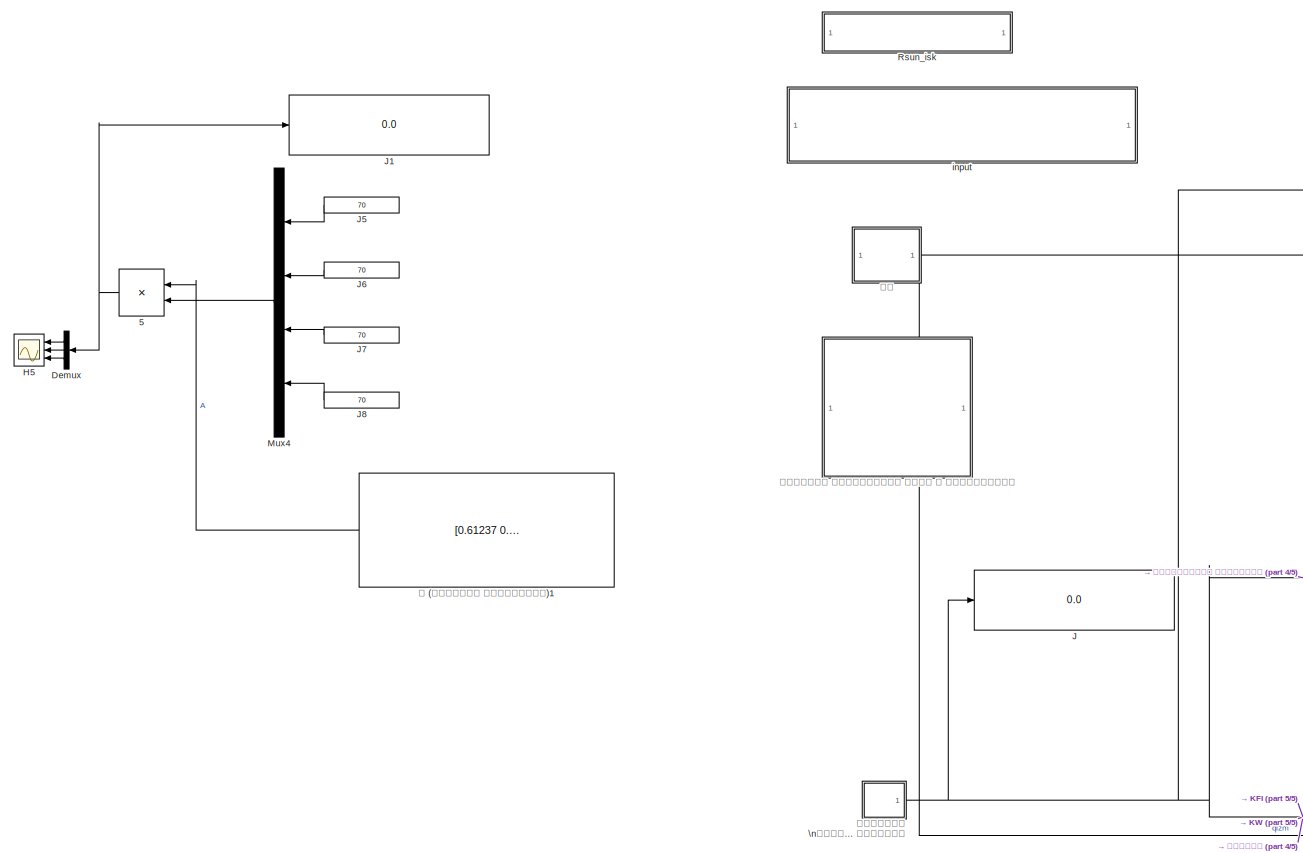
[diagram: root canvas - part 1/5, top left region]
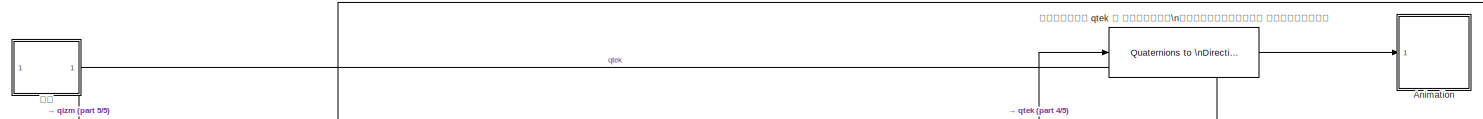
[diagram: root canvas - part 2/5, top center region]
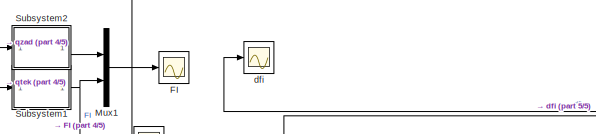
[diagram: root canvas - part 3/5, top right region]
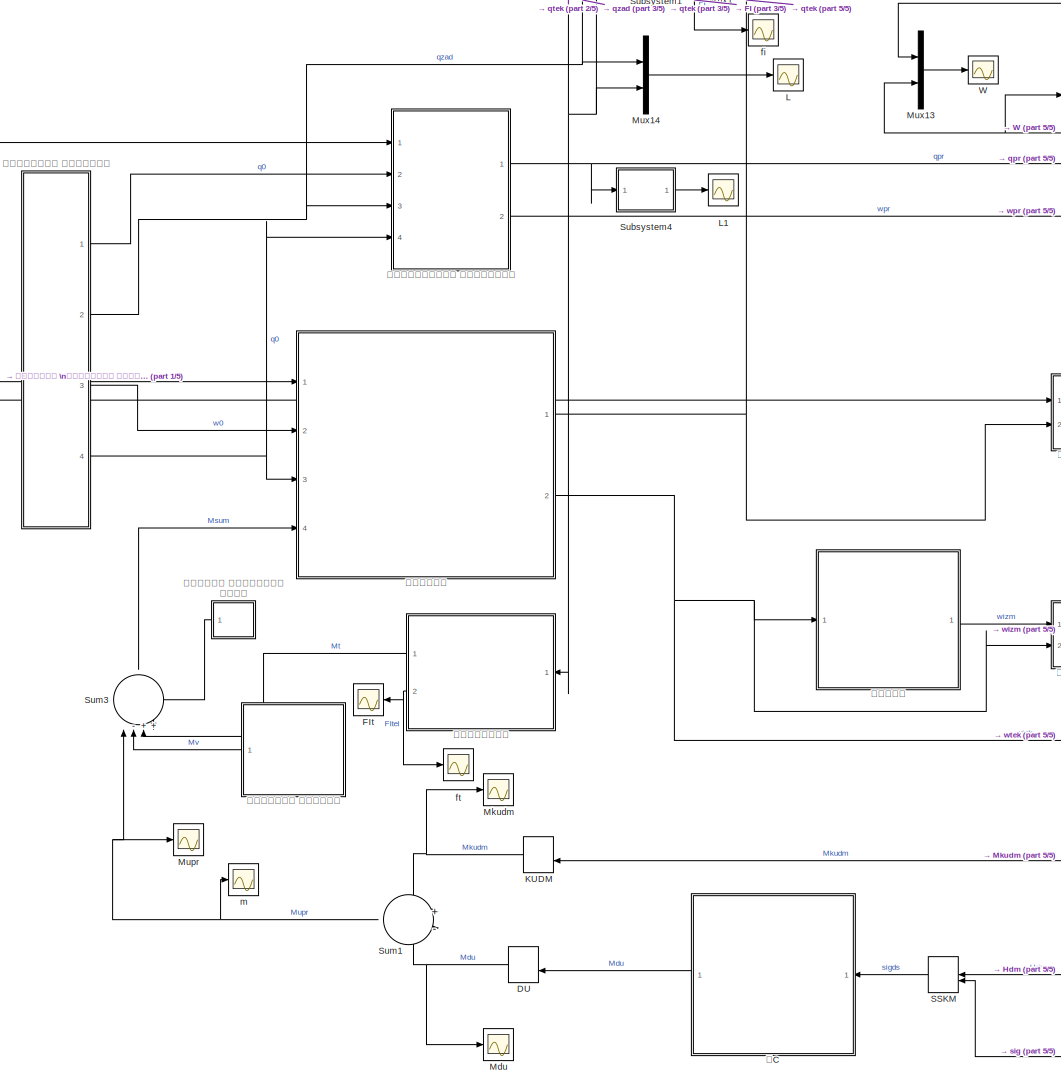
[diagram: root canvas - part 4/5, central region]
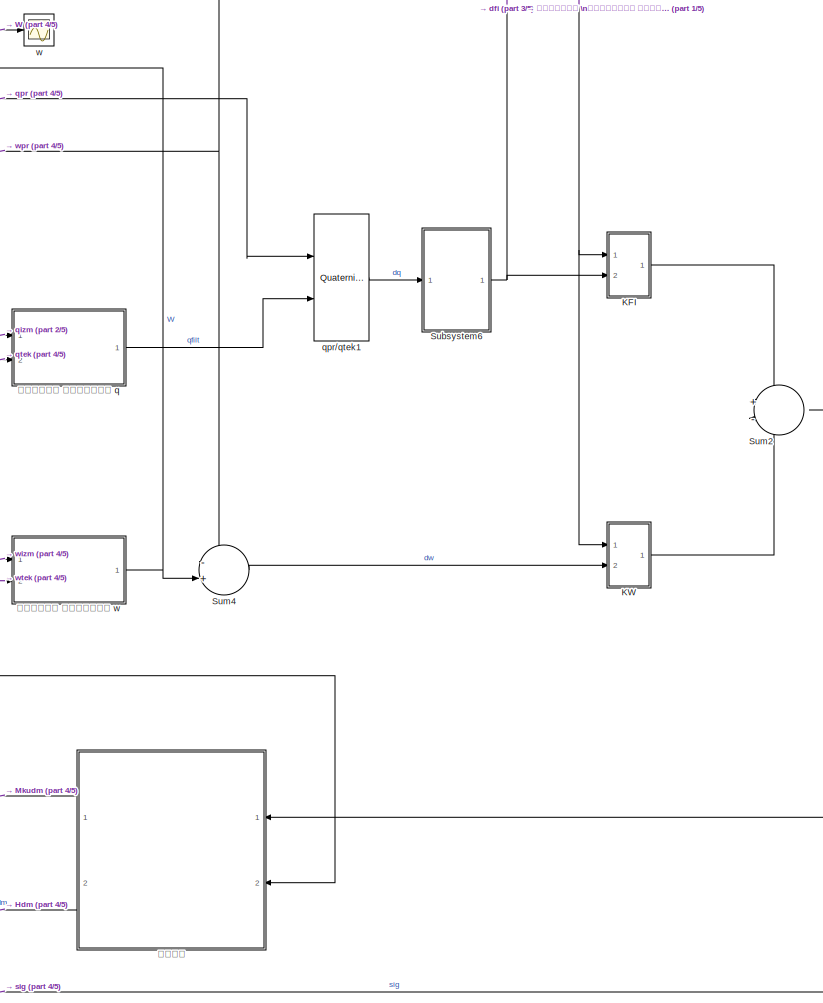
[diagram: root canvas - part 5/5, middle right region]
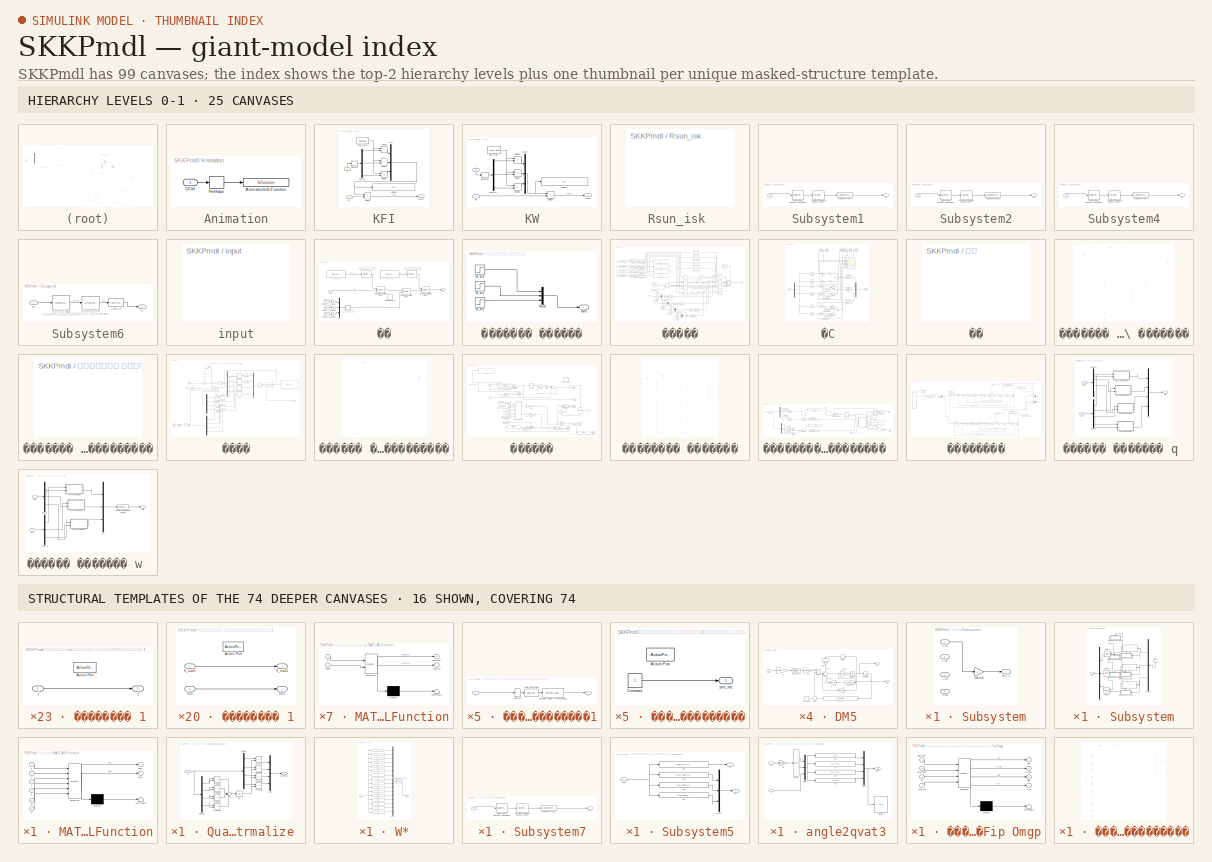
[diagram: thumbnail index - top-2 hierarchy levels (25 canvases) + 16 structural-template representatives of the remaining 74 canvases]
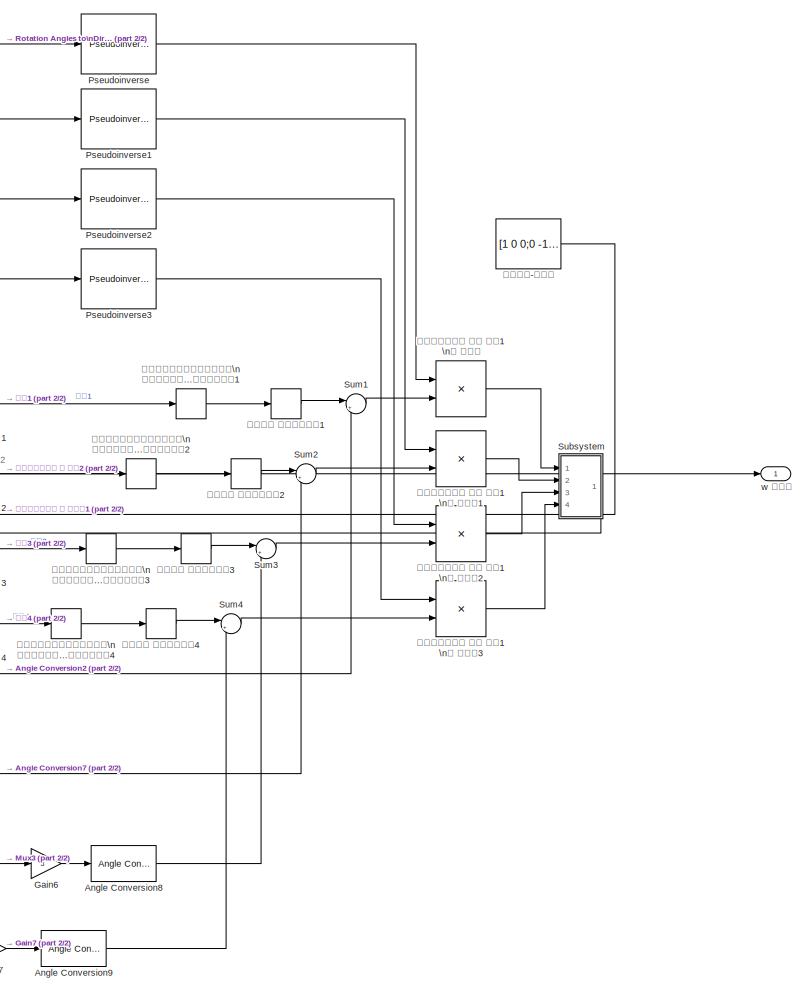
[diagram: ����� - part 1/2, right side, full height]
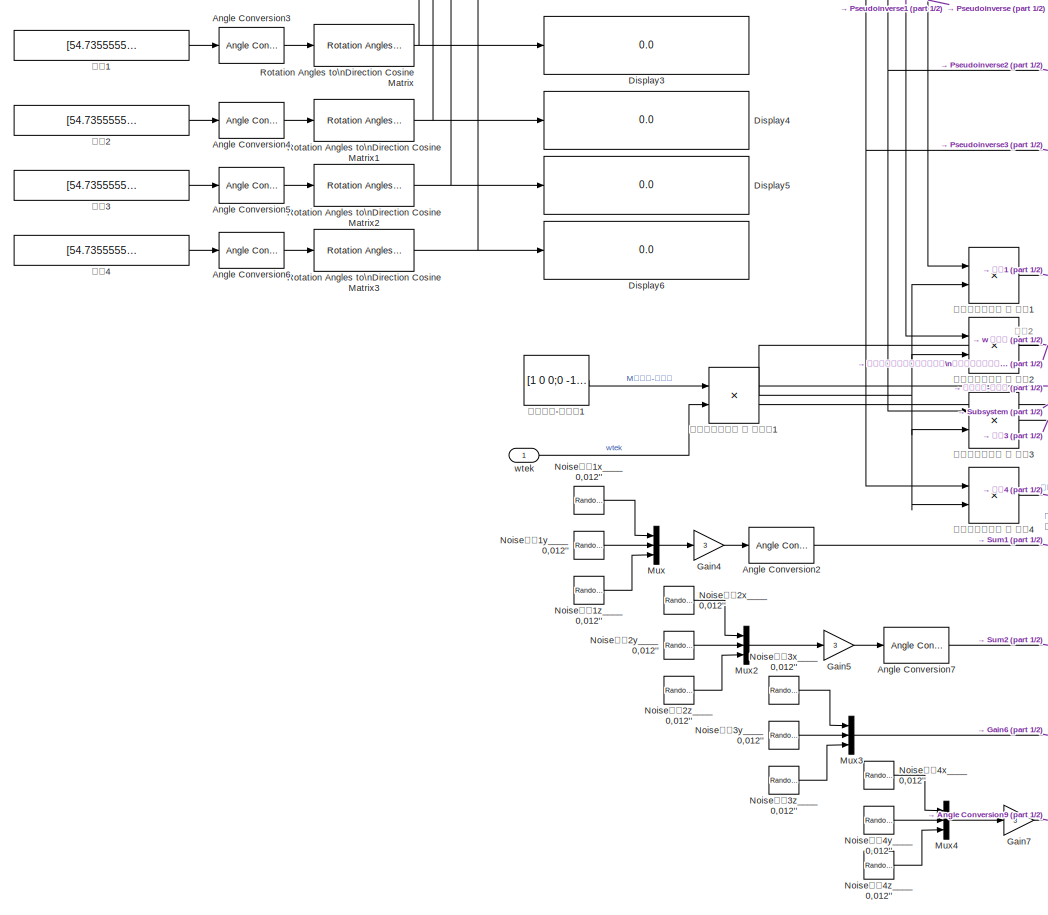
[diagram: ����� - part 2/2, left side, full height]
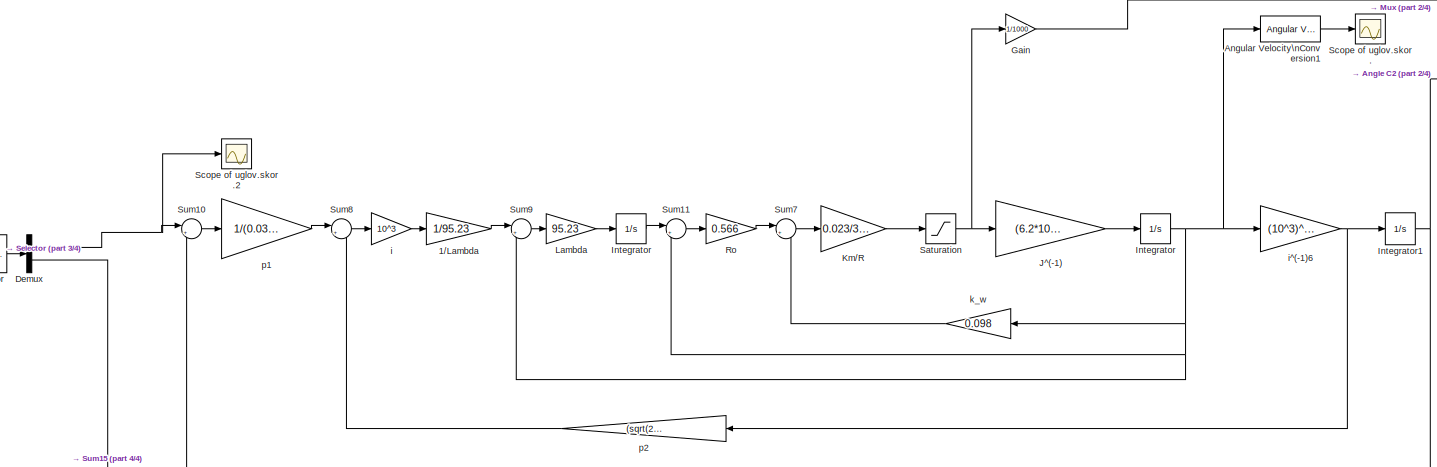
[diagram: �������� - part 1/4, top center region]
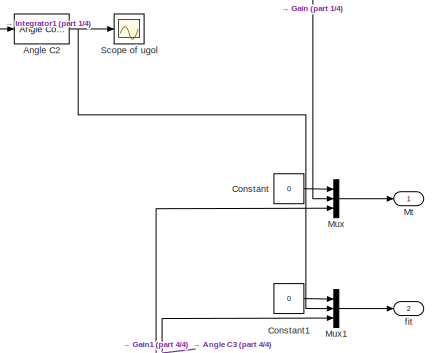
[diagram: �������� - part 2/4, top right region]
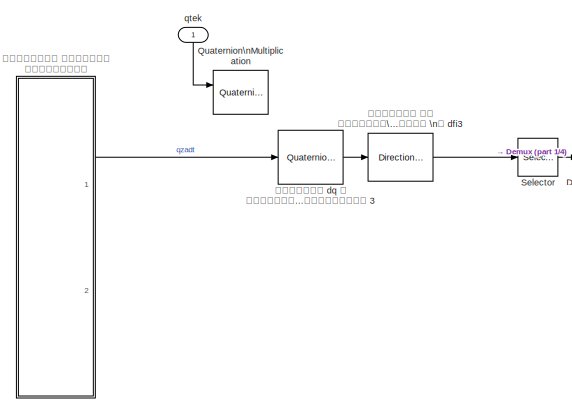
[diagram: �������� - part 3/4, top left region]
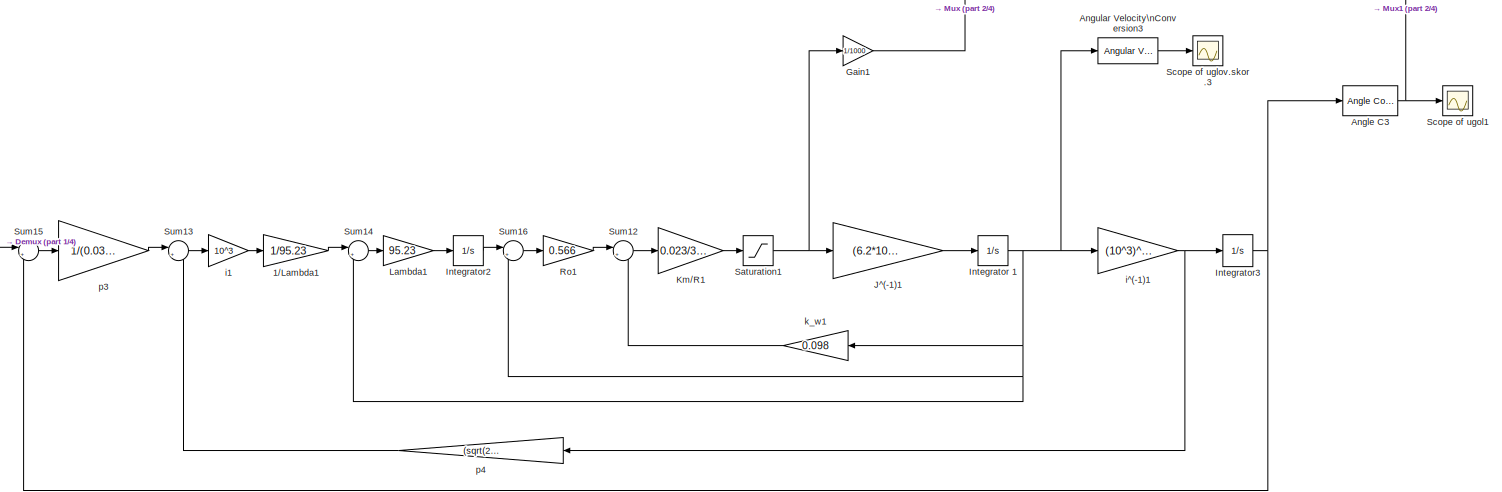
[diagram: �������� - part 4/4, bottom center region]
MODEL SKKPmdl
KIND model
BLOCK [Product]  5
  Commented = on
  InputSameDT = off
  Multiplication = Matrix(*)
  OutDataTypeStr = Inherit: Inherit via internal rule
  Ports = [2, 1]
  RndMeth = Floor
  SID = 8700
  SaturateOnIntegerOverflow = off
BLOCK [SubSystem] Animation
  AncestorBlock = aerolibanim/6DoF Animation
  Ports = [1]
  RequestExecContextInheritance = off
  SID = 6397
BLOCK [S-Function] Animation/Animation\nS-Function
  EnableBusSupport = off
  FunctionName = saeroanim
  Parameters = Config
  Ports = [1, 1]
  SID = 6397:2
BLOCK [Inport] Animation/DCM
  IconDisplay = Port number
  SID = 6397:1
BLOCK [Reshape] Animation/Reshape
  Ports = [1, 1]
  SID = 6397:3
BLOCK [ManualSwitch] DU
  SID = 6395
BLOCK [Demux] Demux
  Commented = on
  DisplayOption = bar
  Outputs = 3
  Ports = [1, 3]
  SID = 8701
BLOCK [Scope] FI
  Floating = off
  LimitDataPoints = off
  NumInputPorts = 1
  Ports = [1]
  SID = 6385
  SampleInput = on
  SaveName = FI
  SaveToWorkspace = on
  ShowLegends = off
  TickLabels = on
  YMax = 30
BLOCK [Scope] FIt
  Floating = off
  LimitDataPoints = off
  NumInputPorts = 1
  Ports = [1]
  SID = 8067
  SaveName = FIt
  SaveToWorkspace = on
  ShowLegends = off
  YMax = 100
  YMin = -20
BLOCK [Scope] H5
  Commented = on
  Floating = off
  LimitDataPoints = off
  NumInputPorts = 3
  Ports = [3]
  SID = 8702
  SampleTime = 0
  SaveName = H4dm3
  ShowLegends = off
  TimeRange = 250
  YMax = 600~5~5
  YMin = -100~-5~-5
BLOCK [Display] J
  Decimation = 1
  Ports = [1]
  SID = 8336
BLOCK [Display] J1
  Commented = on
  Decimation = 1
  Ports = [1]
  SID = 8709
BLOCK [Constant] J5
  Commented = on
  SID = 8703
  Value = 70
BLOCK [Constant] J6
  Commented = on
  SID = 8704
  Value = 70
BLOCK [Constant] J7
  Commented = on
  SID = 8705
  Value = 70
BLOCK [Constant] J8
  Commented = on
  SID = 8706
  Value = 70
BLOCK [SubSystem] KFI
  Ports = [2, 1]
  RequestExecContextInheritance = off
  SID = 8680
BLOCK [Demux] KFI/Demux
  DisplayOption = bar
  Outputs = 9
  Ports = [1, 9]
  SID = 8317
BLOCK [Display] KFI/Display4
  Decimation = 1
  Ports = [1]
  SID = 8337
BLOCK [Product] KFI/Divide1
  InputSameDT = off
  Inputs = **
  OutDataTypeStr = Inherit: Inherit via internal rule
  Ports = [2, 1]
  RndMeth = Floor
  SID = 8299
  SaturateOnIntegerOverflow = off
BLOCK [Product] KFI/Divide3
  InputSameDT = off
  Inputs = /*
  OutDataTypeStr = Inherit: Inherit via internal rule
  Ports = [2, 1]
  RndMeth = Floor
  SID = 8319
  SaturateOnIntegerOverflow = off
BLOCK [Product] KFI/Divide4
  InputSameDT = off
  Inputs = /*
  OutDataTypeStr = Inherit: Inherit via internal rule
  Ports = [2, 1]
  RndMeth = Floor
  SID = 8321
  SaturateOnIntegerOverflow = off
BLOCK [Product] KFI/Divide5
  InputSameDT = off
  Inputs = /*
  OutDataTypeStr = Inherit: Inherit via internal rule
  Ports = [2, 1]
  RndMeth = Floor
  SID = 8322
  SaturateOnIntegerOverflow = off
BLOCK [Inport] KFI/J
  IconDisplay = Port number
  SID = 8681
BLOCK [Mux] KFI/Mux
  DisplayOption = bar
  Inputs = 3
  Ports = [3, 1]
  SID = 8318
BLOCK [Reshape] KFI/Reshape
  OutputDimensionality = Column vector (2-D)
  Ports = [1, 1]
  SID = 8331
BLOCK [Inport] KFI/dfi
  IconDisplay = Port number
  Port = 2
  SID = 8682
BLOCK [Constant] KFI/eps_max3
  SID = 8320
  Value = Tpp*Tpp
BLOCK [Outport] KFI/kfi*dfi
  IconDisplay = Port number
  SID = 8689
BLOCK [ManualSwitch] KUDM
  CurrentSetting = 0
  SID = 6396
BLOCK [SubSystem] KW
  Ports = [2, 1]
  RequestExecContextInheritance = off
  SID = 8690
BLOCK [Demux] KW/Demux1
  DisplayOption = bar
  Outputs = 9
  Ports = [1, 9]
  SID = 8323
BLOCK [Display] KW/Display5
  Decimation = 1
  Ports = [1]
  SID = 8338
BLOCK [Product] KW/Divide2
  InputSameDT = off
  Inputs = **
  OutDataTypeStr = Inherit: Inherit via internal rule
  Ports = [2, 1]
  RndMeth = Floor
  SID = 8300
  SaturateOnIntegerOverflow = off
BLOCK [Product] KW/Divide6
  InputSameDT = off
  Inputs = **
  OutDataTypeStr = Inherit: Inherit via internal rule
  Ports = [2, 1]
  RndMeth = Floor
  SID = 8324
  SaturateOnIntegerOverflow = off
BLOCK [Product] KW/Divide7
  InputSameDT = off
  Inputs = **
  OutDataTypeStr = Inherit: Inherit via internal rule
  Ports = [2, 1]
  RndMeth = Floor
  SID = 8325
  SaturateOnIntegerOverflow = off
BLOCK [Product] KW/Divide8
  InputSameDT = off
  Inputs = **
  OutDataTypeStr = Inherit: Inherit via internal rule
  Ports = [2, 1]
  RndMeth = Floor
  SID = 8326
  SaturateOnIntegerOverflow = off
BLOCK [Inport] KW/J
  IconDisplay = Port number
  SID = 8691
BLOCK [Mux] KW/Mux2
  DisplayOption = bar
  Inputs = 3
  Ports = [3, 1]
  SID = 8327
BLOCK [Reshape] KW/Reshape1
  OutputDimensionality = Column vector (2-D)
  Ports = [1, 1]
  SID = 8332
BLOCK [Inport] KW/dw
  IconDisplay = Port number
  Port = 2
  SID = 8692
BLOCK [Constant] KW/eps_max1
  SID = 8328
  Value = (2*E)/Tpp
BLOCK [Outport] KW/kw*dw
  IconDisplay = Port number
  SID = 8694
BLOCK [Scope] L
  Floating = off
  LimitDataPoints = off
  NumInputPorts = 1
  Ports = [1]
  SID = 6384
  SaveName = L
  SaveToWorkspace = on
  ShowLegends = off
  YMax = 1
  YMin = 0
BLOCK [Scope] L1
  Floating = off
  LimitDataPoints = off
  NumInputPorts = 1
  Ports = [1]
  SID = 7405
  SaveName = L1
  SaveToWorkspace = on
  ShowLegends = off
  YMax = 8
  YMin = 0
BLOCK [Scope] Mdu
  Floating = off
  LimitDataPoints = off
  NumInputPorts = 1
  Ports = [1]
  SID = 6915
  SaveName = Mdu
  SaveToWorkspace = on
  ShowLegends = off
  YMax = 1
  YMin = -0.2
BLOCK [Scope] Mkudm
  Floating = off
  LimitDataPoints = off
  NumInputPorts = 1
  Ports = [1]
  SID = 6914
  SaveName = Mkudm
  SaveToWorkspace = on
  ShowLegends = off
  YMax = 0.05
  YMin = -0.25
BLOCK [Scope] Mupr
  Floating = off
  LimitDataPoints = off
  NumInputPorts = 1
  Ports = [1]
  SID = 6577
  SaveName = Mupr
  SaveToWorkspace = on
  ShowLegends = off
  YMax = 0.6
  YMin = -0.1
BLOCK [Mux] Mux1
  DisplayOption = bar
  Inputs = 2
  Ports = [2, 1]
  SID = 6400
BLOCK [Mux] Mux13
  DisplayOption = bar
  Inputs = 2
  Ports = [2, 1]
  SID = 6393
BLOCK [Mux] Mux14
  DisplayOption = bar
  Inputs = 2
  Ports = [2, 1]
  SID = 6383
BLOCK [Mux] Mux4
  Commented = on
  DisplayOption = bar
  Ports = [4, 1]
  SID = 8707
BLOCK [SubSystem] Rsun_isk 
  Ports = []
  RequestExecContextInheritance = off
  SID = 6370
BLOCK [ManualSwitch] SSKM
  CurrentSetting = 0
  SID = 6843
BLOCK [SubSystem] Subsystem1
  Ports = [1, 1]
  RequestExecContextInheritance = off
  SID = 6401
BLOCK [Reference] Subsystem1/Angle Conversion1  REF=aerolibconvert2/Angle Conversion
  IU = rad
  OU = deg
  Ports = [1, 1]
  SID = 6403
  SourceBlock = aerolibconvert2/Angle Conversion
  SourceType = Angle Conversion
BLOCK [Reference] Subsystem1/Direction Cosine Matrix to\nEuler Angles1  REF=aerolibobsolete/Direction Cosine Matrix to\nEuler Angles
  Ports = [1, 1]
  SID = 6404
  SourceBlock = aerolibobsolete/Direction Cosine Matrix to\nEuler Angles
  SourceType = DCM2Euler
BLOCK [Reference] Subsystem1/Quaternions to \nDirection Cosine Matrix3  REF=aerolibtransform2/Quaternions to \nDirection Cosine Matrix
  Ports = [1, 1]
  SID = 6405
  SourceBlock = aerolibtransform2/Quaternions to \nDirection Cosine Matrix
  SourceType = Quaternion2DCM
BLOCK [Outport] Subsystem1/deg
  IconDisplay = Port number
  SID = 6406
BLOCK [Inport] Subsystem1/q
  IconDisplay = Port number
  SID = 6402
BLOCK [SubSystem] Subsystem2
  Ports = [1, 1]
  RequestExecContextInheritance = off
  SID = 6407
BLOCK [Reference] Subsystem2/Angle Conversion1  REF=aerolibconvert2/Angle Conversion
  IU = rad
  OU = deg
  Ports = [1, 1]
  SID = 6409
  SourceBlock = aerolibconvert2/Angle Conversion
  SourceType = Angle Conversion
BLOCK [Reference] Subsystem2/Direction Cosine Matrix to\nEuler Angles1  REF=aerolibobsolete/Direction Cosine Matrix to\nEuler Angles
  Ports = [1, 1]
  SID = 6410
  SourceBlock = aerolibobsolete/Direction Cosine Matrix to\nEuler Angles
  SourceType = DCM2Euler
BLOCK [Reference] Subsystem2/Quaternions to \nDirection Cosine Matrix3  REF=aerolibtransform2/Quaternions to \nDirection Cosine Matrix
  Ports = [1, 1]
  SID = 6411
  SourceBlock = aerolibtransform2/Quaternions to \nDirection Cosine Matrix
  SourceType = Quaternion2DCM
BLOCK [Outport] Subsystem2/deg
  IconDisplay = Port number
  SID = 6412
BLOCK [Inport] Subsystem2/q
  IconDisplay = Port number
  SID = 6408
BLOCK [SubSystem] Subsystem4
  Ports = [1, 1]
  RequestExecContextInheritance = off
  SID = 7399
BLOCK [Reference] Subsystem4/Angle Conversion1  REF=aerolibconvert2/Angle Conversion
  IU = rad
  OU = deg
  Ports = [1, 1]
  SID = 7401
  SourceBlock = aerolibconvert2/Angle Conversion
  SourceType = Angle Conversion
BLOCK [Reference] Subsystem4/Direction Cosine Matrix to\nEuler Angles1  REF=aerolibobsolete/Direction Cosine Matrix to\nEuler Angles
  Ports = [1, 1]
  SID = 7402
  SourceBlock = aerolibobsolete/Direction Cosine Matrix to\nEuler Angles
  SourceType = DCM2Euler
BLOCK [Reference] Subsystem4/Quaternions to \nDirection Cosine Matrix3  REF=aerolibtransform2/Quaternions to \nDirection Cosine Matrix
  Ports = [1, 1]
  SID = 7403
  SourceBlock = aerolibtransform2/Quaternions to \nDirection Cosine Matrix
  SourceType = Quaternion2DCM
BLOCK [Outport] Subsystem4/deg
  IconDisplay = Port number
  SID = 7404
BLOCK [Inport] Subsystem4/q
  IconDisplay = Port number
  SID = 7400
BLOCK [SubSystem] Subsystem6
  Ports = [1, 1]
  RequestExecContextInheritance = off
  SID = 5517
BLOCK [Reference] Subsystem6/Angle C5  REF=aerolibconvert2/Angle Conversion
  IU = rad
  OU = deg
  Ports = [1, 1]
  SID = 4198
  SourceBlock = aerolibconvert2/Angle Conversion
  SourceType = Angle Conversion
BLOCK [Outport] Subsystem6/dfi
  IconDisplay = Port number
  SID = 5519
BLOCK [Inport] Subsystem6/dq
  IconDisplay = Port number
  SID = 5518
BLOCK [Reference] Subsystem6/Ïåðåâîä èç ìàòðèöû\níàïðàâëÿþùèõ êîñèíóñîâ \nâ dfi1  REF=aerolibobsolete/Direction Cosine Matrix to\nEuler Angles
  Ports = [1, 1]
  SID = 4885
  SourceBlock = aerolibobsolete/Direction Cosine Matrix to\nEuler Angles
  SourceType = DCM2Euler
BLOCK [Reference] Subsystem6/ïåðåâîä dq â ìàòðèöó\níàïðàâëÿþùèõ êîñèíóñîâ 1  REF=aerolibtransform2/Quaternions to \nDirection Cosine Matrix
  Ports = [1, 1]
  SID = 5478
  SourceBlock = aerolibtransform2/Quaternions to \nDirection Cosine Matrix
  SourceType = Quaternion2DCM
BLOCK [Sum] Sum1
  IconShape = round
  InputSameDT = off
  Inputs = +-
  OutDataTypeStr = Inherit: Inherit via internal rule
  Ports = [2, 1]
  SID = 5577
  SaturateOnIntegerOverflow = off
BLOCK [Sum] Sum2
  IconShape = round
  InputSameDT = off
  Inputs = +-
  OutDataTypeStr = Inherit: Inherit via internal rule
  Ports = [2, 1]
  SID = 4514
  SaturateOnIntegerOverflow = off
BLOCK [Sum] Sum3
  IconShape = round
  InputSameDT = off
  Inputs = |-+++
  OutDataTypeStr = Inherit: Inherit via internal rule
  Ports = [4, 1]
  SID = 5579
  SaturateOnIntegerOverflow = off
BLOCK [Sum] Sum4
  IconShape = round
  InputSameDT = off
  Inputs = -+|
  OutDataTypeStr = Inherit: Inherit via internal rule
  Ports = [2, 1]
  SID = 4516
  SaturateOnIntegerOverflow = off
BLOCK [Scope] W
  Floating = off
  LimitDataPoints = off
  NumInputPorts = 1
  Ports = [1]
  SID = 6394
  SaveName = W
  SaveToWorkspace = on
  ShowLegends = off
  TimeRange = 350
  YMax = 250
  YMin = -50
BLOCK [Scope] dfi
  Floating = off
  LimitDataPoints = off
  NumInputPorts = 1
  Ports = [1]
  SID = 6392
  SaveName = dfi
  SaveToWorkspace = on
  ShowLegends = off
  YMax = 0.1
  YMin = -0.2
BLOCK [Scope] fi
  Floating = off
  LimitDataPoints = off
  NumInputPorts = 1
  Ports = [1]
  SID = 8111
  SaveName = ScopeData2
  ShowLegends = on
  YMax = 35
BLOCK [Scope] ft
  Floating = off
  LegendLocations = 0.69769     0.68662      0.1721     0.12321
  LimitDataPoints = off
  NumInputPorts = 1
  Ports = [1]
  SID = 8075
  SaveName = ScopeData8
  ShowLegends = on
  YMax = 200
  YMin = -50
BLOCK [SubSystem] input
  Ports = []
  RequestExecContextInheritance = off
  SID = 6371
BLOCK [Scope] m
  Floating = off
  LegendLocations = 0.77871     0.78519     0.15531     0.11309
  LimitDataPoints = off
  NumInputPorts = 1
  Ports = [1]
  SID = 8074
  SaveName = ScopeData7
  ShowLegends = on
  TimeRange = 14.16568047337279
  YMax = 0.45
  YMin = 0.2
BLOCK [Reference] qpr//qtek1  REF=aerolibutil/Quaternion\nDivision
  Ports = [2, 1]
  SID = 4519
  SourceBlock = aerolibutil/Quaternion\nDivision
  SourceType = Quaternion Division
BLOCK [Scope] w
  Floating = off
  LegendLocations = 0.94025     0.90624    0.039641    0.049359
  LimitDataPoints = off
  NumInputPorts = 1
  Ports = [1]
  SID = 8073
  SaveName = ScopeData5
  ShowLegends = on
  YMax = 0.2
  YMin = 0
BLOCK [Constant] À (ìàòðèöà óñòàíîâêè)1
  Commented = on
  SID = 8708
  Value = [0.61237 0.61237 -0.61237 -0.61237;-0.61237 0.61237 0.61237 -0.61237;-0.5 -0.5 -0.5 -0.5]
BLOCK [SubSystem] ÀÄ
  Ports = [1, 1]
  RequestExecContextInheritance = off
  SID = 5481
BLOCK [Gain] ÀÄ/Gain3
  Gain = 3
  OutDataTypeStr = Inherit: Inherit via internal rule
  ParamDataTypeStr = Inherit: Inherit via internal rule
  SID = 6552
  SaturateOnIntegerOverflow = off
BLOCK [Gain] ÀÄ/Gain4
  Gain = 3
  OutDataTypeStr = Inherit: Inherit via internal rule
  ParamDataTypeStr = Inherit: Inherit via internal rule
  SID = 6553
  SaturateOnIntegerOverflow = off
BLOCK [Gain] ÀÄ/Gain5
  Gain = 3
  OutDataTypeStr = Inherit: Inherit via internal rule
  ParamDataTypeStr = Inherit: Inherit via internal rule
  SID = 6554
  SaturateOnIntegerOverflow = off
BLOCK [Mux] ÀÄ/Mux2
  DisplayOption = bar
  Inputs = 3
  Ports = [3, 1]
  SID = 6555
BLOCK [RandomNumber] ÀÄ/Noise1____5''1
  SID = 6556
  Seed = 23456
  Variance = 0.0013888888888889
BLOCK [RandomNumber] ÀÄ/Noise2___5''1
  SID = 6557
  Seed = 23455
  Variance = 0.0013888888888889
BLOCK [RandomNumber] ÀÄ/Noise3___5''1
  SID = 6558
  Seed = 23457
  Variance = 0.0013888888888889
BLOCK [Reference] ÀÄ/Quaternion\nMultiplication3  REF=aerolibutil/Quaternion\nMultiplication
  Ports = [2, 1]
  SID = 6559
  SourceBlock = aerolibutil/Quaternion\nMultiplication
  SourceType = Quaternion Multiplication
BLOCK [Reference] ÀÄ/Quaternion\nMultiplication4  REF=aerolibutil/Quaternion\nMultiplication
  Ports = [2, 1]
  SID = 6560
  SourceBlock = aerolibutil/Quaternion\nMultiplication
  SourceType = Quaternion Multiplication
BLOCK [Reference] ÀÄ/Quaternion\nMultiplication5  REF=aerolibutil/Quaternion\nMultiplication
  Ports = [2, 1]
  SID = 6561
  SourceBlock = aerolibutil/Quaternion\nMultiplication
  SourceType = Quaternion Multiplication
BLOCK [ZeroOrderHold] ÀÄ/Zero-Order\nHold8
  SID = 5494
  SampleTime = 0.1
BLOCK [Outport] ÀÄ/q òåê
  IconDisplay = Port number
  SID = 5505
BLOCK [Inport] ÀÄ/qtek 
  IconDisplay = Port number
  SID = 5482
BLOCK [Constant] ÀÄ/Ìâñê-ïñê 1
  SID = 6563
  Value = [0 0 1;-0.5 0.87 0;-0.87 -0.5 0]
BLOCK [Constant] ÀÄ/Ìïñê-âñê1
  SID = 6564
  Value = [0 -0.5 -0.85; 0 0.85 -0.5; 1 0 0]
BLOCK [Reference] ÀÄ/Ïåðåâîä èç ìàòðèöû\n íàïðàâëÿþùèõ\n êîñèíóñîâ â\n êâàòåðíèîíû2  REF=aerolibtransform2/Direction Cosine Matrix \nto Quaternions
  Ports = [1, 1]
  SID = 6565
  SourceBlock = aerolibtransform2/Direction Cosine Matrix \nto Quaternions
  SourceType = DCM2Quaternion
BLOCK [Reference] ÀÄ/Ïåðåâîä èç ìàòðèöû\n íàïðàâëÿþùèõ\n êîñèíóñîâ â\n êâàòåðíèîíû3  REF=aerolibtransform2/Direction Cosine Matrix \nto Quaternions
  Ports = [1, 1]
  SID = 6566
  SourceBlock = aerolibtransform2/Direction Cosine Matrix \nto Quaternions
  SourceType = DCM2Quaternion
BLOCK [SubSystem] ÀÄ/Ïåðåâîä èç óãëîâ\n â êâàòåðíèîíû1
  Ports = [1, 1]
  RequestExecContextInheritance = off
  SID = 6567
BLOCK [Reference] ÀÄ/Ïåðåâîä èç óãëîâ\n â êâàòåðíèîíû1/Angle Conversion1  REF=aerolibconvert2/Angle Conversion
  IU = deg
  OU = rad
  Ports = [1, 1]
  SID = 6569
  SourceBlock = aerolibconvert2/Angle Conversion
  SourceType = Angle Conversion
BLOCK [Reference] ÀÄ/Ïåðåâîä èç óãëîâ\n â êâàòåðíèîíû1/Rotation Angles to Quaternions1  REF=aerolibtransform2/Rotation Angles to Quaternions
  AttributesFormatString = Rotation Order: %<rotationOrder>
  Ports = [1, 1]
  SID = 6570
  SourceBlock = aerolibtransform2/Rotation Angles to Quaternions
  SourceType = Ang2Quat
  rotationOrder = ZYX
BLOCK [Selector] ÀÄ/Ïåðåâîä èç óãëîâ\n â êâàòåðíèîíû1/Selector1
  Indices = [3 2 1]
  InputPortWidth = 3
  Ports = [1, 1]
  SID = 6571
BLOCK [Inport] ÀÄ/Ïåðåâîä èç óãëîâ\n â êâàòåðíèîíû1/fi
  IconDisplay = Port number
  SID = 6568
BLOCK [Outport] ÀÄ/Ïåðåâîä èç óãëîâ\n â êâàòåðíèîíû1/q
  IconDisplay = Port number
  SID = 6572
BLOCK [SubSystem] Âíåøíèé ìîìåíò
  Ports = [0, 1]
  RequestExecContextInheritance = off
  SID = 6377
BLOCK [Step] Âíåøíèé ìîìåíò/M_vn4
  After = 0.00001
  SID = 6378
  SampleTime = 0
  Time = 0
BLOCK [Step] Âíåøíèé ìîìåíò/M_vn5
  After = 0.00008
  SID = 6379
  SampleTime = 0
  Time = 0
BLOCK [Step] Âíåøíèé ìîìåíò/M_vn6
  After = 0.00006
  SID = 6380
  SampleTime = 0
  Time = 0
BLOCK [Mux] Âíåøíèé ìîìåíò/Mux4
  DisplayOption = bar
  Inputs = 3
  Ports = [3, 1]
  SID = 6381
BLOCK [Outport] Âíåøíèé ìîìåíò/Mv\n
  IconDisplay = Port number
  SID = 6382
BLOCK [SubSystem] ÃÈÂÓÑ
  Ports = [1, 1]
  RequestExecContextInheritance = off
  SID = 4546
BLOCK [Reference] ÃÈÂÓÑ/Angle Conversion2  REF=aerolibconvert2/Angle Conversion
  IU = deg
  OU = rad
  Ports = [1, 1]
  SID = 6474
  SourceBlock = aerolibconvert2/Angle Conversion
  SourceType = Angle Conversion
BLOCK [Reference] ÃÈÂÓÑ/Angle Conversion3  REF=aerolibconvert2/Angle Conversion
  IU = deg
  OU = rad
  Ports = [1, 1]
  SID = 6475
  SourceBlock = aerolibconvert2/Angle Conversion
  SourceType = Angle Conversion
BLOCK [Reference] ÃÈÂÓÑ/Angle Conversion4  REF=aerolibconvert2/Angle Conversion
  IU = deg
  OU = rad
  Ports = [1, 1]
  SID = 6476
  SourceBlock = aerolibconvert2/Angle Conversion
  SourceType = Angle Conversion
BLOCK [Reference] ÃÈÂÓÑ/Angle Conversion5  REF=aerolibconvert2/Angle Conversion
  IU = deg
  OU = rad
  Ports = [1, 1]
  SID = 6477
  SourceBlock = aerolibconvert2/Angle Conversion
  SourceType = Angle Conversion
BLOCK [Reference] ÃÈÂÓÑ/Angle Conversion6  REF=aerolibconvert2/Angle Conversion
  IU = deg
  OU = rad
  Ports = [1, 1]
  SID = 6478
  SourceBlock = aerolibconvert2/Angle Conversion
  SourceType = Angle Conversion
BLOCK [Reference] ÃÈÂÓÑ/Angle Conversion7  REF=aerolibconvert2/Angle Conversion
  IU = deg
  OU = rad
  Ports = [1, 1]
  SID = 6479
  SourceBlock = aerolibconvert2/Angle Conversion
  SourceType = Angle Conversion
BLOCK [Reference] ÃÈÂÓÑ/Angle Conversion8  REF=aerolibconvert2/Angle Conversion
  IU = deg
  OU = rad
  Ports = [1, 1]
  SID = 6480
  SourceBlock = aerolibconvert2/Angle Conversion
  SourceType = Angle Conversion
BLOCK [Reference] ÃÈÂÓÑ/Angle Conversion9  REF=aerolibconvert2/Angle Conversion
  IU = deg
  OU = rad
  Ports = [1, 1]
  SID = 6481
  SourceBlock = aerolibconvert2/Angle Conversion
  SourceType = Angle Conversion
BLOCK [Display] ÃÈÂÓÑ/Display3
  Decimation = 1
  Ports = [1]
  SID = 6482
BLOCK [Display] ÃÈÂÓÑ/Display4
  Decimation = 1
  Ports = [1]
  SID = 6483
BLOCK [Display] ÃÈÂÓÑ/Display5
  Decimation = 1
  Ports = [1]
  SID = 6484
BLOCK [Display] ÃÈÂÓÑ/Display6
  Decimation = 1
  Ports = [1]
  SID = 6485
BLOCK [Gain] ÃÈÂÓÑ/Gain4
  Gain = 3
  OutDataTypeStr = Inherit: Inherit via internal rule
  ParamDataTypeStr = Inherit: Inherit via internal rule
  SID = 6486
  SaturateOnIntegerOverflow = off
BLOCK [Gain] ÃÈÂÓÑ/Gain5
  Gain = 3
  OutDataTypeStr = Inherit: Inherit via internal rule
  ParamDataTypeStr = Inherit: Inherit via internal rule
  SID = 6487
  SaturateOnIntegerOverflow = off
BLOCK [Gain] ÃÈÂÓÑ/Gain6
  Gain = 3
  OutDataTypeStr = Inherit: Inherit via internal rule
  ParamDataTypeStr = Inherit: Inherit via internal rule
  SID = 6488
  SaturateOnIntegerOverflow = off
BLOCK [Gain] ÃÈÂÓÑ/Gain7
  Gain = 3
  OutDataTypeStr = Inherit: Inherit via internal rule
  ParamDataTypeStr = Inherit: Inherit via internal rule
  SID = 6489
  SaturateOnIntegerOverflow = off
BLOCK [Mux] ÃÈÂÓÑ/Mux
  DisplayOption = bar
  Inputs = 3
  Ports = [3, 1]
  SID = 6490
BLOCK [Mux] ÃÈÂÓÑ/Mux2
  DisplayOption = bar
  Inputs = 3
  Ports = [3, 1]
  SID = 6491
BLOCK [Mux] ÃÈÂÓÑ/Mux3
  DisplayOption = bar
  Inputs = 3
  Ports = [3, 1]
  SID = 6492
BLOCK [Mux] ÃÈÂÓÑ/Mux4
  DisplayOption = bar
  Inputs = 3
  Ports = [3, 1]
  SID = 6493
BLOCK [RandomNumber] ÃÈÂÓÑ/Noise×Ý1x____0,012''
  SID = 6494
  Seed = 23456
  Variance = 0.0000033333333333333
BLOCK [RandomNumber] ÃÈÂÓÑ/Noise×Ý1y____0,012''
  SID = 6495
  Seed = 23456
  Variance = 0.0000033333333333333
BLOCK [RandomNumber] ÃÈÂÓÑ/Noise×Ý1z____0,012''
  SID = 6496
  Seed = 23456
  Variance = 0.0000033333333333333
BLOCK [RandomNumber] ÃÈÂÓÑ/Noise×Ý2x____0,012''
  SID = 6497
  Seed = 23456
  Variance = 0.0000033333333333333
BLOCK [RandomNumber] ÃÈÂÓÑ/Noise×Ý2y____0,012''
  SID = 6498
  Seed = 23456
  Variance = 0.0000033333333333333
BLOCK [RandomNumber] ÃÈÂÓÑ/Noise×Ý2z____0,012''
  SID = 6499
  Seed = 23456
  Variance = 0.0000033333333333333
BLOCK [RandomNumber] ÃÈÂÓÑ/Noise×Ý3x____0,012''
  SID = 6500
  Seed = 23456
  Variance = 0.0000033333333333333
BLOCK [RandomNumber] ÃÈÂÓÑ/Noise×Ý3y____0,012''
  SID = 6501
  Seed = 23456
  Variance = 0.0000033333333333333
BLOCK [RandomNumber] ÃÈÂÓÑ/Noise×Ý3z____0,012''
  SID = 6502
  Seed = 23456
  Variance = 0.0000033333333333333
BLOCK [RandomNumber] ÃÈÂÓÑ/Noise×Ý4x____0,012''
  SID = 6503
  Seed = 23456
  Variance = 0.0000033333333333333
BLOCK [RandomNumber] ÃÈÂÓÑ/Noise×Ý4y____0,012''
  SID = 6504
  Seed = 23456
  Variance = 0.0000033333333333333
BLOCK [RandomNumber] ÃÈÂÓÑ/Noise×Ý4z____0,012''
  SID = 6505
  Seed = 23456
  Variance = 0.0000033333333333333
BLOCK [Reference] ÃÈÂÓÑ/Pseudoinverse  REF=dspinverses/Pseudoinverse
  Ports = [1, 1]
  SID = 6506
  SourceBlock = dspinverses/Pseudoinverse
  SourceType = Pseudoinverse
  wanterr = off
BLOCK [Reference] ÃÈÂÓÑ/Pseudoinverse1  REF=dspinverses/Pseudoinverse
  Ports = [1, 1]
  SID = 6507
  SourceBlock = dspinverses/Pseudoinverse
  SourceType = Pseudoinverse
  wanterr = off
BLOCK [Reference] ÃÈÂÓÑ/Pseudoinverse2  REF=dspinverses/Pseudoinverse
  Ports = [1, 1]
  SID = 6508
  SourceBlock = dspinverses/Pseudoinverse
  SourceType = Pseudoinverse
  wanterr = off
BLOCK [Reference] ÃÈÂÓÑ/Pseudoinverse3  REF=dspinverses/Pseudoinverse
  Ports = [1, 1]
  SID = 6509
  SourceBlock = dspinverses/Pseudoinverse
  SourceType = Pseudoinverse
  wanterr = off
BLOCK [Reference] ÃÈÂÓÑ/Rotation Angles to\nDirection Cosine Matrix  REF=aerolibtransform2/Rotation Angles to\nDirection Cosine Matrix
  AttributesFormatString = Rotation Order: %<rotationOrder>
  Ports = [1, 1]
  SID = 6510
  SourceBlock = aerolibtransform2/Rotation Angles to\nDirection Cosine Matrix
  SourceType = Ang2DCM
  rotationOrder = XYZ
BLOCK [Reference] ÃÈÂÓÑ/Rotation Angles to\nDirection Cosine Matrix1  REF=aerolibtransform2/Rotation Angles to\nDirection Cosine Matrix
  AttributesFormatString = Rotation Order: %<rotationOrder>
  Ports = [1, 1]
  SID = 6511
  SourceBlock = aerolibtransform2/Rotation Angles to\nDirection Cosine Matrix
  SourceType = Ang2DCM
  rotationOrder = XYZ
BLOCK [Reference] ÃÈÂÓÑ/Rotation Angles to\nDirection Cosine Matrix2  REF=aerolibtransform2/Rotation Angles to\nDirection Cosine Matrix
  AttributesFormatString = Rotation Order: %<rotationOrder>
  Ports = [1, 1]
  SID = 6512
  SourceBlock = aerolibtransform2/Rotation Angles to\nDirection Cosine Matrix
  SourceType = Ang2DCM
  rotationOrder = XYZ
BLOCK [Reference] ÃÈÂÓÑ/Rotation Angles to\nDirection Cosine Matrix3  REF=aerolibtransform2/Rotation Angles to\nDirection Cosine Matrix
  AttributesFormatString = Rotation Order: %<rotationOrder>
  Ports = [1, 1]
  SID = 6513
  SourceBlock = aerolibtransform2/Rotation Angles to\nDirection Cosine Matrix
  SourceType = Ang2DCM
  rotationOrder = XYZ
BLOCK [SubSystem] ÃÈÂÓÑ/Subsystem
  Ports = [4, 1]
  RequestExecContextInheritance = off
  SID = 6514
BLOCK [Gain] ÃÈÂÓÑ/Subsystem/Gain4
  OutDataTypeStr = Inherit: Inherit via internal rule
  ParamDataTypeStr = Inherit: Inherit via internal rule
  SID = 6519
  SaturateOnIntegerOverflow = off
BLOCK [Outport] ÃÈÂÓÑ/Subsystem/wïñê
  IconDisplay = Port number
  SID = 6520
BLOCK [Inport] ÃÈÂÓÑ/Subsystem/×Ý1
  IconDisplay = Port number
  SID = 6515
BLOCK [Inport] ÃÈÂÓÑ/Subsystem/×Ý2
  IconDisplay = Port number
  Port = 2
  SID = 6516
BLOCK [Inport] ÃÈÂÓÑ/Subsystem/×Ý3
  IconDisplay = Port number
  Port = 3
  SID = 6517
BLOCK [Inport] ÃÈÂÓÑ/Subsystem/×Ý4
  IconDisplay = Port number
  Port = 4
  SID = 6518
BLOCK [Sum] ÃÈÂÓÑ/Sum1
  IconShape = round
  InputSameDT = off
  Inputs = |++
  OutDataTypeStr = Inherit: Inherit via internal rule
  Ports = [2, 1]
  SID = 6521
  SaturateOnIntegerOverflow = off
BLOCK [Sum] ÃÈÂÓÑ/Sum2
  IconShape = round
  InputSameDT = off
  Inputs = |++
  OutDataTypeStr = Inherit: Inherit via internal rule
  Ports = [2, 1]
  SID = 6522
  SaturateOnIntegerOverflow = off
BLOCK [Sum] ÃÈÂÓÑ/Sum3
  IconShape = round
  InputSameDT = off
  Inputs = |++
  OutDataTypeStr = Inherit: Inherit via internal rule
  Ports = [2, 1]
  SID = 6523
  SaturateOnIntegerOverflow = off
BLOCK [Sum] ÃÈÂÓÑ/Sum4
  IconShape = round
  InputSameDT = off
  Inputs = |++
  OutDataTypeStr = Inherit: Inherit via internal rule
  Ports = [2, 1]
  SID = 6524
  SaturateOnIntegerOverflow = off
BLOCK [Outport] ÃÈÂÓÑ/w òåê
  IconDisplay = Port number
  SID = 4570
BLOCK [Inport] ÃÈÂÓÑ/wtek
  IconDisplay = Port number
  SID = 4547
BLOCK [Quantizer] ÃÈÂÓÑ/Äèñêðåòåçàöèÿ\nâûõîäíîãî ñèãíàëà1
  QuantizationInterval = 0.000000048481368110954
  SID = 6525
BLOCK [Quantizer] ÃÈÂÓÑ/Äèñêðåòåçàöèÿ\nâûõîäíîãî ñèãíàëà2
  QuantizationInterval = 0.000000048481368110954
  SID = 6526
BLOCK [Quantizer] ÃÈÂÓÑ/Äèñêðåòåçàöèÿ\nâûõîäíîãî ñèãíàëà3
  QuantizationInterval = 0.000000048481368110954
  SID = 6527
BLOCK [Quantizer] ÃÈÂÓÑ/Äèñêðåòåçàöèÿ\nâûõîäíîãî ñèãíàëà4
  QuantizationInterval = 0.000000048481368110954
  SID = 6528
BLOCK [Constant] ÃÈÂÓÑ/Ìâñê-ïñê1
  SID = 6529
  Value = [1 0 0;0 -1 0;0 0 -1]
  VectorParams1D = off
BLOCK [Constant] ÃÈÂÓÑ/Ìïñê-ññê
  SID = 6530
  Value = [1 0 0;0 -1 0;0 0 -1]
  VectorParams1D = off
BLOCK [Product] ÃÈÂÓÑ/Ïåðåõîä â ×Ý1
  Multiplication = Matrix(*)
  Ports = [2, 1]
  SID = 6531
BLOCK [Product] ÃÈÂÓÑ/Ïåðåõîä â ×Ý2
  Multiplication = Matrix(*)
  Ports = [2, 1]
  SID = 6532
BLOCK [Product] ÃÈÂÓÑ/Ïåðåõîä â ×Ý3
  Multiplication = Matrix(*)
  Ports = [2, 1]
  SID = 6533
BLOCK [Product] ÃÈÂÓÑ/Ïåðåõîä â ×Ý4
  Multiplication = Matrix(*)
  Ports = [2, 1]
  SID = 6534
BLOCK [Product] ÃÈÂÓÑ/Ïåðåõîä â âñê1
  Multiplication = Matrix(*)
  Ports = [2, 1]
  SID = 6535
BLOCK [Product] ÃÈÂÓÑ/Ïåðåõîä â ïñê1
  Multiplication = Matrix(*)
  Ports = [2, 1]
  SID = 6536
BLOCK [Product] ÃÈÂÓÑ/Ïåðåõîä îò ×Ý1 \nê ÏÑÊ
  Multiplication = Matrix(*)
  Ports = [2, 1]
  SID = 6537
BLOCK [Product] ÃÈÂÓÑ/Ïåðåõîä îò ×Ý1 \nê ÏÑÊ1
  Multiplication = Matrix(*)
  Ports = [2, 1]
  SID = 6538
BLOCK [Product] ÃÈÂÓÑ/Ïåðåõîä îò ×Ý1 \nê ÏÑÊ2
  Multiplication = Matrix(*)
  Ports = [2, 1]
  SID = 6539
BLOCK [Product] ÃÈÂÓÑ/Ïåðåõîä îò ×Ý1 \nê ÏÑÊ3
  Multiplication = Matrix(*)
  Ports = [2, 1]
  SID = 6540
BLOCK [TransportDelay] ÃÈÂÓÑ/Òàêò îïðîñà1
  DelayTime = 0.1
  Ports = [1, 1]
  SID = 6541
BLOCK [TransportDelay] ÃÈÂÓÑ/Òàêò îïðîñà2
  DelayTime = 0.1
  Ports = [1, 1]
  SID = 6542
BLOCK [TransportDelay] ÃÈÂÓÑ/Òàêò îïðîñà3
  DelayTime = 0.1
  Ports = [1, 1]
  SID = 6543
BLOCK [TransportDelay] ÃÈÂÓÑ/Òàêò îïðîñà4
  DelayTime = 0.1
  Ports = [1, 1]
  SID = 6544
BLOCK [Constant] ÃÈÂÓÑ/×Ý1
  SID = 6545
  Value = [54.73555555555555 45 45]
BLOCK [Constant] ÃÈÂÓÑ/×Ý2
  SID = 6546
  Value = [54.73555555555555 -45 45]
BLOCK [Constant] ÃÈÂÓÑ/×Ý3
  SID = 6547
  Value = [54.73555555555555 -45 -45]
BLOCK [Constant] ÃÈÂÓÑ/×Ý4
  SID = 6548
  Value = [54.73555555555555 45 -45]
BLOCK [SubSystem] ÄC
  Ports = [1, 1]
  RequestExecContextInheritance = off
  SID = 4571
BLOCK [Scope] ÄC/10_11
  Floating = off
  LimitDataPoints = off
  NumInputPorts = 1
  Ports = [1]
  SID = 4573
  SaveName = P1011
  SaveToWorkspace = on
  ShowLegends = off
BLOCK [Scope] ÄC/11_12
  Floating = off
  LimitDataPoints = off
  NumInputPorts = 1
  Ports = [1]
  SID = 4574
  SaveName = P1112
  SaveToWorkspace = on
  ShowLegends = off
BLOCK [Scope] ÄC/1_5
  Floating = off
  LimitDataPoints = off
  NumInputPorts = 1
  Ports = [1]
  SID = 4575
  SaveName = P15
  SaveToWorkspace = on
  ShowLegends = off
  YMax = 1
  YMin = 0
  ZoomMode = yonly
BLOCK [Scope] ÄC/2_6
  Floating = off
  LimitDataPoints = off
  NumInputPorts = 1
  Ports = [1]
  SID = 4576
  SaveName = P26
  SaveToWorkspace = on
  ShowLegends = off
  YMax = 0
  YMin = -1
BLOCK [Scope] ÄC/4_9
  Floating = off
  LimitDataPoints = off
  NumInputPorts = 1
  Ports = [1]
  SID = 4577
  SaveName = P49
  SaveToWorkspace = on
  ShowLegends = off
BLOCK [Scope] ÄC/9_12
  Floating = off
  LimitDataPoints = off
  NumInputPorts = 1
  Ports = [1]
  SID = 4578
  SaveName = P912
  SaveToWorkspace = on
  ShowLegends = off
BLOCK [Constant] ÄC/Constant
  SID = 4579
  Value = L
BLOCK [Constant] ÄC/Constant1
  SID = 4580
  Value = L
BLOCK [Constant] ÄC/Constant2
  SID = 4581
  Value = L
BLOCK [Constant] ÄC/Constant3
  SID = 4582
  Value = L
BLOCK [Demux] ÄC/Demux
  DisplayOption = bar
  Outputs = 3
  Ports = [1, 3]
  SID = 4583
BLOCK [Product] ÄC/Divide
  InputSameDT = off
  Inputs = */
  OutDataTypeStr = Inherit: Inherit via internal rule
  Ports = [2, 1]
  RndMeth = Floor
  SID = 4584
  SaturateOnIntegerOverflow = off
BLOCK [Product] ÄC/Divide1
  InputSameDT = off
  Inputs = */
  OutDataTypeStr = Inherit: Inherit via internal rule
  Ports = [2, 1]
  RndMeth = Floor
  SID = 4585
  SaturateOnIntegerOverflow = off
BLOCK [Product] ÄC/Divide2
  InputSameDT = off
  Inputs = */
  OutDataTypeStr = Inherit: Inherit via internal rule
  Ports = [2, 1]
  RndMeth = Floor
  SID = 4586
  SaturateOnIntegerOverflow = off
BLOCK [Product] ÄC/Divide3
  InputSameDT = off
  Inputs = */
  OutDataTypeStr = Inherit: Inherit via internal rule
  Ports = [2, 1]
  RndMeth = Floor
  SID = 4587
  SaturateOnIntegerOverflow = off
BLOCK [Gain] ÄC/L, Í
  Gain = L
  SID = 4588
BLOCK [Gain] ÄC/L, Í1
  Gain = L
  SID = 4589
BLOCK [Outport] ÄC/Mdu
  IconDisplay = Port number
  SID = 4616
BLOCK [Mux] ÄC/Mux
  DisplayOption = bar
  Inputs = 3
  Ports = [3, 1]
  SID = 4591
BLOCK [Gain] ÄC/P1+P5, Í
  Gain = P+P
  SID = 4592
BLOCK [Gain] ÄC/P10+P11, Í2
  Gain = P+P
  SID = 4593
BLOCK [Gain] ÄC/P11+P12, Í
  Gain = P+P
  SID = 4594
BLOCK [Gain] ÄC/P2+P6, Í
  Gain = P+P
  SID = 4595
BLOCK [Gain] ÄC/P4+P9, Í
  Gain = P+P
  SID = 4596
BLOCK [Gain] ÄC/P9+P12, Í2
  Gain = P+P
  SID = 4597
BLOCK [Relay] ÄC/Relay
  InputProcessing = Elements as channels (sample based)
  OffSwitchValue = eps_max
  OnOutputValue = y_out
  OnSwitchValue = eps_min
  SID = 4598
BLOCK [Relay] ÄC/Relay1
  InputProcessing = Elements as channels (sample based)
  OffOutputValue = -y_out
  OffSwitchValue = -eps_min
  OnOutputValue = 0
  OnSwitchValue = -eps_max
  SID = 4599
BLOCK [Relay] ÄC/Relay2
  InputProcessing = Elements as channels (sample based)
  OffSwitchValue = eps_max
  OnOutputValue = y_out
  OnSwitchValue = eps_min
  SID = 4600
BLOCK [Relay] ÄC/Relay3
  InputProcessing = Elements as channels (sample based)
  OffOutputValue = -y_out
  OffSwitchValue = -eps_min
  OnOutputValue = 0
  OnSwitchValue = -eps_max
  SID = 4601
BLOCK [Relay] ÄC/Relay4
  InputProcessing = Elements as channels (sample based)
  OffSwitchValue = eps_max
  OnOutputValue = y_out
  OnSwitchValue = eps_min
  SID = 4602
BLOCK [Relay] ÄC/Relay5
  InputProcessing = Elements as channels (sample based)
  OffOutputValue = -y_out
  OffSwitchValue = -eps_min
  OnOutputValue = 0
  OnSwitchValue = -eps_max
  SID = 4603
BLOCK [Sqrt] ÄC/Sqrt
  SID = 4604
BLOCK [Sqrt] ÄC/Sqrt1
  SID = 4605
BLOCK [Sqrt] ÄC/Sqrt2
  SID = 4606
BLOCK [Sqrt] ÄC/Sqrt3
  SID = 4607
BLOCK [Sum] ÄC/Sum1
  IconShape = round
  InputSameDT = off
  OutDataTypeStr = Inherit: Inherit via internal rule
  Ports = [2, 1]
  SID = 4608
  SaturateOnIntegerOverflow = off
BLOCK [Sum] ÄC/Sum2
  IconShape = round
  InputSameDT = off
  OutDataTypeStr = Inherit: Inherit via internal rule
  Ports = [2, 1]
  SID = 4609
  SaturateOnIntegerOverflow = off
BLOCK [Sum] ÄC/Sum3
  IconShape = round
  InputSameDT = off
  OutDataTypeStr = Inherit: Inherit via internal rule
  Ports = [2, 1]
  SID = 4610
  SaturateOnIntegerOverflow = off
BLOCK [TransferFcn] ÄC/Transfer Fcn
  Denominator = [Td 1]
  SID = 4611
BLOCK [TransferFcn] ÄC/Transfer Fcn1
  Denominator = [Td 1]
  SID = 4612
BLOCK [TransferFcn] ÄC/Transfer Fcn2
  Denominator = [Td 1]
  SID = 4613
BLOCK [Inport] ÄC/sig
  IconDisplay = Port number
  SID = 4572
BLOCK [Scope] ÄC/âêëþ÷åíèå äó
  Floating = off
  LimitDataPoints = off
  NumInputPorts = 6
  Ports = [6]
  SID = 4590
  SampleTime = 0
  SaveName = M12
  ShowLegends = off
  TimeRange = 500
  YMax = 1~1~1~1~1~1
  YMin = -1~-1~-1~-1~-1~-1
BLOCK [SubSystem] ÄÓ
  Ports = []
  RequestExecContextInheritance = off
  SID = 6372
BLOCK [SubSystem] Çàäàíèå \nìîìåíòîâ èíåðöèè
  Ports = [0, 1]
  RequestExecContextInheritance = off
  SID = 8124
BLOCK [Clock] Çàäàíèå \nìîìåíòîâ èíåðöèè/Clock1
  SID = 8125
BLOCK [If] Çàäàíèå \nìîìåíòîâ èíåðöèè/If1
  IfExpression = (u1 == u2(1))
  NumInputs = 2
  Ports = [2, 1]
  SID = 8128
  ShowElse = off
BLOCK [If] Çàäàíèå \nìîìåíòîâ èíåðöèè/If10
  IfExpression = (u1 == u2(10))
  NumInputs = 2
  Ports = [2, 1]
  SID = 8129
  ShowElse = off
BLOCK [If] Çàäàíèå \nìîìåíòîâ èíåðöèè/If2
  IfExpression = (u1 == u2(2))
  NumInputs = 2
  Ports = [2, 1]
  SID = 8130
  ShowElse = off
BLOCK [If] Çàäàíèå \nìîìåíòîâ èíåðöèè/If3
  IfExpression = (u1 == u2(3))
  NumInputs = 2
  Ports = [2, 1]
  SID = 8131
  ShowElse = off
BLOCK [If] Çàäàíèå \nìîìåíòîâ èíåðöèè/If4
  IfExpression = (u1 == u2(4))
  NumInputs = 2
  Ports = [2, 1]
  SID = 8132
  ShowElse = off
BLOCK [If] Çàäàíèå \nìîìåíòîâ èíåðöèè/If5
  IfExpression = (u1 == u2(5))
  NumInputs = 2
  Ports = [2, 1]
  SID = 8133
  ShowElse = off
BLOCK [If] Çàäàíèå \nìîìåíòîâ èíåðöèè/If6
  IfExpression = (u1 == u2(6))
  NumInputs = 2
  Ports = [2, 1]
  SID = 8134
  ShowElse = off
BLOCK [If] Çàäàíèå \nìîìåíòîâ èíåðöèè/If7
  IfExpression = (u1 == u2(7))
  NumInputs = 2
  Ports = [2, 1]
  SID = 8135
  ShowElse = off
BLOCK [If] Çàäàíèå \nìîìåíòîâ èíåðöèè/If8
  IfExpression = (u1 == u2(8))
  NumInputs = 2
  Ports = [2, 1]
  SID = 8136
  ShowElse = off
BLOCK [If] Çàäàíèå \nìîìåíòîâ èíåðöèè/If9
  IfExpression = (u1 == u2(9))
  NumInputs = 2
  Ports = [2, 1]
  SID = 8137
  ShowElse = off
BLOCK [Outport] Çàäàíèå \nìîìåíòîâ èíåðöèè/J
  IconDisplay = Port number
  SID = 8251
BLOCK [Constant] Çàäàíèå \nìîìåíòîâ èíåðöèè/J1
  SID = 8563
  Value = [3500 -69 2;-69 2100 -21;2 -21 1900]
BLOCK [Constant] Çàäàíèå \nìîìåíòîâ èíåðöèè/J1 
  SID = 8158
  Value = [12469.75 3313.11 5894.05;3312.11 13989.03 4697.86;5894.05 4697.86 8023.73]
BLOCK [Constant] Çàäàíèå \nìîìåíòîâ èíåðöèè/J10
  SID = 8288
  Value = [3500 -69 2;-69 2100 -21;2 -21 1900]
BLOCK [Constant] Çàäàíèå \nìîìåíòîâ èíåðöèè/J2
  SID = 8266
  Value = [10734.72 3180.77 4803.85;3180.77 11518.24 4504.76;4803.85 4504.76 7226.24]
BLOCK [Constant] Çàäàíèå \nìîìåíòîâ èíåðöèè/J3
  SID = 8267
  Value = [588.32 2.55 -52.62; 2.55 601.27 -9.29; -52.62 -9.29 27.34]
BLOCK [Constant] Çàäàíèå \nìîìåíòîâ èíåðöèè/J4
  SID = 8282
  Value = [3500 -69 2;-69 2100 -21;2 -21 1900]
BLOCK [Constant] Çàäàíèå \nìîìåíòîâ èíåðöèè/J5
  SID = 8283
  Value = [2070 -69 2;-69 1400 -21;2 -21 1030]
BLOCK [Constant] Çàäàíèå \nìîìåíòîâ èíåðöèè/J6
  SID = 8284
  Value = [3500 -69 2;-69 2100 -21;2 -21 1900]
BLOCK [Constant] Çàäàíèå \nìîìåíòîâ èíåðöèè/J7
  SID = 8285
  Value = [3500 -69 2;-69 2100 -21;2 -21 1900]
BLOCK [Constant] Çàäàíèå \nìîìåíòîâ èíåðöèè/J8
  SID = 8286
  Value = [3500 -69 2;-69 2100 -21;2 -21 1900]
BLOCK [Constant] Çàäàíèå \nìîìåíòîâ èíåðöèè/J9
  SID = 8287
  Value = [3500 -69 2;-69 2100 -21;2 -21 1900]
BLOCK [Constant] Çàäàíèå \nìîìåíòîâ èíåðöèè/T_j
  SID = 8144
  Value = [0 400 40000  41000 42000 43000 44000 45000 46000 47000]
BLOCK [Merge] Çàäàíèå \nìîìåíòîâ èíåðöèè/j
  Inputs = 10
  Ports = [10, 1]
  SID = 8157
BLOCK [SubSystem] Çàäàíèå \nìîìåíòîâ èíåðöèè/Ðàçâîðîò 1
  Ports = [1, 1, 0, 0, 0, 0, 0, 1]
  RequestExecContextInheritance = off
  SID = 8190
  TreatAsAtomicUnit = on
BLOCK [ActionPort] Çàäàíèå \nìîìåíòîâ èíåðöèè/Ðàçâîðîò 1/Action Port
  ActionType = then
  SID = 8193
BLOCK [Inport] Çàäàíèå \nìîìåíòîâ èíåðöèè/Ðàçâîðîò 1/j
  IconDisplay = Port number
  SID = 8191
BLOCK [Outport] Çàäàíèå \nìîìåíòîâ èíåðöèè/Ðàçâîðîò 1/j  
  IconDisplay = Port number
  SID = 8194
BLOCK [SubSystem] Çàäàíèå \nìîìåíòîâ èíåðöèè/Ðàçâîðîò 10
  Ports = [1, 1, 0, 0, 0, 0, 0, 1]
  RequestExecContextInheritance = off
  SID = 8196
  TreatAsAtomicUnit = on
BLOCK [ActionPort] Çàäàíèå \nìîìåíòîâ èíåðöèè/Ðàçâîðîò 10/Action Port
  ActionType = then
  SID = 8199
BLOCK [Inport] Çàäàíèå \nìîìåíòîâ èíåðöèè/Ðàçâîðîò 10/j 
  IconDisplay = Port number
  SID = 8280
BLOCK [Outport] Çàäàíèå \nìîìåíòîâ èíåðöèè/Ðàçâîðîò 10/j  
  IconDisplay = Port number
  SID = 8281
BLOCK [SubSystem] Çàäàíèå \nìîìåíòîâ èíåðöèè/Ðàçâîðîò 2
  Ports = [1, 1, 0, 0, 0, 0, 0, 1]
  RequestExecContextInheritance = off
  SID = 8202
  TreatAsAtomicUnit = on
BLOCK [ActionPort] Çàäàíèå \nìîìåíòîâ èíåðöèè/Ðàçâîðîò 2/Action Port
  ActionType = then
  SID = 8205
BLOCK [Inport] Çàäàíèå \nìîìåíòîâ èíåðöèè/Ðàçâîðîò 2/j
  IconDisplay = Port number
  SID = 8203
BLOCK [Outport] Çàäàíèå \nìîìåíòîâ èíåðöèè/Ðàçâîðîò 2/j  
  IconDisplay = Port number
  SID = 8206
BLOCK [SubSystem] Çàäàíèå \nìîìåíòîâ èíåðöèè/Ðàçâîðîò 3
  Ports = [1, 1, 0, 0, 0, 0, 0, 1]
  RequestExecContextInheritance = off
  SID = 8208
  TreatAsAtomicUnit = on
BLOCK [ActionPort] Çàäàíèå \nìîìåíòîâ èíåðöèè/Ðàçâîðîò 3/Action Port
  ActionType = then
  SID = 8211
BLOCK [Inport] Çàäàíèå \nìîìåíòîâ èíåðöèè/Ðàçâîðîò 3/j
  IconDisplay = Port number
  SID = 8209
BLOCK [Outport] Çàäàíèå \nìîìåíòîâ èíåðöèè/Ðàçâîðîò 3/j  
  IconDisplay = Port number
  SID = 8212
BLOCK [SubSystem] Çàäàíèå \nìîìåíòîâ èíåðöèè/Ðàçâîðîò 4
  Ports = [1, 1, 0, 0, 0, 0, 0, 1]
  RequestExecContextInheritance = off
  SID = 8214
  TreatAsAtomicUnit = on
BLOCK [ActionPort] Çàäàíèå \nìîìåíòîâ èíåðöèè/Ðàçâîðîò 4/Action Port
  ActionType = then
  SID = 8217
BLOCK [Inport] Çàäàíèå \nìîìåíòîâ èíåðöèè/Ðàçâîðîò 4/j 
  IconDisplay = Port number
  SID = 8215
BLOCK [Outport] Çàäàíèå \nìîìåíòîâ èíåðöèè/Ðàçâîðîò 4/j  
  IconDisplay = Port number
  SID = 8218
BLOCK [SubSystem] Çàäàíèå \nìîìåíòîâ èíåðöèè/Ðàçâîðîò 5
  Ports = [1, 1, 0, 0, 0, 0, 0, 1]
  RequestExecContextInheritance = off
  SID = 8220
  TreatAsAtomicUnit = on
BLOCK [ActionPort] Çàäàíèå \nìîìåíòîâ èíåðöèè/Ðàçâîðîò 5/Action Port
  ActionType = then
  SID = 8223
BLOCK [Inport] Çàäàíèå \nìîìåíòîâ èíåðöèè/Ðàçâîðîò 5/j 
  IconDisplay = Port number
  SID = 8270
BLOCK [Outport] Çàäàíèå \nìîìåíòîâ èíåðöèè/Ðàçâîðîò 5/j  
  IconDisplay = Port number
  SID = 8271
BLOCK [SubSystem] Çàäàíèå \nìîìåíòîâ èíåðöèè/Ðàçâîðîò 6
  Ports = [1, 1, 0, 0, 0, 0, 0, 1]
  RequestExecContextInheritance = off
  SID = 8226
  TreatAsAtomicUnit = on
BLOCK [ActionPort] Çàäàíèå \nìîìåíòîâ èíåðöèè/Ðàçâîðîò 6/Action Port
  ActionType = then
  SID = 8229
BLOCK [Inport] Çàäàíèå \nìîìåíòîâ èíåðöèè/Ðàçâîðîò 6/j 
  IconDisplay = Port number
  SID = 8272
BLOCK [Outport] Çàäàíèå \nìîìåíòîâ èíåðöèè/Ðàçâîðîò 6/j  
  IconDisplay = Port number
  SID = 8273
BLOCK [SubSystem] Çàäàíèå \nìîìåíòîâ èíåðöèè/Ðàçâîðîò 7
  Ports = [1, 1, 0, 0, 0, 0, 0, 1]
  RequestExecContextInheritance = off
  SID = 8232
  TreatAsAtomicUnit = on
BLOCK [ActionPort] Çàäàíèå \nìîìåíòîâ èíåðöèè/Ðàçâîðîò 7/Action Port
  ActionType = then
  SID = 8235
BLOCK [Inport] Çàäàíèå \nìîìåíòîâ èíåðöèè/Ðàçâîðîò 7/j 
  IconDisplay = Port number
  SID = 8274
BLOCK [Outport] Çàäàíèå \nìîìåíòîâ èíåðöèè/Ðàçâîðîò 7/j  
  IconDisplay = Port number
  SID = 8275
BLOCK [SubSystem] Çàäàíèå \nìîìåíòîâ èíåðöèè/Ðàçâîðîò 8
  Ports = [1, 1, 0, 0, 0, 0, 0, 1]
  RequestExecContextInheritance = off
  SID = 8238
  TreatAsAtomicUnit = on
BLOCK [ActionPort] Çàäàíèå \nìîìåíòîâ èíåðöèè/Ðàçâîðîò 8/Action Port
  ActionType = then
  SID = 8241
BLOCK [Inport] Çàäàíèå \nìîìåíòîâ èíåðöèè/Ðàçâîðîò 8/j 
  IconDisplay = Port number
  SID = 8276
BLOCK [Outport] Çàäàíèå \nìîìåíòîâ èíåðöèè/Ðàçâîðîò 8/j  
  IconDisplay = Port number
  SID = 8277
BLOCK [SubSystem] Çàäàíèå \nìîìåíòîâ èíåðöèè/Ðàçâîðîò 9
  Ports = [1, 1, 0, 0, 0, 0, 0, 1]
  RequestExecContextInheritance = off
  SID = 8244
  TreatAsAtomicUnit = on
BLOCK [ActionPort] Çàäàíèå \nìîìåíòîâ èíåðöèè/Ðàçâîðîò 9/Action Port
  ActionType = then
  SID = 8247
BLOCK [Inport] Çàäàíèå \nìîìåíòîâ èíåðöèè/Ðàçâîðîò 9/j 
  IconDisplay = Port number
  SID = 8278
BLOCK [Outport] Çàäàíèå \nìîìåíòîâ èíåðöèè/Ðàçâîðîò 9/j  
  IconDisplay = Port number
  SID = 8279
BLOCK [SubSystem] Çàäàíèå ïàðàìåòðîâ ÊÓÄÌ è Ðåãóëÿòîðà
  Ports = []
  RequestExecContextInheritance = off
  SID = 8679
BLOCK [SubSystem] ÊÓÄÌ
  Ports = [2, 2]
  RequestExecContextInheritance = off
  SID = 4618
BLOCK [Product] ÊÓÄÌ/ 3
  InputSameDT = off
  Multiplication = Matrix(*)
  OutDataTypeStr = Inherit: Inherit via internal rule
  Ports = [2, 1]
  RndMeth = Floor
  SID = 8569
  SaturateOnIntegerOverflow = off
BLOCK [Product] ÊÓÄÌ/ 4
  InputSameDT = off
  Multiplication = Matrix(*)
  OutDataTypeStr = Inherit: Inherit via internal rule
  Ports = [2, 1]
  RndMeth = Floor
  SID = 8570
  SaturateOnIntegerOverflow = off
BLOCK [Product] ÊÓÄÌ/ 5
  InputSameDT = off
  Multiplication = Matrix(*)
  OutDataTypeStr = Inherit: Inherit via internal rule
  Ports = [2, 1]
  RndMeth = Floor
  SID = 8571
  SaturateOnIntegerOverflow = off
BLOCK [SubSystem] ÊÓÄÌ/DM5
  Ports = [1, 2]
  RequestExecContextInheritance = off
  SID = 8572
BLOCK [Gain] ÊÓÄÌ/DM5/1//m
  Gain = 1/0.0010464
  OutDataTypeStr = Inherit: Inherit via internal rule
  ParamDataTypeStr = Inherit: Inherit via internal rule
  SID = 8574
  SaturateOnIntegerOverflow = off
BLOCK [Sum] ÊÓÄÌ/DM5/Add2
  IconShape = round
  InputSameDT = off
  Inputs = -+--
  OutDataTypeStr = Inherit: Inherit via internal rule
  Ports = [4, 1]
  SID = 8575
  SaturateOnIntegerOverflow = off
BLOCK [Sum] ÊÓÄÌ/DM5/Add3
  IconShape = round
  InputSameDT = off
  OutDataTypeStr = Inherit: Inherit via internal rule
  Ports = [2, 1]
  SID = 8576
  SaturateOnIntegerOverflow = off
BLOCK [Constant] ÊÓÄÌ/DM5/Constant1
  SID = 8577
BLOCK [Product] ÊÓÄÌ/DM5/Divide1
  InputSameDT = off
  Inputs = **
  OutDataTypeStr = Inherit: Inherit via internal rule
  Ports = [2, 1]
  RndMeth = Floor
  SID = 8578
  SaturateOnIntegerOverflow = off
BLOCK [Fcn] ÊÓÄÌ/DM5/Fcn2
  Expr = cos(48*u[1])/17.5-cos(96*u[1])/71.5
  SID = 8579
BLOCK [Gain] ÊÓÄÌ/DM5/Gain1
  Gain = 0.00095
  OutDataTypeStr = Inherit: Inherit via internal rule
  ParamDataTypeStr = Inherit: Inherit via internal rule
  SID = 8580
  SaturateOnIntegerOverflow = off
BLOCK [Gain] ÊÓÄÌ/DM5/Gain3
  Gain = 1/Jdm
  OutDataTypeStr = Inherit: Inherit via internal rule
  ParamDataTypeStr = Inherit: Inherit via internal rule
  SID = 8581
  SaturateOnIntegerOverflow = off
BLOCK [Integrator] ÊÓÄÌ/DM5/Integrator2
  Ports = [1, 1]
  SID = 8582
BLOCK [Integrator] ÊÓÄÌ/DM5/Integrator3
  Ports = [1, 1]
  SID = 8583
BLOCK [Gain] ÊÓÄÌ/DM5/Kd
  Gain = 0.0327
  OutDataTypeStr = Inherit: Inherit via internal rule
  ParamDataTypeStr = Inherit: Inherit via internal rule
  SID = 8584
  SaturateOnIntegerOverflow = off
BLOCK [Outport] ÊÓÄÌ/DM5/M1
  IconDisplay = Port number
  SID = 8590
BLOCK [Signum] ÊÓÄÌ/DM5/Signw
  SID = 8585
  ZeroCross = off
BLOCK [TransferFcn] ÊÓÄÌ/DM5/Transfer Fcn1
  Denominator = [0.3 1]
  Numerator = [0.032]
  SID = 8586
BLOCK [Gain] ÊÓÄÌ/DM5/e
  Gain = 1.65e-7
  OutDataTypeStr = Inherit: Inherit via internal rule
  ParamDataTypeStr = Inherit: Inherit via internal rule
  SID = 8587
  SaturateOnIntegerOverflow = off
BLOCK [Gain] ÊÓÄÌ/DM5/h
  Gain = 16e-6
  OutDataTypeStr = Inherit: Inherit via internal rule
  ParamDataTypeStr = Inherit: Inherit via internal rule
  SID = 8588
  SaturateOnIntegerOverflow = off
BLOCK [Inport] ÊÓÄÌ/DM5/sig1
  IconDisplay = Port number
  SID = 8573
BLOCK [Outport] ÊÓÄÌ/DM5/w1
  IconDisplay = Port number
  Port = 2
  SID = 8591
BLOCK [Fcn] ÊÓÄÌ/DM5/w^(1//2)
  Expr = abs(u[1])^1.5
  SID = 8589
BLOCK [SubSystem] ÊÓÄÌ/DM6
  Ports = [1, 2]
  RequestExecContextInheritance = off
  SID = 8592
BLOCK [Gain] ÊÓÄÌ/DM6/1//m
  Gain = 1/0.0010464
  OutDataTypeStr = Inherit: Inherit via internal rule
  ParamDataTypeStr = Inherit: Inherit via internal rule
  SID = 8594
  SaturateOnIntegerOverflow = off
BLOCK [Sum] ÊÓÄÌ/DM6/Add2
  IconShape = round
  InputSameDT = off
  Inputs = -+--
  OutDataTypeStr = Inherit: Inherit via internal rule
  Ports = [4, 1]
  SID = 8595
  SaturateOnIntegerOverflow = off
BLOCK [Sum] ÊÓÄÌ/DM6/Add3
  IconShape = round
  InputSameDT = off
  OutDataTypeStr = Inherit: Inherit via internal rule
  Ports = [2, 1]
  SID = 8596
  SaturateOnIntegerOverflow = off
BLOCK [Constant] ÊÓÄÌ/DM6/Constant1
  SID = 8597
BLOCK [Product] ÊÓÄÌ/DM6/Divide1
  InputSameDT = off
  Inputs = **
  OutDataTypeStr = Inherit: Inherit via internal rule
  Ports = [2, 1]
  RndMeth = Floor
  SID = 8598
  SaturateOnIntegerOverflow = off
BLOCK [Fcn] ÊÓÄÌ/DM6/Fcn2
  Expr = cos(48*u[1])/17.5-cos(96*u[1])/71.5
  SID = 8599
BLOCK [Gain] ÊÓÄÌ/DM6/Gain1
  Gain = 0.00095
  OutDataTypeStr = Inherit: Inherit via internal rule
  ParamDataTypeStr = Inherit: Inherit via internal rule
  SID = 8600
  SaturateOnIntegerOverflow = off
BLOCK [Gain] ÊÓÄÌ/DM6/Gain3
  Gain = 1/Jdm
  OutDataTypeStr = Inherit: Inherit via internal rule
  ParamDataTypeStr = Inherit: Inherit via internal rule
  SID = 8601
  SaturateOnIntegerOverflow = off
BLOCK [Integrator] ÊÓÄÌ/DM6/Integrator2
  Ports = [1, 1]
  SID = 8602
BLOCK [Integrator] ÊÓÄÌ/DM6/Integrator3
  Ports = [1, 1]
  SID = 8603
BLOCK [Gain] ÊÓÄÌ/DM6/Kd
  Gain = 0.0327
  OutDataTypeStr = Inherit: Inherit via internal rule
  ParamDataTypeStr = Inherit: Inherit via internal rule
  SID = 8604
  SaturateOnIntegerOverflow = off
BLOCK [Outport] ÊÓÄÌ/DM6/M2
  IconDisplay = Port number
  SID = 8610
BLOCK [Signum] ÊÓÄÌ/DM6/Signw
  SID = 8605
  ZeroCross = off
BLOCK [TransferFcn] ÊÓÄÌ/DM6/Transfer Fcn1
  Denominator = [0.3 1]
  Numerator = [0.032]
  SID = 8606
BLOCK [Gain] ÊÓÄÌ/DM6/e
  Gain = 1.65e-7
  OutDataTypeStr = Inherit: Inherit via internal rule
  ParamDataTypeStr = Inherit: Inherit via internal rule
  SID = 8607
  SaturateOnIntegerOverflow = off
BLOCK [Gain] ÊÓÄÌ/DM6/h
  Gain = 16e-6
  OutDataTypeStr = Inherit: Inherit via internal rule
  ParamDataTypeStr = Inherit: Inherit via internal rule
  SID = 8608
  SaturateOnIntegerOverflow = off
BLOCK [Inport] ÊÓÄÌ/DM6/sig2
  IconDisplay = Port number
  SID = 8593
BLOCK [Outport] ÊÓÄÌ/DM6/w2
  IconDisplay = Port number
  Port = 2
  SID = 8611
BLOCK [Fcn] ÊÓÄÌ/DM6/w^(1//2)
  Expr = abs(u[1])^1.5
  SID = 8609
BLOCK [SubSystem] ÊÓÄÌ/DM7
  Ports = [1, 2]
  RequestExecContextInheritance = off
  SID = 8612
BLOCK [Gain] ÊÓÄÌ/DM7/1//m
  Gain = 1/0.0010464
  OutDataTypeStr = Inherit: Inherit via internal rule
  ParamDataTypeStr = Inherit: Inherit via internal rule
  SID = 8614
  SaturateOnIntegerOverflow = off
BLOCK [Sum] ÊÓÄÌ/DM7/Add2
  IconShape = round
  InputSameDT = off
  Inputs = -+--
  OutDataTypeStr = Inherit: Inherit via internal rule
  Ports = [4, 1]
  SID = 8615
  SaturateOnIntegerOverflow = off
BLOCK [Sum] ÊÓÄÌ/DM7/Add3
  IconShape = round
  InputSameDT = off
  OutDataTypeStr = Inherit: Inherit via internal rule
  Ports = [2, 1]
  SID = 8616
  SaturateOnIntegerOverflow = off
BLOCK [Constant] ÊÓÄÌ/DM7/Constant1
  SID = 8617
BLOCK [Product] ÊÓÄÌ/DM7/Divide1
  InputSameDT = off
  Inputs = **
  OutDataTypeStr = Inherit: Inherit via internal rule
  Ports = [2, 1]
  RndMeth = Floor
  SID = 8618
  SaturateOnIntegerOverflow = off
BLOCK [Fcn] ÊÓÄÌ/DM7/Fcn2
  Expr = cos(48*u[1])/17.5-cos(96*u[1])/71.5
  SID = 8619
BLOCK [Gain] ÊÓÄÌ/DM7/Gain1
  Gain = 0.00095
  OutDataTypeStr = Inherit: Inherit via internal rule
  ParamDataTypeStr = Inherit: Inherit via internal rule
  SID = 8620
  SaturateOnIntegerOverflow = off
BLOCK [Gain] ÊÓÄÌ/DM7/Gain3
  Gain = 1/Jdm
  OutDataTypeStr = Inherit: Inherit via internal rule
  ParamDataTypeStr = Inherit: Inherit via internal rule
  SID = 8621
  SaturateOnIntegerOverflow = off
BLOCK [Integrator] ÊÓÄÌ/DM7/Integrator2
  Ports = [1, 1]
  SID = 8622
BLOCK [Integrator] ÊÓÄÌ/DM7/Integrator3
  Ports = [1, 1]
  SID = 8623
BLOCK [Gain] ÊÓÄÌ/DM7/Kd
  Gain = 0.0327
  OutDataTypeStr = Inherit: Inherit via internal rule
  ParamDataTypeStr = Inherit: Inherit via internal rule
  SID = 8624
  SaturateOnIntegerOverflow = off
BLOCK [Outport] ÊÓÄÌ/DM7/M3
  IconDisplay = Port number
  SID = 8630
BLOCK [Signum] ÊÓÄÌ/DM7/Signw
  SID = 8625
  ZeroCross = off
BLOCK [TransferFcn] ÊÓÄÌ/DM7/Transfer Fcn1
  Denominator = [0.3 1]
  Numerator = [0.032]
  SID = 8626
BLOCK [Gain] ÊÓÄÌ/DM7/e
  Gain = 1.65e-7
  OutDataTypeStr = Inherit: Inherit via internal rule
  ParamDataTypeStr = Inherit: Inherit via internal rule
  SID = 8627
  SaturateOnIntegerOverflow = off
BLOCK [Gain] ÊÓÄÌ/DM7/h
  Gain = 16e-6
  OutDataTypeStr = Inherit: Inherit via internal rule
  ParamDataTypeStr = Inherit: Inherit via internal rule
  SID = 8628
  SaturateOnIntegerOverflow = off
BLOCK [Inport] ÊÓÄÌ/DM7/sig3
  IconDisplay = Port number
  SID = 8613
BLOCK [Outport] ÊÓÄÌ/DM7/w3
  IconDisplay = Port number
  Port = 2
  SID = 8631
BLOCK [Fcn] ÊÓÄÌ/DM7/w^(1//2)
  Expr = abs(u[1])^1.5
  SID = 8629
BLOCK [SubSystem] ÊÓÄÌ/DM8
  Ports = [1, 2]
  RequestExecContextInheritance = off
  SID = 8632
BLOCK [Gain] ÊÓÄÌ/DM8/1//m
  Gain = 1/0.0010464
  OutDataTypeStr = Inherit: Inherit via internal rule
  ParamDataTypeStr = Inherit: Inherit via internal rule
  SID = 8634
  SaturateOnIntegerOverflow = off
BLOCK [Sum] ÊÓÄÌ/DM8/Add2
  IconShape = round
  InputSameDT = off
  Inputs = -+--
  OutDataTypeStr = Inherit: Inherit via internal rule
  Ports = [4, 1]
  SID = 8635
  SaturateOnIntegerOverflow = off
BLOCK [Sum] ÊÓÄÌ/DM8/Add3
  IconShape = round
  InputSameDT = off
  OutDataTypeStr = Inherit: Inherit via internal rule
  Ports = [2, 1]
  SID = 8636
  SaturateOnIntegerOverflow = off
BLOCK [Constant] ÊÓÄÌ/DM8/Constant1
  SID = 8637
BLOCK [Product] ÊÓÄÌ/DM8/Divide1
  InputSameDT = off
  Inputs = **
  OutDataTypeStr = Inherit: Inherit via internal rule
  Ports = [2, 1]
  RndMeth = Floor
  SID = 8638
  SaturateOnIntegerOverflow = off
BLOCK [Fcn] ÊÓÄÌ/DM8/Fcn2
  Expr = cos(48*u[1])/17.5-cos(96*u[1])/71.5
  SID = 8639
BLOCK [Gain] ÊÓÄÌ/DM8/Gain1
  Gain = 0.00095
  OutDataTypeStr = Inherit: Inherit via internal rule
  ParamDataTypeStr = Inherit: Inherit via internal rule
  SID = 8640
  SaturateOnIntegerOverflow = off
BLOCK [Gain] ÊÓÄÌ/DM8/Gain3
  Gain = 1/Jdm
  OutDataTypeStr = Inherit: Inherit via internal rule
  ParamDataTypeStr = Inherit: Inherit via internal rule
  SID = 8641
  SaturateOnIntegerOverflow = off
BLOCK [Integrator] ÊÓÄÌ/DM8/Integrator2
  Ports = [1, 1]
  SID = 8642
BLOCK [Integrator] ÊÓÄÌ/DM8/Integrator3
  Ports = [1, 1]
  SID = 8643
BLOCK [Gain] ÊÓÄÌ/DM8/Kd
  Gain = 0.0327
  OutDataTypeStr = Inherit: Inherit via internal rule
  ParamDataTypeStr = Inherit: Inherit via internal rule
  SID = 8644
  SaturateOnIntegerOverflow = off
BLOCK [Outport] ÊÓÄÌ/DM8/M4
  IconDisplay = Port number
  SID = 8650
BLOCK [Signum] ÊÓÄÌ/DM8/Signw
  SID = 8645
  ZeroCross = off
BLOCK [TransferFcn] ÊÓÄÌ/DM8/Transfer Fcn1
  Denominator = [0.3 1]
  Numerator = [0.032]
  SID = 8646
BLOCK [Gain] ÊÓÄÌ/DM8/e
  Gain = 1.65e-7
  OutDataTypeStr = Inherit: Inherit via internal rule
  ParamDataTypeStr = Inherit: Inherit via internal rule
  SID = 8647
  SaturateOnIntegerOverflow = off
BLOCK [Gain] ÊÓÄÌ/DM8/h
  Gain = 16e-6
  OutDataTypeStr = Inherit: Inherit via internal rule
  ParamDataTypeStr = Inherit: Inherit via internal rule
  SID = 8648
  SaturateOnIntegerOverflow = off
BLOCK [Inport] ÊÓÄÌ/DM8/sig4
  IconDisplay = Port number
  SID = 8633
BLOCK [Outport] ÊÓÄÌ/DM8/w4
  IconDisplay = Port number
  Port = 2
  SID = 8651
BLOCK [Fcn] ÊÓÄÌ/DM8/w^(1//2)
  Expr = abs(u[1])^1.5
  SID = 8649
BLOCK [Demux] ÊÓÄÌ/Demux1
  DisplayOption = bar
  Ports = [1, 4]
  SID = 8652
BLOCK [Product] ÊÓÄÌ/Divide10
  InputSameDT = off
  Inputs = **
  OutDataTypeStr = Inherit: Inherit via internal rule
  Ports = [2, 1]
  RndMeth = Floor
  SID = 8658
  SaturateOnIntegerOverflow = off
BLOCK [Product] ÊÓÄÌ/Divide6
  InputSameDT = off
  Inputs = **
  OutDataTypeStr = Inherit: Inherit via internal rule
  Ports = [2, 1]
  RndMeth = Floor
  SID = 8654
  SaturateOnIntegerOverflow = off
BLOCK [Product] ÊÓÄÌ/Divide7
  InputSameDT = off
  Inputs = **
  OutDataTypeStr = Inherit: Inherit via internal rule
  Ports = [2, 1]
  RndMeth = Floor
  SID = 8655
  SaturateOnIntegerOverflow = off
BLOCK [Product] ÊÓÄÌ/Divide8
  InputSameDT = off
  Inputs = **
  OutDataTypeStr = Inherit: Inherit via internal rule
  Ports = [2, 1]
  RndMeth = Floor
  SID = 8656
  SaturateOnIntegerOverflow = off
BLOCK [Product] ÊÓÄÌ/Divide9
  InputSameDT = off
  Inputs = **
  OutDataTypeStr = Inherit: Inherit via internal rule
  Ports = [2, 1]
  RndMeth = Floor
  SID = 8657
  SaturateOnIntegerOverflow = off
BLOCK [Gain] ÊÓÄÌ/Gain14
  Gain = 60/2/pi
  OutDataTypeStr = Inherit: Inherit via internal rule
  ParamDataTypeStr = Inherit: Inherit via internal rule
  SID = 6678
  SaturateOnIntegerOverflow = off
BLOCK [Outport] ÊÓÄÌ/H
  IconDisplay = Port number
  Port = 2
  SID = 6705
BLOCK [Constant] ÊÓÄÌ/J5
  SID = 8659
  Value = Jdm
BLOCK [Constant] ÊÓÄÌ/J6
  SID = 8660
  Value = Jdm
BLOCK [Constant] ÊÓÄÌ/J7
  SID = 8661
  Value = Jdm
BLOCK [Constant] ÊÓÄÌ/J8
  SID = 8662
  Value = Jdm
BLOCK [ManualSwitch] ÊÓÄÌ/Manual Switch1
  CurrentSetting = 0
  SID = 8664
BLOCK [ManualSwitch] ÊÓÄÌ/Manual Switch3
  CurrentSetting = 0
  SID = 8665
BLOCK [Outport] ÊÓÄÌ/Mkudm
  IconDisplay = Port number
  SID = 6704
BLOCK [Mux] ÊÓÄÌ/Mux4
  DisplayOption = bar
  Ports = [4, 1]
  SID = 8666
BLOCK [Mux] ÊÓÄÌ/Mux5
  DisplayOption = bar
  Ports = [4, 1]
  SID = 8667
BLOCK [Mux] ÊÓÄÌ/Mux6
  DisplayOption = bar
  Ports = [4, 1]
  SID = 8668
BLOCK [Product] ÊÓÄÌ/Product2
  InputSameDT = off
  Multiplication = Matrix(*)
  Ports = [2, 1]
  RndMeth = Floor
  SID = 8669
BLOCK [Reference] ÊÓÄÌ/Pseudoinverse1  REF=dspinverses/Pseudoinverse
  Ports = [1, 1]
  SID = 8671
  SourceBlock = dspinverses/Pseudoinverse
  SourceType = Pseudoinverse
  wanterr = off
BLOCK [SubSystem] ÊÓÄÌ/Subsystem
  Ports = [1, 1]
  RequestExecContextInheritance = off
  SID = 6879
BLOCK [Demux] ÊÓÄÌ/Subsystem/Demux
  DisplayOption = bar
  Outputs = 3
  Ports = [1, 3]
  SID = 6881
BLOCK [SubSystem] ÊÓÄÌ/Subsystem/If Action\nSubsystem1
  Ports = [1, 1, 0, 0, 0, 0, 0, 1]
  RequestExecContextInheritance = off
  SID = 6882
  TreatAsAtomicUnit = on
BLOCK [ActionPort] ÊÓÄÌ/Subsystem/If Action\nSubsystem1/Action Port
  ActionType = then
  SID = 6884
BLOCK [Outport] ÊÓÄÌ/Subsystem/If Action\nSubsystem1/B11
  IconDisplay = Port number
  SID = 6885
BLOCK [Inport] ÊÓÄÌ/Subsystem/If Action\nSubsystem1/in
  IconDisplay = Port number
  SID = 6883
BLOCK [SubSystem] ÊÓÄÌ/Subsystem/If Action\nSubsystem2
  Ports = [1, 1, 0, 0, 0, 0, 0, 1]
  RequestExecContextInheritance = off
  SID = 6886
  TreatAsAtomicUnit = on
BLOCK [ActionPort] ÊÓÄÌ/Subsystem/If Action\nSubsystem2/Action Port
  ActionType = then
  SID = 6888
BLOCK [Outport] ÊÓÄÌ/Subsystem/If Action\nSubsystem2/B11
  IconDisplay = Port number
  SID = 6889
BLOCK [Inport] ÊÓÄÌ/Subsystem/If Action\nSubsystem2/in
  IconDisplay = Port number
  SID = 6887
BLOCK [SubSystem] ÊÓÄÌ/Subsystem/If Action\nSubsystem3
  Ports = [0, 1, 0, 0, 0, 0, 0, 1]
  RequestExecContextInheritance = off
  SID = 6890
  TreatAsAtomicUnit = on
BLOCK [ActionPort] ÊÓÄÌ/Subsystem/If Action\nSubsystem3/Action Port
  ActionType = else
  SID = 6891
BLOCK [Outport] ÊÓÄÌ/Subsystem/If Action\nSubsystem3/B11
  IconDisplay = Port number
  SID = 6893
BLOCK [Constant] ÊÓÄÌ/Subsystem/If Action\nSubsystem3/Constant
  SID = 6892
  Value = 0
BLOCK [SubSystem] ÊÓÄÌ/Subsystem/If Action\nSubsystem4
  Ports = [0, 1, 0, 0, 0, 0, 0, 1]
  RequestExecContextInheritance = off
  SID = 6894
  TreatAsAtomicUnit = on
BLOCK [ActionPort] ÊÓÄÌ/Subsystem/If Action\nSubsystem4/Action Port
  ActionType = else
  SID = 6895
BLOCK [Outport] ÊÓÄÌ/Subsystem/If Action\nSubsystem4/B11
  IconDisplay = Port number
  SID = 6897
BLOCK [Constant] ÊÓÄÌ/Subsystem/If Action\nSubsystem4/Constant
  SID = 6896
  Value = 0
BLOCK [SubSystem] ÊÓÄÌ/Subsystem/If Action\nSubsystem5
  Ports = [1, 1, 0, 0, 0, 0, 0, 1]
  RequestExecContextInheritance = off
  SID = 6898
  TreatAsAtomicUnit = on
BLOCK [ActionPort] ÊÓÄÌ/Subsystem/If Action\nSubsystem5/Action Port
  ActionType = then
  SID = 6900
BLOCK [Outport] ÊÓÄÌ/Subsystem/If Action\nSubsystem5/B11
  IconDisplay = Port number
  SID = 6901
BLOCK [Inport] ÊÓÄÌ/Subsystem/If Action\nSubsystem5/in
  IconDisplay = Port number
  SID = 6899
BLOCK [SubSystem] ÊÓÄÌ/Subsystem/If Action\nSubsystem6
  Ports = [0, 1, 0, 0, 0, 0, 0, 1]
  RequestExecContextInheritance = off
  SID = 6902
  TreatAsAtomicUnit = on
BLOCK [ActionPort] ÊÓÄÌ/Subsystem/If Action\nSubsystem6/Action Port
  ActionType = else
  SID = 6903
BLOCK [Outport] ÊÓÄÌ/Subsystem/If Action\nSubsystem6/B11
  IconDisplay = Port number
  SID = 6905
BLOCK [Constant] ÊÓÄÌ/Subsystem/If Action\nSubsystem6/Constant
  SID = 6904
  Value = 0
BLOCK [If] ÊÓÄÌ/Subsystem/If1
  IfExpression = (u1 > 1) | (u1 < -1)
  Ports = [1, 2]
  SID = 6906
BLOCK [If] ÊÓÄÌ/Subsystem/If2
  IfExpression = (u1 > 1) | (u1 < -1)
  Ports = [1, 2]
  SID = 6907
BLOCK [If] ÊÓÄÌ/Subsystem/If3
  IfExpression = (u1 > 1) | (u1 < -1)
  Ports = [1, 2]
  SID = 6908
BLOCK [Inport] ÊÓÄÌ/Subsystem/In1
  IconDisplay = Port number
  SID = 6880
BLOCK [Merge] ÊÓÄÌ/Subsystem/Merge1
  Ports = [2, 1]
  SID = 6909
BLOCK [Merge] ÊÓÄÌ/Subsystem/Merge2
  Ports = [2, 1]
  SID = 6910
BLOCK [Merge] ÊÓÄÌ/Subsystem/Merge3
  Ports = [2, 1]
  SID = 6911
BLOCK [Mux] ÊÓÄÌ/Subsystem/Mux
  DisplayOption = bar
  Inputs = 3
  Ports = [3, 1]
  SID = 6912
BLOCK [Outport] ÊÓÄÌ/Subsystem/Out1
  IconDisplay = Port number
  SID = 6913
BLOCK [Sum] ÊÓÄÌ/Sum2
  IconShape = round
  InputSameDT = off
  Inputs = +-|
  OutDataTypeStr = Inherit: Inherit via internal rule
  Ports = [2, 1]
  SID = 8672
  SaturateOnIntegerOverflow = off
BLOCK [Inport] ÊÓÄÌ/sig
  IconDisplay = Port number
  SID = 6579
BLOCK [Inport] ÊÓÄÌ/w
  IconDisplay = Port number
  Port = 2
  SID = 6580
BLOCK [Scope] ÊÓÄÌ/wdm
  Floating = off
  LimitDataPoints = off
  NumInputPorts = 1
  Ports = [1]
  SID = 6682
  SampleTime = 0
  SaveName = wdm
  SaveToWorkspace = on
  ShowLegends = off
  TimeRange = 250
  YMax = 1500
  YMin = -2000
BLOCK [Constant] ÊÓÄÌ/À (ìàòðèöà óñòàíîâêè)1
  SID = 8673
  Value = [-0.61237 -0.61237 0.61237 0.61237;0.5 0.5 0.5 0.5;-0.61237 0.61237 0.61237 -0.61237]
BLOCK [SubSystem] Ìîìåíò ïèðîïàòðîíîâ
  Ports = [0, 1]
  RequestExecContextInheritance = off
  SID = 8460
BLOCK [Clock] Ìîìåíò ïèðîïàòðîíîâ/Clock1
  SID = 8461
BLOCK [If] Ìîìåíò ïèðîïàòðîíîâ/If1
  IfExpression = (u1 == u2(1))
  NumInputs = 2
  Ports = [2, 1]
  SID = 8462
  ShowElse = off
BLOCK [If] Ìîìåíò ïèðîïàòðîíîâ/If10
  IfExpression = (u1 == u2(10))
  NumInputs = 2
  Ports = [2, 1]
  SID = 8463
  ShowElse = off
BLOCK [If] Ìîìåíò ïèðîïàòðîíîâ/If2
  IfExpression = (u1 == u2(2))
  NumInputs = 2
  Ports = [2, 1]
  SID = 8464
  ShowElse = off
BLOCK [If] Ìîìåíò ïèðîïàòðîíîâ/If3
  IfExpression = (u1 == u2(3))
  NumInputs = 2
  Ports = [2, 1]
  SID = 8465
  ShowElse = off
BLOCK [If] Ìîìåíò ïèðîïàòðîíîâ/If4
  IfExpression = (u1 == u2(4))
  NumInputs = 2
  Ports = [2, 1]
  SID = 8466
  ShowElse = off
BLOCK [If] Ìîìåíò ïèðîïàòðîíîâ/If5
  IfExpression = (u1 == u2(5))
  NumInputs = 2
  Ports = [2, 1]
  SID = 8467
  ShowElse = off
BLOCK [If] Ìîìåíò ïèðîïàòðîíîâ/If6
  IfExpression = (u1 == u2(6))
  NumInputs = 2
  Ports = [2, 1]
  SID = 8468
  ShowElse = off
BLOCK [If] Ìîìåíò ïèðîïàòðîíîâ/If7
  IfExpression = (u1 == u2(7))
  NumInputs = 2
  Ports = [2, 1]
  SID = 8469
  ShowElse = off
BLOCK [If] Ìîìåíò ïèðîïàòðîíîâ/If8
  IfExpression = (u1 == u2(8))
  NumInputs = 2
  Ports = [2, 1]
  SID = 8470
  ShowElse = off
BLOCK [If] Ìîìåíò ïèðîïàòðîíîâ/If9
  IfExpression = (u1 == u2(9))
  NumInputs = 2
  Ports = [2, 1]
  SID = 8471
  ShowElse = off
BLOCK [Constant] Ìîìåíò ïèðîïàòðîíîâ/M1
  SID = 8474
  Value = [0 0 0]
BLOCK [Constant] Ìîìåíò ïèðîïàòðîíîâ/M10
  SID = 8475
  Value = [0 0 0]
BLOCK [Constant] Ìîìåíò ïèðîïàòðîíîâ/M2
  SID = 8476
  Value = [0.5 0.5 0.5]
BLOCK [Constant] Ìîìåíò ïèðîïàòðîíîâ/M3
  SID = 8477
  Value = [0 0 0]
BLOCK [Constant] Ìîìåíò ïèðîïàòðîíîâ/M4
  SID = 8478
  Value = [0 0 0]
BLOCK [Constant] Ìîìåíò ïèðîïàòðîíîâ/M5
  SID = 8479
  Value = [0 0 0]
BLOCK [Constant] Ìîìåíò ïèðîïàòðîíîâ/M6
  SID = 8480
  Value = [0 0 0]
BLOCK [Constant] Ìîìåíò ïèðîïàòðîíîâ/M7
  SID = 8481
  Value = [0 0 0]
BLOCK [Constant] Ìîìåíò ïèðîïàòðîíîâ/M8
  SID = 8482
  Value = [0 0 0]
BLOCK [Constant] Ìîìåíò ïèðîïàòðîíîâ/M9
  SID = 8483
  Value = [0 0 0]
BLOCK [Outport] Ìîìåíò ïèðîïàòðîíîâ/Mp
  IconDisplay = Port number
  SID = 8524
BLOCK [Constant] Ìîìåíò ïèðîïàòðîíîâ/T_
  SID = 8472
  Value = [0 400 400.1  41000 42000 43000 44000 45000 46000 47000]
BLOCK [Merge] Ìîìåíò ïèðîïàòðîíîâ/w 
  Inputs = 10
  Ports = [10, 1]
  SID = 8473
BLOCK [SubSystem] Ìîìåíò ïèðîïàòðîíîâ/Ðàçâîðîò 1
  Ports = [1, 1, 0, 0, 0, 0, 0, 1]
  RequestExecContextInheritance = off
  SID = 8484
  TreatAsAtomicUnit = on
BLOCK [ActionPort] Ìîìåíò ïèðîïàòðîíîâ/Ðàçâîðîò 1/Action Port
  ActionType = then
  SID = 8486
BLOCK [Inport] Ìîìåíò ïèðîïàòðîíîâ/Ðàçâîðîò 1/M
  IconDisplay = Port number
  SID = 8485
BLOCK [Outport] Ìîìåíò ïèðîïàòðîíîâ/Ðàçâîðîò 1/M 
  IconDisplay = Port number
  SID = 8487
BLOCK [SubSystem] Ìîìåíò ïèðîïàòðîíîâ/Ðàçâîðîò 10
  Ports = [1, 1, 0, 0, 0, 0, 0, 1]
  RequestExecContextInheritance = off
  SID = 8559
  TreatAsAtomicUnit = on
BLOCK [ActionPort] Ìîìåíò ïèðîïàòðîíîâ/Ðàçâîðîò 10/Action Port
  ActionType = then
  SID = 8561
BLOCK [Inport] Ìîìåíò ïèðîïàòðîíîâ/Ðàçâîðîò 10/M
  IconDisplay = Port number
  SID = 8560
BLOCK [Outport] Ìîìåíò ïèðîïàòðîíîâ/Ðàçâîðîò 10/M 
  IconDisplay = Port number
  SID = 8562
BLOCK [SubSystem] Ìîìåíò ïèðîïàòðîíîâ/Ðàçâîðîò 2
  Ports = [1, 1, 0, 0, 0, 0, 0, 1]
  RequestExecContextInheritance = off
  SID = 8527
  TreatAsAtomicUnit = on
BLOCK [ActionPort] Ìîìåíò ïèðîïàòðîíîâ/Ðàçâîðîò 2/Action Port
  ActionType = then
  SID = 8529
BLOCK [Inport] Ìîìåíò ïèðîïàòðîíîâ/Ðàçâîðîò 2/M
  IconDisplay = Port number
  SID = 8528
BLOCK [Outport] Ìîìåíò ïèðîïàòðîíîâ/Ðàçâîðîò 2/M 
  IconDisplay = Port number
  SID = 8530
BLOCK [SubSystem] Ìîìåíò ïèðîïàòðîíîâ/Ðàçâîðîò 3
  Ports = [1, 1, 0, 0, 0, 0, 0, 1]
  RequestExecContextInheritance = off
  SID = 8531
  TreatAsAtomicUnit = on
BLOCK [ActionPort] Ìîìåíò ïèðîïàòðîíîâ/Ðàçâîðîò 3/Action Port
  ActionType = then
  SID = 8533
BLOCK [Inport] Ìîìåíò ïèðîïàòðîíîâ/Ðàçâîðîò 3/M
  IconDisplay = Port number
  SID = 8532
BLOCK [Outport] Ìîìåíò ïèðîïàòðîíîâ/Ðàçâîðîò 3/M 
  IconDisplay = Port number
  SID = 8534
BLOCK [SubSystem] Ìîìåíò ïèðîïàòðîíîâ/Ðàçâîðîò 4
  Ports = [1, 1, 0, 0, 0, 0, 0, 1]
  RequestExecContextInheritance = off
  SID = 8535
  TreatAsAtomicUnit = on
BLOCK [ActionPort] Ìîìåíò ïèðîïàòðîíîâ/Ðàçâîðîò 4/Action Port
  ActionType = then
  SID = 8537
BLOCK [Inport] Ìîìåíò ïèðîïàòðîíîâ/Ðàçâîðîò 4/M
  IconDisplay = Port number
  SID = 8536
BLOCK [Outport] Ìîìåíò ïèðîïàòðîíîâ/Ðàçâîðîò 4/M 
  IconDisplay = Port number
  SID = 8538
BLOCK [SubSystem] Ìîìåíò ïèðîïàòðîíîâ/Ðàçâîðîò 5
  Ports = [1, 1, 0, 0, 0, 0, 0, 1]
  RequestExecContextInheritance = off
  SID = 8539
  TreatAsAtomicUnit = on
BLOCK [ActionPort] Ìîìåíò ïèðîïàòðîíîâ/Ðàçâîðîò 5/Action Port
  ActionType = then
  SID = 8541
BLOCK [Inport] Ìîìåíò ïèðîïàòðîíîâ/Ðàçâîðîò 5/M
  IconDisplay = Port number
  SID = 8540
BLOCK [Outport] Ìîìåíò ïèðîïàòðîíîâ/Ðàçâîðîò 5/M 
  IconDisplay = Port number
  SID = 8542
BLOCK [SubSystem] Ìîìåíò ïèðîïàòðîíîâ/Ðàçâîðîò 6
  Ports = [1, 1, 0, 0, 0, 0, 0, 1]
  RequestExecContextInheritance = off
  SID = 8543
  TreatAsAtomicUnit = on
BLOCK [ActionPort] Ìîìåíò ïèðîïàòðîíîâ/Ðàçâîðîò 6/Action Port
  ActionType = then
  SID = 8545
BLOCK [Inport] Ìîìåíò ïèðîïàòðîíîâ/Ðàçâîðîò 6/M
  IconDisplay = Port number
  SID = 8544
BLOCK [Outport] Ìîìåíò ïèðîïàòðîíîâ/Ðàçâîðîò 6/M 
  IconDisplay = Port number
  SID = 8546
BLOCK [SubSystem] Ìîìåíò ïèðîïàòðîíîâ/Ðàçâîðîò 7
  Ports = [1, 1, 0, 0, 0, 0, 0, 1]
  RequestExecContextInheritance = off
  SID = 8547
  TreatAsAtomicUnit = on
BLOCK [ActionPort] Ìîìåíò ïèðîïàòðîíîâ/Ðàçâîðîò 7/Action Port
  ActionType = then
  SID = 8549
BLOCK [Inport] Ìîìåíò ïèðîïàòðîíîâ/Ðàçâîðîò 7/M
  IconDisplay = Port number
  SID = 8548
BLOCK [Outport] Ìîìåíò ïèðîïàòðîíîâ/Ðàçâîðîò 7/M 
  IconDisplay = Port number
  SID = 8550
BLOCK [SubSystem] Ìîìåíò ïèðîïàòðîíîâ/Ðàçâîðîò 8
  Ports = [1, 1, 0, 0, 0, 0, 0, 1]
  RequestExecContextInheritance = off
  SID = 8551
  TreatAsAtomicUnit = on
BLOCK [ActionPort] Ìîìåíò ïèðîïàòðîíîâ/Ðàçâîðîò 8/Action Port
  ActionType = then
  SID = 8553
BLOCK [Inport] Ìîìåíò ïèðîïàòðîíîâ/Ðàçâîðîò 8/M
  IconDisplay = Port number
  SID = 8552
BLOCK [Outport] Ìîìåíò ïèðîïàòðîíîâ/Ðàçâîðîò 8/M 
  IconDisplay = Port number
  SID = 8554
BLOCK [SubSystem] Ìîìåíò ïèðîïàòðîíîâ/Ðàçâîðîò 9
  Ports = [1, 1, 0, 0, 0, 0, 0, 1]
  RequestExecContextInheritance = off
  SID = 8555
  TreatAsAtomicUnit = on
BLOCK [ActionPort] Ìîìåíò ïèðîïàòðîíîâ/Ðàçâîðîò 9/Action Port
  ActionType = then
  SID = 8557
BLOCK [Inport] Ìîìåíò ïèðîïàòðîíîâ/Ðàçâîðîò 9/M
  IconDisplay = Port number
  SID = 8556
BLOCK [Outport] Ìîìåíò ïèðîïàòðîíîâ/Ðàçâîðîò 9/M 
  IconDisplay = Port number
  SID = 8558
BLOCK [SubSystem] Îáúåêò
  Ports = [4, 2]
  RequestExecContextInheritance = off
  SID = 4757
BLOCK [Reference] Îáúåêò/Angular Velocity\nConversion1  REF=aerolibconvert2/Angular Velocity\nConversion
  IU = deg/s
  OU = rad/s
  Ports = [1, 1]
  SID = 4762
  SourceBlock = aerolibconvert2/Angular Velocity\nConversion
  SourceType = Angular Velocity Conversion
BLOCK [Constant] Îáúåêò/Constant
  SID = 4763
  Value = -3
BLOCK [Constant] Îáúåêò/Constant2
  SID = 4764
  Value = 0.002
BLOCK [Constant] Îáúåêò/Constant3
  SID = 4765
  Value = 0
BLOCK [Constant] Îáúåêò/Constant4
  SID = 4766
  Value = 0
BLOCK [Constant] Îáúåêò/Constant5
  SID = 4767
  Value = 0
BLOCK [Constant] Îáúåêò/Constant6
  SID = 4768
  Value = 1.7104226669544
BLOCK [Reference] Îáúåêò/Cross Product1  REF=vrlib/Utilities/Cross Product
  Ports = [2, 1]
  SID = 4769
  SourceBlock = vrlib/Utilities/Cross Product
  SourceType = Cross Product
BLOCK [Display] Îáúåêò/Display
  Decimation = 1
  Ports = [1]
  SID = 8292
BLOCK [Product] Îáúåêò/Divide
  InputSameDT = off
  Inputs = **
  Multiplication = Matrix(*)
  OutDataTypeStr = Inherit: Inherit via internal rule
  Ports = [2, 1]
  RndMeth = Floor
  SID = 8116
  SaturateOnIntegerOverflow = off
BLOCK [Product] Îáúåêò/Divide1
  InputSameDT = off
  Inputs = /*
  Multiplication = Matrix(*)
  OutDataTypeStr = Inherit: Inherit via internal rule
  Ports = [2, 1]
  RndMeth = Floor
  SID = 8117
  SaturateOnIntegerOverflow = off
BLOCK [Gain] Îáúåêò/Gain
  Gain = 1000
  OutDataTypeStr = Inherit: Inherit via internal rule
  ParamDataTypeStr = Inherit: Inherit via internal rule
  SID = 4783
  SaturateOnIntegerOverflow = off
BLOCK [Gain] Îáúåêò/Gain13
  Gain = 0.5
  OutDataTypeStr = Inherit: Inherit via internal rule
  ParamDataTypeStr = Inherit: Inherit via internal rule
  SID = 4785
  SaturateOnIntegerOverflow = off
BLOCK [Gain] Îáúåêò/Gain2
  Gain = 1000
  OutDataTypeStr = Inherit: Inherit via internal rule
  ParamDataTypeStr = Inherit: Inherit via internal rule
  SID = 4786
  SaturateOnIntegerOverflow = off
BLOCK [Constant] Îáúåêò/H_îðáèòû
  SID = 4788
  Value = 35700
BLOCK [Integrator] Îáúåêò/Integrator1
  InitialConditionSource = external
  Ports = [2, 1]
  SID = 4789
BLOCK [Inport] Îáúåêò/J
  IconDisplay = Port number
  SID = 8301
BLOCK [SubSystem] Îáúåêò/MATLAB Function
  ErrorFcn = Stateflow.Translate.translate
  PermitHierarchicalResolution = ExplicitOnly
  Ports = [6, 2]
  RequestExecContextInheritance = off
  SFBlockType = MATLAB Function
  SID = 6399
  TreatAsAtomicUnit = on
BLOCK [Demux] Îáúåêò/MATLAB Function/ Demux 
  Outputs = 1
  Ports = [1, 1]
  SID = 6399::17
BLOCK [S-Function] Îáúåêò/MATLAB Function/ SFunction 
  EnableBusSupport = on
  FunctionName = sf_sfun
  PortCounts = [6 3]
  Ports = [6, 3]
  SID = 6399::16
  Tag = Stateflow S-Function SKKPmdl 9
BLOCK [Terminator] Îáúåêò/MATLAB Function/ Terminator 
  SID = 6399::18
BLOCK [Inport] Îáúåêò/MATLAB Function/a
  IconDisplay = Port number
  SID = 6399::1
BLOCK [Inport] Îáúåêò/MATLAB Function/e
  IconDisplay = Port number
  Port = 2
  SID = 6399::19
BLOCK [Inport] Îáúåêò/MATLAB Function/i
  IconDisplay = Port number
  Port = 3
  SID = 6399::20
BLOCK [Inport] Îáúåêò/MATLAB Function/o
  IconDisplay = Port number
  Port = 4
  SID = 6399::21
BLOCK [Inport] Îáúåêò/MATLAB Function/v
  IconDisplay = Port number
  Port = 6
  SID = 6399::23
BLOCK [Outport] Îáúåêò/MATLAB Function/vECI
  IconDisplay = Port number
  Port = 2
  SID = 6399::24
BLOCK [Inport] Îáúåêò/MATLAB Function/w
  IconDisplay = Port number
  Port = 5
  SID = 6399::22
BLOCK [Outport] Îáúåêò/MATLAB Function/xECI
  IconDisplay = Port number
  SID = 6399::5
BLOCK [Math] Îáúåêò/Math\nFunction1
  Operator = pow
  Ports = [2, 1]
  SID = 4794
BLOCK [Inport] Îáúåêò/Msum
  IconDisplay = Port number
  Port = 4
  SID = 4760
BLOCK [Constant] Îáúåêò/Mu
  SID = 4795
  Value = 0.39862E+15
BLOCK [Product] Îáúåêò/Product1
  InputSameDT = off
  Inputs = 3
  Ports = [3, 1]
  RndMeth = Floor
  SID = 4805
BLOCK [Product] Îáúåêò/Product5
  InputSameDT = off
  Multiplication = Matrix(*)
  Ports = [2, 1]
  RndMeth = Floor
  SID = 4806
BLOCK [SubSystem] Îáúåêò/Quaternion\nNormalize 
  Commented = on
  Ports = [1, 1]
  RequestExecContextInheritance = off
  SID = 4807
BLOCK [Demux] Îáúåêò/Quaternion\nNormalize /Demux
  DisplayOption = bar
  Ports = [1, 4]
  SID = 4809
BLOCK [Demux] Îáúåêò/Quaternion\nNormalize /Demux1
  DisplayOption = bar
  Ports = [1, 4]
  SID = 4810
BLOCK [Mux] Îáúåêò/Quaternion\nNormalize /Mux
  DisplayOption = bar
  Ports = [4, 1]
  SID = 4811
BLOCK [Product] Îáúåêò/Quaternion\nNormalize /Product
  InputSameDT = off
  Inputs = */
  OutDataTypeStr = Inherit: Inherit via internal rule
  Ports = [2, 1]
  RndMeth = Floor
  SID = 4812
  SaturateOnIntegerOverflow = off
BLOCK [Product] Îáúåêò/Quaternion\nNormalize /Product1
  InputSameDT = off
  Inputs = */
  OutDataTypeStr = Inherit: Inherit via internal rule
  Ports = [2, 1]
  RndMeth = Floor
  SID = 4813
  SaturateOnIntegerOverflow = off
BLOCK [Product] Îáúåêò/Quaternion\nNormalize /Product2
  InputSameDT = off
  Inputs = */
  OutDataTypeStr = Inherit: Inherit via internal rule
  Ports = [2, 1]
  RndMeth = Floor
  SID = 4814
  SaturateOnIntegerOverflow = off
BLOCK [Product] Îáúåêò/Quaternion\nNormalize /Product3
  InputSameDT = off
  Inputs = */
  OutDataTypeStr = Inherit: Inherit via internal rule
  Ports = [2, 1]
  RndMeth = Floor
  SID = 4815
  SaturateOnIntegerOverflow = off
BLOCK [Product] Îáúåêò/Quaternion\nNormalize /Product4
  InputSameDT = off
  OutDataTypeStr = Inherit: Inherit via internal rule
  Ports = [2, 1]
  RndMeth = Floor
  SID = 4816
  SaturateOnIntegerOverflow = off
BLOCK [Product] Îáúåêò/Quaternion\nNormalize /Product6
  InputSameDT = off
  OutDataTypeStr = Inherit: Inherit via internal rule
  Ports = [2, 1]
  RndMeth = Floor
  SID = 4817
  SaturateOnIntegerOverflow = off
BLOCK [Product] Îáúåêò/Quaternion\nNormalize /Product7
  InputSameDT = off
  OutDataTypeStr = Inherit: Inherit via internal rule
  Ports = [2, 1]
  RndMeth = Floor
  SID = 4818
  SaturateOnIntegerOverflow = off
BLOCK [Product] Îáúåêò/Quaternion\nNormalize /Product8
  InputSameDT = off
  OutDataTypeStr = Inherit: Inherit via internal rule
  Ports = [2, 1]
  RndMeth = Floor
  SID = 4819
  SaturateOnIntegerOverflow = off
BLOCK [Sum] Îáúåêò/Quaternion\nNormalize /Sum
  IconShape = round
  InputSameDT = off
  Inputs = 4
  OutDataTypeStr = Inherit: Inherit via internal rule
  Ports = [4, 1]
  SID = 4820
  SaturateOnIntegerOverflow = off
BLOCK [Outport] Îáúåêò/Quaternion\nNormalize /norma(q)
  IconDisplay = Port number
  SID = 4822
BLOCK [Inport] Îáúåêò/Quaternion\nNormalize /q
  IconDisplay = Port number
  SID = 4808
BLOCK [Sqrt] Îáúåêò/Quaternion\nNormalize /sqrt
  AlgorithmType = Newton-Raphson
  SID = 4821
BLOCK [Constant] Îáúåêò/R_çåìëè
  SID = 4824
  Value = 6371.25
BLOCK [Reshape] Îáúåêò/Reshape
  Ports = [1, 1]
  SID = 5584
BLOCK [Reshape] Îáúåêò/Reshape1
  Ports = [1, 1]
  SID = 5585
BLOCK [Scope] Îáúåêò/Risk
  Floating = off
  LimitDataPoints = off
  NumInputPorts = 1
  Ports = [1]
  SID = 6375
  SaveName = Risk
  SaveToWorkspace = on
  ShowLegends = off
BLOCK [Scope] Îáúåêò/Rm
  Floating = off
  LimitDataPoints = off
  NumInputPorts = 1
  Ports = [1]
  SID = 6575
  SaveName = Rm
  SaveToWorkspace = on
  ShowLegends = off
  YMax = 7.8e+06
  YMin = 7e+06
BLOCK [Sum] Îáúåêò/Sum2
  InputSameDT = off
  OutDataTypeStr = Inherit: Inherit via internal rule
  Ports = [2, 1]
  SID = 4831
BLOCK [Sum] Îáúåêò/Sum5
  IconShape = round
  InputSameDT = off
  Inputs = |+-
  OutDataTypeStr = Inherit: Inherit via internal rule
  Ports = [2, 1]
  SID = 4832
  SaturateOnIntegerOverflow = off
BLOCK [Math] Îáúåêò/Transpose
  Operator = transpose
  Ports = [1, 1]
  SID = 4833
BLOCK [Scope] Îáúåêò/Visk
  Floating = off
  LimitDataPoints = off
  NumInputPorts = 1
  Ports = [1]
  SID = 6376
  SaveName = Visk
  SaveToWorkspace = on
  ShowLegends = off
BLOCK [Scope] Îáúåêò/Vssk
  Floating = off
  LimitDataPoints = off
  NumInputPorts = 1
  Ports = [1]
  SID = 6374
  SaveName = Vssk
  SaveToWorkspace = on
  ShowLegends = off
BLOCK [SubSystem] Îáúåêò/W*
  Ports = [1, 1]
  RequestExecContextInheritance = off
  SID = 4837
BLOCK [Fcn] Îáúåêò/W*/11
  Expr = 0
  SID = 4839
BLOCK [Fcn] Îáúåêò/W*/12
  Expr = -u(1)
  SID = 4840
BLOCK [Fcn] Îáúåêò/W*/13
  Expr = -u(2)
  SID = 4841
BLOCK [Fcn] Îáúåêò/W*/14
  Expr = -u(3)
  SID = 4842
BLOCK [Fcn] Îáúåêò/W*/21
  Expr = u(1)
  SID = 4843
BLOCK [Fcn] Îáúåêò/W*/22
  Expr = 0
  SID = 4844
BLOCK [Fcn] Îáúåêò/W*/23
  Expr = u(3)
  SID = 4845
BLOCK [Fcn] Îáúåêò/W*/24
  Expr = -u(2)
  SID = 4846
BLOCK [Fcn] Îáúåêò/W*/31
  Expr = u(2)
  SID = 4847
BLOCK [Fcn] Îáúåêò/W*/32
  Expr = -u(3)
  SID = 4848
BLOCK [Fcn] Îáúåêò/W*/33
  Expr = 0
  SID = 4849
BLOCK [Fcn] Îáúåêò/W*/34
  Expr = u(1)
  SID = 4850
BLOCK [Fcn] Îáúåêò/W*/41 
  Expr = u(3)
  SID = 4851
BLOCK [Fcn] Îáúåêò/W*/42
  Expr = u(2)
  SID = 4852
BLOCK [Fcn] Îáúåêò/W*/43
  Expr = -u(1)
  SID = 4853
BLOCK [Fcn] Îáúåêò/W*/44
  Expr = 0
  SID = 4854
BLOCK [Mux] Îáúåêò/W*/Mux4
  DisplayOption = bar
  Inputs = 16
  Ports = [16, 1]
  SID = 4855
BLOCK [Reshape] Îáúåêò/W*/Reshape\n16x1->4x4
  OutputDimensionality = Customize
  OutputDimensions = [4,4]
  Ports = [1, 1]
  SID = 4856
BLOCK [Outport] Îáúåêò/W*/w*
  IconDisplay = Port number
  SID = 4857
BLOCK [Inport] Îáúåêò/W*/wssk
  IconDisplay = Port number
  SID = 4838
BLOCK [Integrator] Îáúåêò/q0
  InitialConditionSource = external
  Ports = [2, 1]
  SID = 4859
BLOCK [Inport] Îáúåêò/q0 
  IconDisplay = Port number
  Port = 3
  SID = 4759
BLOCK [Outport] Îáúåêò/qtek
  IconDisplay = Port number
  SID = 4874
BLOCK [Reference] Îáúåêò/transform to\nInertial axes   REF=aerolib6dof2/6DOF (Euler Angles)/transform to\nInertial axes 
  FunctionWithSeparateData = off
  GeneratePreprocessorConditionals = off
  Ports = [2, 1]
  SID = 4860
  ShowPortLabels = none
  SourceBlock = aerolib6dof2/6DOF (Euler Angles)/transform to\nInertial axes
  SourceType = Vector Transformation
  SystemSampleTime = -1
BLOCK [Integrator] Îáúåêò/ub,vb,wb
  InitialCondition = convvel(V0,'m/s','m/s')
  InitialConditionSource = external
  Ports = [2, 1]
  SID = 4861
BLOCK [Inport] Îáúåêò/w0
  IconDisplay = Port number
  Port = 2
  SID = 4758
BLOCK [Outport] Îáúåêò/wtek
  IconDisplay = Port number
  Port = 2
  SID = 4875
BLOCK [Integrator] Îáúåêò/xe,ye,ze
  InitialCondition = R0
  InitialConditionSource = external
  Ports = [2, 1]
  SID = 4863
BLOCK [Fcn] Îáúåêò/Ñêàëÿðíîå ïðîèçâåäåíèå\nâåêòîðîâ 
  Expr = sqrt(u(1)*u(1)+u(2)*u(2)+u(3)*u(3))
  SID = 5581
BLOCK [Fcn] Îáúåêò/Ñêàëÿðíîå ïðîèçâåäåíèå\nâåêòîðîâ 1
  Expr = sqrt(u(1)*u(1)+u(2)*u(2)+u(3)*u(3))
  SID = 6574
BLOCK [Reference] Îáúåêò/ïåðåâîä qtek â ìàòðèöó\níàïðàâëÿþùèõ êîñèíóñîâ   REF=aerolibtransform2/Quaternions to \nDirection Cosine Matrix
  Ports = [1, 1]
  SID = 4873
  SourceBlock = aerolibtransform2/Quaternions to \nDirection Cosine Matrix
  SourceType = Quaternion2DCM
BLOCK [SubSystem] Ïîëåòíîå çàäàíèå
  Ports = [0, 4]
  RequestExecContextInheritance = off
  SID = 4887
BLOCK [Clock] Ïîëåòíîå çàäàíèå/Clock1
  SID = 4888
BLOCK [Display] Ïîëåòíîå çàäàíèå/Display
  Decimation = 1
  Ports = [1]
  SID = 4889
BLOCK [If] Ïîëåòíîå çàäàíèå/If
  IfExpression = (u1 == u2(1)) | (u1 == u2(2)) | (u1 == u2(3)) | (u1 == u2(4)) | (u1 == u2(5)) | (u1 == u2(6)) | (u1 == u2(7)) | (u1 == u2(8)) | (u1 == u2(9)) | (u1 == u2(10))
  NumInputs = 2
  Ports = [2, 2]
  SID = 4890
BLOCK [If] Ïîëåòíîå çàäàíèå/If1
  IfExpression = (u1 == u2(1))
  NumInputs = 2
  Ports = [2, 1]
  SID = 4891
  ShowElse = off
BLOCK [If] Ïîëåòíîå çàäàíèå/If10
  IfExpression = (u1 == u2(10))
  NumInputs = 2
  Ports = [2, 1]
  SID = 4892
  ShowElse = off
BLOCK [If] Ïîëåòíîå çàäàíèå/If2
  IfExpression = (u1 == u2(2))
  NumInputs = 2
  Ports = [2, 1]
  SID = 4893
  ShowElse = off
BLOCK [If] Ïîëåòíîå çàäàíèå/If3
  IfExpression = (u1 == u2(3))
  NumInputs = 2
  Ports = [2, 1]
  SID = 4894
  ShowElse = off
BLOCK [If] Ïîëåòíîå çàäàíèå/If4
  IfExpression = (u1 == u2(4))
  NumInputs = 2
  Ports = [2, 1]
  SID = 4895
  ShowElse = off
BLOCK [If] Ïîëåòíîå çàäàíèå/If5
  IfExpression = (u1 == u2(5))
  NumInputs = 2
  Ports = [2, 1]
  SID = 4896
  ShowElse = off
BLOCK [If] Ïîëåòíîå çàäàíèå/If6
  IfExpression = (u1 == u2(6))
  NumInputs = 2
  Ports = [2, 1]
  SID = 4897
  ShowElse = off
BLOCK [If] Ïîëåòíîå çàäàíèå/If7
  IfExpression = (u1 == u2(7))
  NumInputs = 2
  Ports = [2, 1]
  SID = 4898
  ShowElse = off
BLOCK [If] Ïîëåòíîå çàäàíèå/If8
  IfExpression = (u1 == u2(8))
  NumInputs = 2
  Ports = [2, 1]
  SID = 4899
  ShowElse = off
BLOCK [If] Ïîëåòíîå çàäàíèå/If9
  IfExpression = (u1 == u2(9))
  NumInputs = 2
  Ports = [2, 1]
  SID = 4900
  ShowElse = off
BLOCK [SubSystem] Ïîëåòíîå çàäàíèå/Subsystem7
  Ports = [1, 1]
  RequestExecContextInheritance = off
  SID = 4902
BLOCK [Reference] Ïîëåòíîå çàäàíèå/Subsystem7/Angle Conversion1  REF=aerolibconvert2/Angle Conversion
  IU = rad
  OU = deg
  Ports = [1, 1]
  SID = 4904
  SourceBlock = aerolibconvert2/Angle Conversion
  SourceType = Angle Conversion
BLOCK [Reference] Ïîëåòíîå çàäàíèå/Subsystem7/Direction Cosine Matrix to\nEuler Angles1  REF=aerolibobsolete/Direction Cosine Matrix to\nEuler Angles
  Ports = [1, 1]
  SID = 4905
  SourceBlock = aerolibobsolete/Direction Cosine Matrix to\nEuler Angles
  SourceType = DCM2Euler
BLOCK [Reference] Ïîëåòíîå çàäàíèå/Subsystem7/Quaternions to \nDirection Cosine Matrix3  REF=aerolibtransform2/Quaternions to \nDirection Cosine Matrix
  Ports = [1, 1]
  SID = 4906
  SourceBlock = aerolibtransform2/Quaternions to \nDirection Cosine Matrix
  SourceType = Quaternion2DCM
BLOCK [Outport] Ïîëåòíîå çàäàíèå/Subsystem7/deg
  IconDisplay = Port number
  SID = 4907
BLOCK [Inport] Ïîëåòíîå çàäàíèå/Subsystem7/q
  IconDisplay = Port number
  SID = 4903
BLOCK [Constant] Ïîëåòíîå çàäàíèå/T_raz
  SID = 4908
  Value = [0 500 40000  41000 42000 43000 44000 45000 46000 47000]
BLOCK [Merge] Ïîëåòíîå çàäàíèå/fi0
  Inputs = 10
  Ports = [10, 1]
  SID = 4910
BLOCK [Constant] Ïîëåòíîå çàäàíèå/fi01
  SID = 4911
  Value = [0 0 0]
BLOCK [Constant] Ïîëåòíîå çàäàíèå/fi010
  SID = 4912
  Value = [0 0 0]
BLOCK [Constant] Ïîëåòíîå çàäàíèå/fi02
  SID = 4913
  Value = [10 20 30]
BLOCK [Constant] Ïîëåòíîå çàäàíèå/fi03
  SID = 4914
  Value = [90 80 70]
BLOCK [Constant] Ïîëåòíîå çàäàíèå/fi04
  SID = 4915
  Value = [0 0 0]
BLOCK [Constant] Ïîëåòíîå çàäàíèå/fi05
  SID = 4916
  Value = [0 0 0]
BLOCK [Constant] Ïîëåòíîå çàäàíèå/fi06
  SID = 4917
  Value = [0 0 0]
BLOCK [Constant] Ïîëåòíîå çàäàíèå/fi07
  SID = 4918
  Value = [0 0 0]
BLOCK [Constant] Ïîëåòíîå çàäàíèå/fi08
  SID = 4919
  Value = [0 0 0]
BLOCK [Constant] Ïîëåòíîå çàäàíèå/fi09
  SID = 4920
  Value = [0 0 0]
BLOCK [Merge] Ïîëåòíîå çàäàíèå/fi_zad
  Inputs = 10
  Ports = [10, 1]
  SID = 4921
BLOCK [Constant] Ïîëåòíîå çàäàíèå/fi_zad1
  SID = 4922
  Value = [10 20 30]
BLOCK [Constant] Ïîëåòíîå çàäàíèå/fi_zad10
  SID = 4923
  Value = [0 0 0]
BLOCK [Constant] Ïîëåòíîå çàäàíèå/fi_zad2
  SID = 4924
  Value = [0 0 0]
BLOCK [Constant] Ïîëåòíîå çàäàíèå/fi_zad3
  SID = 4925
  Value = [0 0 0]
BLOCK [Constant] Ïîëåòíîå çàäàíèå/fi_zad4
  SID = 4926
  Value = [10 20 30]
BLOCK [Constant] Ïîëåòíîå çàäàíèå/fi_zad5
  SID = 4927
  Value = [360 0 0]
BLOCK [Constant] Ïîëåòíîå çàäàíèå/fi_zad6
  SID = 4928
  Value = [0 0 0]
BLOCK [Constant] Ïîëåòíîå çàäàíèå/fi_zad7
  SID = 4929
  Value = [0 0 0]
BLOCK [Constant] Ïîëåòíîå çàäàíèå/fi_zad8
  SID = 4930
  Value = [0 0 0]
BLOCK [Constant] Ïîëåòíîå çàäàíèå/fi_zad9
  SID = 4931
  Value = [0 0 0]
BLOCK [Outport] Ïîëåòíîå çàäàíèå/priz_raz
  IconDisplay = Port number
  SID = 5017
BLOCK [Merge] Ïîëåòíîå çàäàíèå/priz_raz 
  Ports = [2, 1]
  SID = 4932
BLOCK [Outport] Ïîëåòíîå çàäàíèå/q0
  IconDisplay = Port number
  Port = 4
  SID = 5015
BLOCK [Constant] Ïîëåòíîå çàäàíèå/q_zad11
  SID = 4933
  Value = [0.86 0.0808 0.4022 0.3034]
BLOCK [Outport] Ïîëåòíîå çàäàíèå/qzad
  IconDisplay = Port number
  Port = 2
  SID = 5016
BLOCK [Outport] Ïîëåòíîå çàäàíèå/w0
  IconDisplay = Port number
  Port = 3
  SID = 5014
BLOCK [Constant] Ïîëåòíîå çàäàíèå/w1
  SID = 8526
  Value = [0 0 0]
BLOCK [SubSystem] Ïîëåòíîå çàäàíèå/Ïåðåâîä èç óãëîâ\n â êâàòåðíèîíû
  Ports = [1, 1]
  RequestExecContextInheritance = off
  SID = 4934
BLOCK [SubSystem] Ïîëåòíîå çàäàíèå/Ïåðåâîä èç óãëîâ\n â êâàòåðíèîíû 
  Ports = [1, 1]
  RequestExecContextInheritance = off
  SID = 4940
BLOCK [Reference] Ïîëåòíîå çàäàíèå/Ïåðåâîä èç óãëîâ\n â êâàòåðíèîíû /Angle Conversion1  REF=aerolibconvert2/Angle Conversion
  IU = deg
  OU = rad
  Ports = [1, 1]
  SID = 4942
  SourceBlock = aerolibconvert2/Angle Conversion
  SourceType = Angle Conversion
BLOCK [Reference] Ïîëåòíîå çàäàíèå/Ïåðåâîä èç óãëîâ\n â êâàòåðíèîíû /Rotation Angles to Quaternions1  REF=aerolibtransform2/Rotation Angles to Quaternions
  AttributesFormatString = Rotation Order: %<rotationOrder>
  Ports = [1, 1]
  SID = 4943
  SourceBlock = aerolibtransform2/Rotation Angles to Quaternions
  SourceType = Ang2Quat
  rotationOrder = ZYX
BLOCK [Selector] Ïîëåòíîå çàäàíèå/Ïåðåâîä èç óãëîâ\n â êâàòåðíèîíû /Selector1
  Indices = [3 2 1]
  InputPortWidth = 3
  Ports = [1, 1]
  SID = 4944
BLOCK [Inport] Ïîëåòíîå çàäàíèå/Ïåðåâîä èç óãëîâ\n â êâàòåðíèîíû /fi
  IconDisplay = Port number
  SID = 4941
BLOCK [Outport] Ïîëåòíîå çàäàíèå/Ïåðåâîä èç óãëîâ\n â êâàòåðíèîíû /q
  IconDisplay = Port number
  SID = 4945
BLOCK [Reference] Ïîëåòíîå çàäàíèå/Ïåðåâîä èç óãëîâ\n â êâàòåðíèîíû/Angle Conversion1  REF=aerolibconvert2/Angle Conversion
  IU = deg
  OU = rad
  Ports = [1, 1]
  SID = 4936
  SourceBlock = aerolibconvert2/Angle Conversion
  SourceType = Angle Conversion
BLOCK [Reference] Ïîëåòíîå çàäàíèå/Ïåðåâîä èç óãëîâ\n â êâàòåðíèîíû/Rotation Angles to Quaternions1  REF=aerolibtransform2/Rotation Angles to Quaternions
  AttributesFormatString = Rotation Order: %<rotationOrder>
  Ports = [1, 1]
  SID = 4937
  SourceBlock = aerolibtransform2/Rotation Angles to Quaternions
  SourceType = Ang2Quat
  rotationOrder = ZYX
BLOCK [Selector] Ïîëåòíîå çàäàíèå/Ïåðåâîä èç óãëîâ\n â êâàòåðíèîíû/Selector1
  Indices = [3 2 1]
  InputPortWidth = 3
  Ports = [1, 1]
  SID = 4938
BLOCK [Inport] Ïîëåòíîå çàäàíèå/Ïåðåâîä èç óãëîâ\n â êâàòåðíèîíû/fi
  IconDisplay = Port number
  SID = 4935
BLOCK [Outport] Ïîëåòíîå çàäàíèå/Ïåðåâîä èç óãëîâ\n â êâàòåðíèîíû/q
  IconDisplay = Port number
  SID = 4939
BLOCK [SubSystem] Ïîëåòíîå çàäàíèå/Ïðèçíàê  ðàçâîðîòà
  Ports = [0, 1, 0, 0, 0, 0, 0, 1]
  RequestExecContextInheritance = off
  SID = 4946
  TreatAsAtomicUnit = on
BLOCK [ActionPort] Ïîëåòíîå çàäàíèå/Ïðèçíàê  ðàçâîðîòà/Action Port
  ActionType = then
  SID = 4947
BLOCK [Constant] Ïîëåòíîå çàäàíèå/Ïðèçíàê  ðàçâîðîòà/Constant
  SID = 4948
BLOCK [Outport] Ïîëåòíîå çàäàíèå/Ïðèçíàê  ðàçâîðîòà/priz_raz
  IconDisplay = Port number
  SID = 4949
BLOCK [SubSystem] Ïîëåòíîå çàäàíèå/Ïðèçíàê  ðàçâîðîòà1
  Ports = [0, 1, 0, 0, 0, 0, 0, 1]
  RequestExecContextInheritance = off
  SID = 4950
  TreatAsAtomicUnit = on
BLOCK [ActionPort] Ïîëåòíîå çàäàíèå/Ïðèçíàê  ðàçâîðîòà1/Action Port
  ActionType = else
  SID = 4951
BLOCK [Constant] Ïîëåòíîå çàäàíèå/Ïðèçíàê  ðàçâîðîòà1/Constant
  SID = 4952
  Value = 0
BLOCK [Outport] Ïîëåòíîå çàäàíèå/Ïðèçíàê  ðàçâîðîòà1/priz_raz
  IconDisplay = Port number
  SID = 4953
BLOCK [SubSystem] Ïîëåòíîå çàäàíèå/Ðàçâîðîò 1
  Ports = [2, 2, 0, 0, 0, 0, 0, 1]
  RequestExecContextInheritance = off
  SID = 4954
  TreatAsAtomicUnit = on
BLOCK [ActionPort] Ïîëåòíîå çàäàíèå/Ðàçâîðîò 1/Action Port
  ActionType = then
  SID = 4957
BLOCK [Inport] Ïîëåòíîå çàäàíèå/Ðàçâîðîò 1/fi01
  IconDisplay = Port number
  Port = 2
  SID = 4956
BLOCK [Outport] Ïîëåòíîå çàäàíèå/Ðàçâîðîò 1/fi01  
  IconDisplay = Port number
  Port = 2
  SID = 4959
BLOCK [Inport] Ïîëåòíîå çàäàíèå/Ðàçâîðîò 1/fi_zad1
  IconDisplay = Port number
  SID = 4955
BLOCK [Outport] Ïîëåòíîå çàäàíèå/Ðàçâîðîò 1/fi_zad1  
  IconDisplay = Port number
  SID = 4958
BLOCK [SubSystem] Ïîëåòíîå çàäàíèå/Ðàçâîðîò 10
  Ports = [2, 2, 0, 0, 0, 0, 0, 1]
  RequestExecContextInheritance = off
  SID = 4960
  TreatAsAtomicUnit = on
BLOCK [ActionPort] Ïîëåòíîå çàäàíèå/Ðàçâîðîò 10/Action Port
  ActionType = then
  SID = 4963
BLOCK [Inport] Ïîëåòíîå çàäàíèå/Ðàçâîðîò 10/fi01
  IconDisplay = Port number
  Port = 2
  SID = 4962
BLOCK [Outport] Ïîëåòíîå çàäàíèå/Ðàçâîðîò 10/fi01  
  IconDisplay = Port number
  Port = 2
  SID = 4965
BLOCK [Inport] Ïîëåòíîå çàäàíèå/Ðàçâîðîò 10/fi_zad1
  IconDisplay = Port number
  SID = 4961
BLOCK [Outport] Ïîëåòíîå çàäàíèå/Ðàçâîðîò 10/fi_zad1  
  IconDisplay = Port number
  SID = 4964
BLOCK [SubSystem] Ïîëåòíîå çàäàíèå/Ðàçâîðîò 2
  Ports = [2, 2, 0, 0, 0, 0, 0, 1]
  RequestExecContextInheritance = off
  SID = 4966
  TreatAsAtomicUnit = on
BLOCK [ActionPort] Ïîëåòíîå çàäàíèå/Ðàçâîðîò 2/Action Port
  ActionType = then
  SID = 4969
BLOCK [Inport] Ïîëåòíîå çàäàíèå/Ðàçâîðîò 2/fi01
  IconDisplay = Port number
  Port = 2
  SID = 4968
BLOCK [Outport] Ïîëåòíîå çàäàíèå/Ðàçâîðîò 2/fi01  
  IconDisplay = Port number
  Port = 2
  SID = 4971
BLOCK [Inport] Ïîëåòíîå çàäàíèå/Ðàçâîðîò 2/fi_zad1
  IconDisplay = Port number
  SID = 4967
BLOCK [Outport] Ïîëåòíîå çàäàíèå/Ðàçâîðîò 2/fi_zad1  
  IconDisplay = Port number
  SID = 4970
BLOCK [SubSystem] Ïîëåòíîå çàäàíèå/Ðàçâîðîò 3
  Ports = [2, 2, 0, 0, 0, 0, 0, 1]
  RequestExecContextInheritance = off
  SID = 4972
  TreatAsAtomicUnit = on
BLOCK [ActionPort] Ïîëåòíîå çàäàíèå/Ðàçâîðîò 3/Action Port
  ActionType = then
  SID = 4975
BLOCK [Inport] Ïîëåòíîå çàäàíèå/Ðàçâîðîò 3/fi01
  IconDisplay = Port number
  Port = 2
  SID = 4974
BLOCK [Outport] Ïîëåòíîå çàäàíèå/Ðàçâîðîò 3/fi01  
  IconDisplay = Port number
  Port = 2
  SID = 4977
BLOCK [Inport] Ïîëåòíîå çàäàíèå/Ðàçâîðîò 3/fi_zad1
  IconDisplay = Port number
  SID = 4973
BLOCK [Outport] Ïîëåòíîå çàäàíèå/Ðàçâîðîò 3/fi_zad1  
  IconDisplay = Port number
  SID = 4976
BLOCK [SubSystem] Ïîëåòíîå çàäàíèå/Ðàçâîðîò 4
  Ports = [2, 2, 0, 0, 0, 0, 0, 1]
  RequestExecContextInheritance = off
  SID = 4978
  TreatAsAtomicUnit = on
BLOCK [ActionPort] Ïîëåòíîå çàäàíèå/Ðàçâîðîò 4/Action Port
  ActionType = then
  SID = 4981
BLOCK [Inport] Ïîëåòíîå çàäàíèå/Ðàçâîðîò 4/fi01
  IconDisplay = Port number
  Port = 2
  SID = 4980
BLOCK [Outport] Ïîëåòíîå çàäàíèå/Ðàçâîðîò 4/fi01  
  IconDisplay = Port number
  Port = 2
  SID = 4983
BLOCK [Inport] Ïîëåòíîå çàäàíèå/Ðàçâîðîò 4/fi_zad1
  IconDisplay = Port number
  SID = 4979
BLOCK [Outport] Ïîëåòíîå çàäàíèå/Ðàçâîðîò 4/fi_zad1  
  IconDisplay = Port number
  SID = 4982
BLOCK [SubSystem] Ïîëåòíîå çàäàíèå/Ðàçâîðîò 5
  Ports = [2, 2, 0, 0, 0, 0, 0, 1]
  RequestExecContextInheritance = off
  SID = 4984
  TreatAsAtomicUnit = on
BLOCK [ActionPort] Ïîëåòíîå çàäàíèå/Ðàçâîðîò 5/Action Port
  ActionType = then
  SID = 4987
BLOCK [Inport] Ïîëåòíîå çàäàíèå/Ðàçâîðîò 5/fi01
  IconDisplay = Port number
  Port = 2
  SID = 4986
BLOCK [Outport] Ïîëåòíîå çàäàíèå/Ðàçâîðîò 5/fi01  
  IconDisplay = Port number
  Port = 2
  SID = 4989
BLOCK [Inport] Ïîëåòíîå çàäàíèå/Ðàçâîðîò 5/fi_zad1
  IconDisplay = Port number
  SID = 4985
BLOCK [Outport] Ïîëåòíîå çàäàíèå/Ðàçâîðîò 5/fi_zad1  
  IconDisplay = Port number
  SID = 4988
BLOCK [SubSystem] Ïîëåòíîå çàäàíèå/Ðàçâîðîò 6
  Ports = [2, 2, 0, 0, 0, 0, 0, 1]
  RequestExecContextInheritance = off
  SID = 4990
  TreatAsAtomicUnit = on
BLOCK [ActionPort] Ïîëåòíîå çàäàíèå/Ðàçâîðîò 6/Action Port
  ActionType = then
  SID = 4993
BLOCK [Inport] Ïîëåòíîå çàäàíèå/Ðàçâîðîò 6/fi01
  IconDisplay = Port number
  Port = 2
  SID = 4992
BLOCK [Outport] Ïîëåòíîå çàäàíèå/Ðàçâîðîò 6/fi01  
  IconDisplay = Port number
  Port = 2
  SID = 4995
BLOCK [Inport] Ïîëåòíîå çàäàíèå/Ðàçâîðîò 6/fi_zad1
  IconDisplay = Port number
  SID = 4991
BLOCK [Outport] Ïîëåòíîå çàäàíèå/Ðàçâîðîò 6/fi_zad1  
  IconDisplay = Port number
  SID = 4994
BLOCK [SubSystem] Ïîëåòíîå çàäàíèå/Ðàçâîðîò 7
  Ports = [2, 2, 0, 0, 0, 0, 0, 1]
  RequestExecContextInheritance = off
  SID = 4996
  TreatAsAtomicUnit = on
BLOCK [ActionPort] Ïîëåòíîå çàäàíèå/Ðàçâîðîò 7/Action Port
  ActionType = then
  SID = 4999
BLOCK [Inport] Ïîëåòíîå çàäàíèå/Ðàçâîðîò 7/fi01
  IconDisplay = Port number
  Port = 2
  SID = 4998
BLOCK [Outport] Ïîëåòíîå çàäàíèå/Ðàçâîðîò 7/fi01  
  IconDisplay = Port number
  Port = 2
  SID = 5001
BLOCK [Inport] Ïîëåòíîå çàäàíèå/Ðàçâîðîò 7/fi_zad1
  IconDisplay = Port number
  SID = 4997
BLOCK [Outport] Ïîëåòíîå çàäàíèå/Ðàçâîðîò 7/fi_zad1  
  IconDisplay = Port number
  SID = 5000
BLOCK [SubSystem] Ïîëåòíîå çàäàíèå/Ðàçâîðîò 8
  Ports = [2, 2, 0, 0, 0, 0, 0, 1]
  RequestExecContextInheritance = off
  SID = 5002
  TreatAsAtomicUnit = on
BLOCK [ActionPort] Ïîëåòíîå çàäàíèå/Ðàçâîðîò 8/Action Port
  ActionType = then
  SID = 5005
BLOCK [Inport] Ïîëåòíîå çàäàíèå/Ðàçâîðîò 8/fi01
  IconDisplay = Port number
  Port = 2
  SID = 5004
BLOCK [Outport] Ïîëåòíîå çàäàíèå/Ðàçâîðîò 8/fi01  
  IconDisplay = Port number
  Port = 2
  SID = 5007
BLOCK [Inport] Ïîëåòíîå çàäàíèå/Ðàçâîðîò 8/fi_zad1
  IconDisplay = Port number
  SID = 5003
BLOCK [Outport] Ïîëåòíîå çàäàíèå/Ðàçâîðîò 8/fi_zad1  
  IconDisplay = Port number
  SID = 5006
BLOCK [SubSystem] Ïîëåòíîå çàäàíèå/Ðàçâîðîò 9
  Ports = [2, 2, 0, 0, 0, 0, 0, 1]
  RequestExecContextInheritance = off
  SID = 5008
  TreatAsAtomicUnit = on
BLOCK [ActionPort] Ïîëåòíîå çàäàíèå/Ðàçâîðîò 9/Action Port
  ActionType = then
  SID = 5011
BLOCK [Inport] Ïîëåòíîå çàäàíèå/Ðàçâîðîò 9/fi01
  IconDisplay = Port number
  Port = 2
  SID = 5010
BLOCK [Outport] Ïîëåòíîå çàäàíèå/Ðàçâîðîò 9/fi01  
  IconDisplay = Port number
  Port = 2
  SID = 5013
BLOCK [Inport] Ïîëåòíîå çàäàíèå/Ðàçâîðîò 9/fi_zad1
  IconDisplay = Port number
  SID = 5009
BLOCK [Outport] Ïîëåòíîå çàäàíèå/Ðàçâîðîò 9/fi_zad1  
  IconDisplay = Port number
  SID = 5012
BLOCK [SubSystem] Ïðîãðàìíûé ðàçâîðîò 
  Ports = [4, 2]
  RequestExecContextInheritance = off
  SID = 6416
BLOCK [Product] Ïðîãðàìíûé ðàçâîðîò /  
  Multiplication = Matrix(*)
  Ports = [2, 1]
  SID = 6420
BLOCK [Reference] Ïðîãðàìíûé ðàçâîðîò /Angular Acceleration\nConversion  REF=aerolibconvert2/Angular Acceleration\nConversion
  IU = rad/s^2
  OU = deg/s^2
  Ports = [1, 1]
  SID = 6421
  SourceBlock = aerolibconvert2/Angular Acceleration\nConversion
  SourceType = Angular Acceleration Conversion
BLOCK [Reference] Ïðîãðàìíûé ðàçâîðîò /Angular Velocity\nConversion  REF=aerolibconvert2/Angular Velocity\nConversion
  IU = rad/s
  OU = deg/s
  Ports = [1, 1]
  SID = 6422
  SourceBlock = aerolibconvert2/Angular Velocity\nConversion
  SourceType = Angular Velocity Conversion
BLOCK [Demux] Ïðîãðàìíûé ðàçâîðîò /Demux
  DisplayOption = bar
  Outputs = 9
  Ports = [1, 9]
  SID = 8309
BLOCK [Demux] Ïðîãðàìíûé ðàçâîðîò /Demux1
  DisplayOption = bar
  Outputs = 9
  Ports = [1, 9]
  SID = 8316
BLOCK [Display] Ïðîãðàìíûé ðàçâîðîò /Display1
  Decimation = 1
  Ports = [1]
  SID = 8343
BLOCK [Display] Ïðîãðàìíûé ðàçâîðîò /Display4
  Decimation = 1
  Ports = [1]
  SID = 8342
BLOCK [Product] Ïðîãðàìíûé ðàçâîðîò /Divide1
  InputSameDT = off
  Inputs = */
  OutDataTypeStr = Inherit: Inherit via internal rule
  Ports = [2, 1]
  RndMeth = Floor
  SID = 8303
  SaturateOnIntegerOverflow = off
BLOCK [Product] Ïðîãðàìíûé ðàçâîðîò /Divide2
  InputSameDT = off
  Inputs = */
  OutDataTypeStr = Inherit: Inherit via internal rule
  Ports = [2, 1]
  RndMeth = Floor
  SID = 8339
  SaturateOnIntegerOverflow = off
BLOCK [Product] Ïðîãðàìíûé ðàçâîðîò /Divide3
  InputSameDT = off
  Inputs = */
  OutDataTypeStr = Inherit: Inherit via internal rule
  Ports = [2, 1]
  RndMeth = Floor
  SID = 8340
  SaturateOnIntegerOverflow = off
BLOCK [Product] Ïðîãðàìíûé ðàçâîðîò /Divide4
  InputSameDT = off
  Inputs = */
  OutDataTypeStr = Inherit: Inherit via internal rule
  Ports = [2, 1]
  RndMeth = Floor
  SID = 8341
  SaturateOnIntegerOverflow = off
BLOCK [Scope] Ïðîãðàìíûé ðàçâîðîò /Eps
  Floating = off
  NumInputPorts = 1
  Ports = [1]
  SID = 6436
  ShowLegends = off
  YMax = 0.01
  YMin = -0.01
BLOCK [Inport] Ïðîãðàìíûé ðàçâîðîò /J
  IconDisplay = Port number
  SID = 8304
BLOCK [ManualSwitch] Ïðîãðàìíûé ðàçâîðîò /Manual Switch
  CurrentSetting = 0
  SID = 6424
BLOCK [ManualSwitch] Ïðîãðàìíûé ðàçâîðîò /Manual Switch1
  CurrentSetting = 0
  SID = 6425
BLOCK [Scope] Ïðîãðàìíûé ðàçâîðîò /Omgpr
  Floating = off
  NumInputPorts = 1
  Ports = [1]
  SID = 8344
  SaveName = ScopeData10
  ShowLegends = off
  YMax = 0.3
  YMin = -0.1
BLOCK [Reference] Ïðîãðàìíûé ðàçâîðîò /Quaternion\nDivision  REF=aerolibutil/Quaternion\nDivision
  Ports = [2, 1]
  SID = 6426
  SourceBlock = aerolibutil/Quaternion\nDivision
  SourceType = Quaternion Division
BLOCK [Reference] Ïðîãðàìíûé ðàçâîðîò /Quaternion\nMultiplication  REF=aerolibutil/Quaternion\nMultiplication
  Ports = [2, 1]
  SID = 6427
  SourceBlock = aerolibutil/Quaternion\nMultiplication
  SourceType = Quaternion Multiplication
BLOCK [Reshape] Ïðîãðàìíûé ðàçâîðîò /Reshape
  Ports = [1, 1]
  SID = 6435
BLOCK [Reshape] Ïðîãðàìíûé ðàçâîðîò /Reshape1
  OutputDimensionality = Column vector (2-D)
  Ports = [1, 1]
  SID = 8333
BLOCK [SubSystem] Ïðîãðàìíûé ðàçâîðîò /Subsystem5
  Ports = [1, 2]
  RequestExecContextInheritance = off
  SID = 6439
BLOCK [Mux] Ïðîãðàìíûé ðàçâîðîò /Subsystem5/Mux2
  DisplayOption = bar
  Inputs = 3
  Ports = [3, 1]
  SID = 6441
BLOCK [Outport] Ïðîãðàìíûé ðàçâîðîò /Subsystem5/e
  IconDisplay = Port number
  InitialOutput = 0
  SID = 6446
BLOCK [Outport] Ïðîãðàìíûé ðàçâîðîò /Subsystem5/fi
  IconDisplay = Port number
  InitialOutput = 0
  Port = 2
  SID = 6447
BLOCK [Fcn] Ïðîãðàìíûé ðàçâîðîò /Subsystem5/q0
  Expr = acos(u(1))*2/pi*180
  SID = 6442
BLOCK [Fcn] Ïðîãðàìíûé ðàçâîðîò /Subsystem5/q1
  Expr = u(2)/(sqrt(u(2)^2+u(3)^2+u(4)^2))
  SID = 6443
BLOCK [Fcn] Ïðîãðàìíûé ðàçâîðîò /Subsystem5/q2
  Expr = u(3)/(sqrt(u(2)^2+u(3)^2+u(4)^2))
  SID = 6444
BLOCK [Fcn] Ïðîãðàìíûé ðàçâîðîò /Subsystem5/q3
  Expr = u(4)/(sqrt(u(2)^2+u(3)^2+u(4)^2))
  SID = 6445
BLOCK [Inport] Ïðîãðàìíûé ðàçâîðîò /Subsystem5/qvat
  IconDisplay = Port number
  SID = 6440
BLOCK [SubSystem] Ïðîãðàìíûé ðàçâîðîò /angle2qvat3
  Ports = [2, 1]
  RequestExecContextInheritance = off
  SID = 6450
BLOCK [Gain] Ïðîãðàìíûé ðàçâîðîò /angle2qvat3/1//2
  Gain = 0.5/180*pi
  SID = 6453
BLOCK [Display] Ïðîãðàìíûé ðàçâîðîò /angle2qvat3/Display
  Decimation = 1
  Ports = [1]
  SID = 6454
BLOCK [Mux] Ïðîãðàìíûé ðàçâîðîò /angle2qvat3/Mux1
  DisplayOption = bar
  Inputs = 3
  Ports = [3, 1]
  SID = 6455
BLOCK [Mux] Ïðîãðàìíûé ðàçâîðîò /angle2qvat3/Mux2
  DisplayOption = bar
  Ports = [4, 1]
  SID = 6456
BLOCK [Outport] Ïðîãðàìíûé ðàçâîðîò /angle2qvat3/Quat
  IconDisplay = Port number
  InitialOutput = 0
  SID = 6462
BLOCK [Inport] Ïðîãðàìíûé ðàçâîðîò /angle2qvat3/e
  IconDisplay = Port number
  Port = 2
  SID = 6452
BLOCK [Inport] Ïðîãðàìíûé ðàçâîðîò /angle2qvat3/fi
  IconDisplay = Port number
  SID = 6451
BLOCK [Fcn] Ïðîãðàìíûé ðàçâîðîò /angle2qvat3/q0
  Expr = u(2)
  SID = 6457
BLOCK [Fcn] Ïðîãðàìíûé ðàçâîðîò /angle2qvat3/q1
  Expr = u(1)*u(3)
  SID = 6458
BLOCK [Fcn] Ïðîãðàìíûé ðàçâîðîò /angle2qvat3/q2
  Expr = u(1)*u(4)
  SID = 6459
BLOCK [Fcn] Ïðîãðàìíûé ðàçâîðîò /angle2qvat3/q3
  Expr = u(1)*u(5)
  SID = 6460
BLOCK [Trigonometry] Ïðîãðàìíûé ðàçâîðîò /angle2qvat3/sincos
  Operator = sincos
  Ports = [1, 2]
  SID = 6461
BLOCK [Constant] Ïðîãðàìíûé ðàçâîðîò /eps_max3
  SID = 8310
  Value = M3dm
BLOCK [Constant] Ïðîãðàìíûé ðàçâîðîò /eps_max4
  SID = 8311
  Value = M4dm
BLOCK [Constant] Ïðîãðàìíûé ðàçâîðîò /eps_max5
  SID = 8314
  Value = H3dm
BLOCK [Constant] Ïðîãðàìíûé ðàçâîðîò /eps_max6
  SID = 8315
  Value = H4dm
BLOCK [Scope] Ïðîãðàìíûé ðàçâîðîò /fipr
  Floating = off
  NumInputPorts = 1
  Ports = [1]
  SID = 6437
  SaveName = ScopeData20
  ShowLegends = off
  YMax = 40
  YMin = 0
BLOCK [Inport] Ïðîãðàìíûé ðàçâîðîò /priz_raz
  IconDisplay = Port number
  Port = 2
  SID = 6417
BLOCK [Inport] Ïðîãðàìíûé ðàçâîðîò /q0
  IconDisplay = Port number
  Port = 4
  SID = 6419
BLOCK [Outport] Ïðîãðàìíûé ðàçâîðîò /qpr
  IconDisplay = Port number
  SID = 6470
BLOCK [Inport] Ïðîãðàìíûé ðàçâîðîò /qzad
  IconDisplay = Port number
  Port = 3
  SID = 6418
BLOCK [Display] Ïðîãðàìíûé ðàçâîðîò /traz
  Decimation = 1
  Ports = [1]
  SID = 6468
BLOCK [Outport] Ïðîãðàìíûé ðàçâîðîò /wpr
  IconDisplay = Port number
  Port = 2
  SID = 6471
BLOCK [SubSystem] Ïðîãðàìíûé ðàçâîðîò /Ôîðìèðîâàíèå Fip Omgp
  ErrorFcn = Stateflow.Translate.translate
  PermitHierarchicalResolution = ExplicitOnly
  Ports = [4, 4]
  RequestExecContextInheritance = off
  SFBlockType = Chart
  SID = 6469
  TreatAsAtomicUnit = on
BLOCK [Demux] Ïðîãðàìíûé ðàçâîðîò /Ôîðìèðîâàíèå Fip Omgp/ Demux 
  Outputs = 1
  Ports = [1, 1]
  SID = 6469::77
BLOCK [S-Function] Ïðîãðàìíûé ðàçâîðîò /Ôîðìèðîâàíèå Fip Omgp/ SFunction 
  EnableBusSupport = on
  FunctionName = sf_sfun
  PortCounts = [4 5]
  Ports = [4, 5]
  SID = 6469::76
  Tag = Stateflow S-Function SKKPmdl 16
BLOCK [Terminator] Ïðîãðàìíûé ðàçâîðîò /Ôîðìèðîâàíèå Fip Omgp/ Terminator 
  SID = 6469::78
BLOCK [Outport] Ïðîãðàìíûé ðàçâîðîò /Ôîðìèðîâàíèå Fip Omgp/Eps
  IconDisplay = Port number
  Port = 3
  SID = 6469::68
BLOCK [Outport] Ïðîãðàìíûé ðàçâîðîò /Ôîðìèðîâàíèå Fip Omgp/Fip
  IconDisplay = Port number
  SID = 6469::71
BLOCK [Outport] Ïðîãðàìíûé ðàçâîðîò /Ôîðìèðîâàíèå Fip Omgp/Omgp
  IconDisplay = Port number
  Port = 2
  SID = 6469::72
BLOCK [Inport] Ïðîãðàìíûé ðàçâîðîò /Ôîðìèðîâàíèå Fip Omgp/eps_max
  IconDisplay = Port number
  SID = 6469::65
BLOCK [Inport] Ïðîãðàìíûé ðàçâîðîò /Ôîðìèðîâàíèå Fip Omgp/fi
  IconDisplay = Port number
  Port = 3
  SID = 6469::69
BLOCK [Inport] Ïðîãðàìíûé ðàçâîðîò /Ôîðìèðîâàíèå Fip Omgp/omg_max
  IconDisplay = Port number
  Port = 2
  SID = 6469::66
BLOCK [Inport] Ïðîãðàìíûé ðàçâîðîò /Ôîðìèðîâàíèå Fip Omgp/priz_raz
  IconDisplay = Port number
  Port = 4
  SID = 6469::79
BLOCK [Outport] Ïðîãðàìíûé ðàçâîðîò /Ôîðìèðîâàíèå Fip Omgp/traz
  IconDisplay = Port number
  Port = 4
  SID = 6469::75
BLOCK [SubSystem] Òåëåñêîï
  Ports = [1, 2]
  RequestExecContextInheritance = off
  SID = 8052
BLOCK [Gain] Òåëåñêîï/1//Lambda
  Gain = 1/95.23
  SID = 7981
BLOCK [Gain] Òåëåñêîï/1//Lambda1
  Gain = 1/95.23
  SID = 8005
BLOCK [Reference] Òåëåñêîï/Angle C2  REF=aerolibconvert2/Angle Conversion
  IU = rad
  OU = deg
  Ports = [1, 1]
  SID = 7982
  SourceBlock = aerolibconvert2/Angle Conversion
  SourceType = Angle Conversion
BLOCK [Reference] Òåëåñêîï/Angle C3  REF=aerolibconvert2/Angle Conversion
  IU = rad
  OU = deg
  Ports = [1, 1]
  SID = 8006
  SourceBlock = aerolibconvert2/Angle Conversion
  SourceType = Angle Conversion
BLOCK [Reference] Òåëåñêîï/Angular Velocity\nConversion1  REF=aerolibconvert2/Angular Velocity\nConversion
  IU = rad/s
  OU = deg/s
  Ports = [1, 1]
  SID = 7983
  SourceBlock = aerolibconvert2/Angular Velocity\nConversion
  SourceType = Angular Velocity Conversion
BLOCK [Reference] Òåëåñêîï/Angular Velocity\nConversion3  REF=aerolibconvert2/Angular Velocity\nConversion
  IU = rad/s
  OU = deg/s
  Ports = [1, 1]
  SID = 8007
  SourceBlock = aerolibconvert2/Angular Velocity\nConversion
  SourceType = Angular Velocity Conversion
BLOCK [Constant] Òåëåñêîï/Constant
  SID = 8064
  Value = 0
BLOCK [Constant] Òåëåñêîï/Constant1
  SID = 8065
  Value = 0
BLOCK [Demux] Òåëåñêîï/Demux
  DisplayOption = bar
  Outputs = 2
  Ports = [1, 2]
  SID = 7978
BLOCK [Gain] Òåëåñêîï/Gain
  Gain = 1/1000
  OutDataTypeStr = Inherit: Inherit via internal rule
  ParamDataTypeStr = Inherit: Inherit via internal rule
  SID = 8038
  SaturateOnIntegerOverflow = off
BLOCK [Gain] Òåëåñêîï/Gain1
  Gain = 1/1000
  OutDataTypeStr = Inherit: Inherit via internal rule
  ParamDataTypeStr = Inherit: Inherit via internal rule
  SID = 8039
  SaturateOnIntegerOverflow = off
BLOCK [Integrator] Òåëåñêîï/Integrator
  Ports = [1, 1]
  SID = 7984
BLOCK [Integrator] Òåëåñêîï/Integrator 
  Ports = [1, 1]
  SID = 7985
BLOCK [Integrator] Òåëåñêîï/Integrator 1
  Ports = [1, 1]
  SID = 8009
BLOCK [Integrator] Òåëåñêîï/Integrator1
  Ports = [1, 1]
  SID = 7986
BLOCK [Integrator] Òåëåñêîï/Integrator2
  Ports = [1, 1]
  SID = 8008
BLOCK [Integrator] Òåëåñêîï/Integrator3
  Ports = [1, 1]
  SID = 8010
BLOCK [Gain] Òåëåñêîï/J^(-1)
  Gain = (6.2*10^(-6))^(-1)
  SID = 7987
BLOCK [Gain] Òåëåñêîï/J^(-1)1
  Gain = (6.2*10^(-6))^(-1)
  SID = 8011
BLOCK [Gain] Òåëåñêîï/Km//R
  Gain = 0.023/3.8
  SID = 7988
BLOCK [Gain] Òåëåñêîï/Km//R1
  Gain = 0.023/3.8
  SID = 8012
BLOCK [Gain] Òåëåñêîï/Lambda
  Gain = 95.23
  SID = 7989
BLOCK [Gain] Òåëåñêîï/Lambda1
  Gain = 95.23
  SID = 8013
BLOCK [Outport] Òåëåñêîï/Mt
  IconDisplay = Port number
  SID = 8054
BLOCK [Mux] Òåëåñêîï/Mux
  DisplayOption = bar
  Inputs = 3
  Ports = [3, 1]
  SID = 8063
BLOCK [Mux] Òåëåñêîï/Mux1
  DisplayOption = bar
  Inputs = 3
  Ports = [3, 1]
  SID = 8066
BLOCK [Reference] Òåëåñêîï/Quaternion\nMultiplication  REF=aerolibutil/Quaternion\nMultiplication
  Commented = on
  Ports = [2, 1]
  SID = 8040
  SourceBlock = aerolibutil/Quaternion\nMultiplication
  SourceType = Quaternion Multiplication
BLOCK [Gain] Òåëåñêîï/Ro
  Gain = 0.566
  SID = 7990
BLOCK [Gain] Òåëåñêîï/Ro1
  Gain = 0.566
  SID = 8014
BLOCK [Saturate] Òåëåñêîï/Saturation
  InputPortMap = u0
  LowerLimit = -7.85
  Ports = [1, 1]
  SID = 8029
  UpperLimit = 7.85
BLOCK [Saturate] Òåëåñêîï/Saturation1
  InputPortMap = u0
  LowerLimit = -7.85
  Ports = [1, 1]
  SID = 8031
  UpperLimit = 7.85
BLOCK [Scope] Òåëåñêîï/Scope of uglov.skor.
  Floating = off
  LimitDataPoints = off
  MaxDataPoints = 50000
  NumInputPorts = 1
  Ports = [1]
  SID = 7991
  SampleTime = 0
  SaveName = ScopeData3
  SaveToWorkspace = on
  ShowLegends = off
  TickLabels = on
  TimeRange = 3
  YMax = 2000
  YMin = -500
  ZoomMode = xonly
BLOCK [Scope] Òåëåñêîï/Scope of uglov.skor.2
  Floating = off
  LimitDataPoints = off
  MaxDataPoints = 50000
  NumInputPorts = 1
  Ports = [1]
  SID = 7993
  SampleTime = 0
  SaveName = ScopeData6
  SaveToWorkspace = on
  ShowLegends = off
  TickLabels = on
  TimeRange = 3
  YMax = 0.55
  YMin = 0.15
  ZoomMode = xonly
BLOCK [Scope] Òåëåñêîï/Scope of uglov.skor.3
  Floating = off
  LimitDataPoints = off
  MaxDataPoints = 50000
  NumInputPorts = 1
  Ports = [1]
  SID = 8015
  SampleTime = 0
  SaveName = ScopeData1
  SaveToWorkspace = on
  ShowLegends = off
  TickLabels = on
  TimeRange = 3
  YMax = 2000
  YMin = -500
  ZoomMode = xonly
BLOCK [Scope] Òåëåñêîï/Scope of ugol
  Floating = off
  LimitDataPoints = off
  MaxDataPoints = 50000
  NumInputPorts = 1
  Ports = [1]
  SID = 7994
  SampleTime = 0
  SaveName = ScopeData4
  SaveToWorkspace = on
  ShowLegends = off
  TickLabels = on
  TimeRange = 14.02635825712749
  YMax = 4000
  YMin = -4000
BLOCK [Scope] Òåëåñêîï/Scope of ugol1
  Floating = off
  LimitDataPoints = off
  MaxDataPoints = 50000
  NumInputPorts = 1
  Ports = [1]
  SID = 8018
  SampleTime = 0
  SaveName = ScopeData9
  SaveToWorkspace = on
  ShowLegends = off
  TickLabels = on
  TimeRange = 14.02635825712749
  YMax = 35
  YMin = 5
  ZoomMode = xonly
BLOCK [Selector] Òåëåñêîï/Selector
  Indices = [2 3]
  InputPortWidth = 3
  Ports = [1, 1]
  SID = 7977
BLOCK [Sum] Òåëåñêîï/Sum10
  IconShape = round
  InputSameDT = off
  Inputs = |+-
  OutDataTypeStr = Inherit: Inherit via internal rule
  Ports = [2, 1]
  SID = 7998
  SaturateOnIntegerOverflow = off
BLOCK [Sum] Òåëåñêîï/Sum11
  IconShape = round
  InputSameDT = off
  Inputs = |+-
  OutDataTypeStr = Inherit: Inherit via internal rule
  Ports = [2, 1]
  SID = 7999
  SaturateOnIntegerOverflow = off
BLOCK [Sum] Òåëåñêîï/Sum12
  IconShape = round
  InputSameDT = off
  Inputs = |+-
  OutDataTypeStr = Inherit: Inherit via internal rule
  Ports = [2, 1]
  SID = 8019
  SaturateOnIntegerOverflow = off
BLOCK [Sum] Òåëåñêîï/Sum13
  IconShape = round
  InputSameDT = off
  Inputs = |+-
  OutDataTypeStr = Inherit: Inherit via internal rule
  Ports = [2, 1]
  SID = 8020
  SaturateOnIntegerOverflow = off
BLOCK [Sum] Òåëåñêîï/Sum14
  IconShape = round
  InputSameDT = off
  Inputs = |+-
  OutDataTypeStr = Inherit: Inherit via internal rule
  Ports = [2, 1]
  SID = 8021
  SaturateOnIntegerOverflow = off
BLOCK [Sum] Òåëåñêîï/Sum15
  IconShape = round
  InputSameDT = off
  Inputs = |+-
  OutDataTypeStr = Inherit: Inherit via internal rule
  Ports = [2, 1]
  SID = 8022
  SaturateOnIntegerOverflow = off
BLOCK [Sum] Òåëåñêîï/Sum16
  IconShape = round
  InputSameDT = off
  Inputs = |+-
  OutDataTypeStr = Inherit: Inherit via internal rule
  Ports = [2, 1]
  SID = 8023
  SaturateOnIntegerOverflow = off
BLOCK [Sum] Òåëåñêîï/Sum7
  IconShape = round
  InputSameDT = off
  Inputs = |+-
  OutDataTypeStr = Inherit: Inherit via internal rule
  Ports = [2, 1]
  SID = 7995
  SaturateOnIntegerOverflow = off
BLOCK [Sum] Òåëåñêîï/Sum8
  IconShape = round
  InputSameDT = off
  Inputs = |+-
  OutDataTypeStr = Inherit: Inherit via internal rule
  Ports = [2, 1]
  SID = 7996
  SaturateOnIntegerOverflow = off
BLOCK [Sum] Òåëåñêîï/Sum9
  IconShape = round
  InputSameDT = off
  Inputs = |+-
  OutDataTypeStr = Inherit: Inherit via internal rule
  Ports = [2, 1]
  SID = 7997
  SaturateOnIntegerOverflow = off
BLOCK [Outport] Òåëåñêîï/fit
  IconDisplay = Port number
  Port = 2
  SID = 8060
BLOCK [Gain] Òåëåñêîï/i
  Gain = 10^3
  SID = 8000
BLOCK [Gain] Òåëåñêîï/i1
  Gain = 10^3
  SID = 8024
BLOCK [Gain] Òåëåñêîï/i^(-1)1
  Gain = (10^3)^(-1)
  SID = 8025
BLOCK [Gain] Òåëåñêîï/i^(-1)6
  Gain = (10^3)^(-1)
  SID = 8001
BLOCK [Gain] Òåëåñêîï/k_w
  Gain = 0.098
  SID = 8002
BLOCK [Gain] Òåëåñêîï/k_w1
  Gain = 0.098
  SID = 8026
BLOCK [Gain] Òåëåñêîï/p1
  Gain = 1/(0.0315^2)
  SID = 8003
BLOCK [Gain] Òåëåñêîï/p2
  Gain = (sqrt(2)/0.0315)-95.23
  SID = 8004
BLOCK [Gain] Òåëåñêîï/p3
  Gain = 1/(0.0315^2)
  SID = 8027
BLOCK [Gain] Òåëåñêîï/p4
  Gain = (sqrt(2)/0.0315)-95.23
  SID = 8028
BLOCK [Inport] Òåëåñêîï/qtek
  IconDisplay = Port number
  SID = 8053
BLOCK [Reference] Òåëåñêîï/Ïåðåâîä èç ìàòðèöû\níàïðàâëÿþùèõ êîñèíóñîâ \nâ dfi3  REF=aerolibobsolete/Direction Cosine Matrix to\nEuler Angles
  Ports = [1, 1]
  SID = 7941
  SourceBlock = aerolibobsolete/Direction Cosine Matrix to\nEuler Angles
  SourceType = DCM2Euler
BLOCK [SubSystem] Òåëåñêîï/Ïîëåòíîå çàäàíèå òåëåñêîïà
  Ports = [0, 2]
  RequestExecContextInheritance = off
  SID = 7758
BLOCK [Clock] Òåëåñêîï/Ïîëåòíîå çàäàíèå òåëåñêîïà/Clock1
  SID = 7759
BLOCK [If] Òåëåñêîï/Ïîëåòíîå çàäàíèå òåëåñêîïà/If1
  IfExpression = (u1 == u2(1))
  NumInputs = 2
  Ports = [2, 1]
  SID = 7762
  ShowElse = off
BLOCK [If] Òåëåñêîï/Ïîëåòíîå çàäàíèå òåëåñêîïà/If10
  IfExpression = (u1 == u2(10))
  NumInputs = 2
  Ports = [2, 1]
  SID = 7763
  ShowElse = off
BLOCK [If] Òåëåñêîï/Ïîëåòíîå çàäàíèå òåëåñêîïà/If2
  IfExpression = (u1 == u2(2))
  NumInputs = 2
  Ports = [2, 1]
  SID = 7764
  ShowElse = off
BLOCK [If] Òåëåñêîï/Ïîëåòíîå çàäàíèå òåëåñêîïà/If3
  IfExpression = (u1 == u2(3))
  NumInputs = 2
  Ports = [2, 1]
  SID = 7765
  ShowElse = off
BLOCK [If] Òåëåñêîï/Ïîëåòíîå çàäàíèå òåëåñêîïà/If4
  IfExpression = (u1 == u2(4))
  NumInputs = 2
  Ports = [2, 1]
  SID = 7766
  ShowElse = off
BLOCK [If] Òåëåñêîï/Ïîëåòíîå çàäàíèå òåëåñêîïà/If5
  IfExpression = (u1 == u2(5))
  NumInputs = 2
  Ports = [2, 1]
  SID = 7767
  ShowElse = off
BLOCK [If] Òåëåñêîï/Ïîëåòíîå çàäàíèå òåëåñêîïà/If6
  IfExpression = (u1 == u2(6))
  NumInputs = 2
  Ports = [2, 1]
  SID = 7768
  ShowElse = off
BLOCK [If] Òåëåñêîï/Ïîëåòíîå çàäàíèå òåëåñêîïà/If7
  IfExpression = (u1 == u2(7))
  NumInputs = 2
  Ports = [2, 1]
  SID = 7769
  ShowElse = off
BLOCK [If] Òåëåñêîï/Ïîëåòíîå çàäàíèå òåëåñêîïà/If8
  IfExpression = (u1 == u2(8))
  NumInputs = 2
  Ports = [2, 1]
  SID = 7770
  ShowElse = off
BLOCK [If] Òåëåñêîï/Ïîëåòíîå çàäàíèå òåëåñêîïà/If9
  IfExpression = (u1 == u2(9))
  NumInputs = 2
  Ports = [2, 1]
  SID = 7771
  ShowElse = off
BLOCK [Constant] Òåëåñêîï/Ïîëåòíîå çàäàíèå òåëåñêîïà/T_raz
  SID = 7778
  Value = [0 150 200  420 470 43000 44000 45000 46000 47000]
BLOCK [Merge] Òåëåñêîï/Ïîëåòíîå çàäàíèå òåëåñêîïà/fi0
  Inputs = 10
  Ports = [10, 1]
  SID = 7780
BLOCK [Constant] Òåëåñêîï/Ïîëåòíîå çàäàíèå òåëåñêîïà/fi01
  SID = 7781
  Value = [0 0.000005 0.000005]
BLOCK [Constant] Òåëåñêîï/Ïîëåòíîå çàäàíèå òåëåñêîïà/fi010
  SID = 7782
  Value = [0 0 0]
BLOCK [Constant] Òåëåñêîï/Ïîëåòíîå çàäàíèå òåëåñêîïà/fi02
  SID = 7783
  Value = [0 0 0]
BLOCK [Constant] Òåëåñêîï/Ïîëåòíîå çàäàíèå òåëåñêîïà/fi03
  SID = 7784
  Value = [0 50 90]
BLOCK [Constant] Òåëåñêîï/Ïîëåòíîå çàäàíèå òåëåñêîïà/fi04
  SID = 7785
  Value = [0 0 0]
BLOCK [Constant] Òåëåñêîï/Ïîëåòíîå çàäàíèå òåëåñêîïà/fi05
  SID = 7786
  Value = [0 80 170]
BLOCK [Constant] Òåëåñêîï/Ïîëåòíîå çàäàíèå òåëåñêîïà/fi06
  SID = 7787
  Value = [0 0 0]
BLOCK [Constant] Òåëåñêîï/Ïîëåòíîå çàäàíèå òåëåñêîïà/fi07
  SID = 7788
  Value = [0 0 0]
BLOCK [Constant] Òåëåñêîï/Ïîëåòíîå çàäàíèå òåëåñêîïà/fi08
  SID = 7789
  Value = [0 0 0]
BLOCK [Constant] Òåëåñêîï/Ïîëåòíîå çàäàíèå òåëåñêîïà/fi09
  SID = 7790
  Value = [0 0 0]
BLOCK [Merge] Òåëåñêîï/Ïîëåòíîå çàäàíèå òåëåñêîïà/fi_zad
  Inputs = 10
  Ports = [10, 1]
  SID = 7791
BLOCK [Constant] Òåëåñêîï/Ïîëåòíîå çàäàíèå òåëåñêîïà/fi_zad1
  SID = 7792
  Value = [0 0 0]
BLOCK [Constant] Òåëåñêîï/Ïîëåòíîå çàäàíèå òåëåñêîïà/fi_zad10
  SID = 7793
  Value = [0 0 0]
BLOCK [Constant] Òåëåñêîï/Ïîëåòíîå çàäàíèå òåëåñêîïà/fi_zad2
  SID = 8070
  Value = [0 50 90]
BLOCK [Constant] Òåëåñêîï/Ïîëåòíîå çàäàíèå òåëåñêîïà/fi_zad3
  SID = 7795
  Value = [0 0 0]
BLOCK [Constant] Òåëåñêîï/Ïîëåòíîå çàäàíèå òåëåñêîïà/fi_zad4
  SID = 7796
  Value = [0 80 170]
BLOCK [Constant] Òåëåñêîï/Ïîëåòíîå çàäàíèå òåëåñêîïà/fi_zad5
  SID = 7797
  Value = [0 0 0]
BLOCK [Constant] Òåëåñêîï/Ïîëåòíîå çàäàíèå òåëåñêîïà/fi_zad6
  SID = 7798
  Value = [0 0 0]
BLOCK [Constant] Òåëåñêîï/Ïîëåòíîå çàäàíèå òåëåñêîïà/fi_zad7
  SID = 7799
  Value = [0 0 0]
BLOCK [Constant] Òåëåñêîï/Ïîëåòíîå çàäàíèå òåëåñêîïà/fi_zad8
  SID = 7800
  Value = [0 0 0]
BLOCK [Constant] Òåëåñêîï/Ïîëåòíîå çàäàíèå òåëåñêîïà/fi_zad9
  SID = 7801
  Value = [0 0 0]
BLOCK [Outport] Òåëåñêîï/Ïîëåòíîå çàäàíèå òåëåñêîïà/q0
  IconDisplay = Port number
  Port = 2
  SID = 7887
BLOCK [Outport] Òåëåñêîï/Ïîëåòíîå çàäàíèå òåëåñêîïà/qzad
  IconDisplay = Port number
  SID = 7885
BLOCK [SubSystem] Òåëåñêîï/Ïîëåòíîå çàäàíèå òåëåñêîïà/Ïåðåâîä èç óãëîâ\n â êâàòåðíèîíû
  Ports = [1, 1]
  RequestExecContextInheritance = off
  SID = 7804
BLOCK [SubSystem] Òåëåñêîï/Ïîëåòíîå çàäàíèå òåëåñêîïà/Ïåðåâîä èç óãëîâ\n â êâàòåðíèîíû 
  Ports = [1, 1]
  RequestExecContextInheritance = off
  SID = 7810
BLOCK [Reference] Òåëåñêîï/Ïîëåòíîå çàäàíèå òåëåñêîïà/Ïåðåâîä èç óãëîâ\n â êâàòåðíèîíû /Angle Conversion1  REF=aerolibconvert2/Angle Conversion
  IU = deg
  OU = rad
  Ports = [1, 1]
  SID = 7812
  SourceBlock = aerolibconvert2/Angle Conversion
  SourceType = Angle Conversion
BLOCK [Reference] Òåëåñêîï/Ïîëåòíîå çàäàíèå òåëåñêîïà/Ïåðåâîä èç óãëîâ\n â êâàòåðíèîíû /Rotation Angles to Quaternions1  REF=aerolibtransform2/Rotation Angles to Quaternions
  AttributesFormatString = Rotation Order: %<rotationOrder>
  Ports = [1, 1]
  SID = 7813
  SourceBlock = aerolibtransform2/Rotation Angles to Quaternions
  SourceType = Ang2Quat
  rotationOrder = ZYX
BLOCK [Selector] Òåëåñêîï/Ïîëåòíîå çàäàíèå òåëåñêîïà/Ïåðåâîä èç óãëîâ\n â êâàòåðíèîíû /Selector1
  Indices = [3 2 1]
  InputPortWidth = 3
  Ports = [1, 1]
  SID = 7814
BLOCK [Inport] Òåëåñêîï/Ïîëåòíîå çàäàíèå òåëåñêîïà/Ïåðåâîä èç óãëîâ\n â êâàòåðíèîíû /fi
  IconDisplay = Port number
  SID = 7811
BLOCK [Outport] Òåëåñêîï/Ïîëåòíîå çàäàíèå òåëåñêîïà/Ïåðåâîä èç óãëîâ\n â êâàòåðíèîíû /q
  IconDisplay = Port number
  SID = 7815
BLOCK [Reference] Òåëåñêîï/Ïîëåòíîå çàäàíèå òåëåñêîïà/Ïåðåâîä èç óãëîâ\n â êâàòåðíèîíû/Angle Conversion1  REF=aerolibconvert2/Angle Conversion
  IU = deg
  OU = rad
  Ports = [1, 1]
  SID = 7806
  SourceBlock = aerolibconvert2/Angle Conversion
  SourceType = Angle Conversion
BLOCK [Reference] Òåëåñêîï/Ïîëåòíîå çàäàíèå òåëåñêîïà/Ïåðåâîä èç óãëîâ\n â êâàòåðíèîíû/Rotation Angles to Quaternions1  REF=aerolibtransform2/Rotation Angles to Quaternions
  AttributesFormatString = Rotation Order: %<rotationOrder>
  Ports = [1, 1]
  SID = 7807
  SourceBlock = aerolibtransform2/Rotation Angles to Quaternions
  SourceType = Ang2Quat
  rotationOrder = ZYX
BLOCK [Selector] Òåëåñêîï/Ïîëåòíîå çàäàíèå òåëåñêîïà/Ïåðåâîä èç óãëîâ\n â êâàòåðíèîíû/Selector1
  Indices = [3 2 1]
  InputPortWidth = 3
  Ports = [1, 1]
  SID = 7808
BLOCK [Inport] Òåëåñêîï/Ïîëåòíîå çàäàíèå òåëåñêîïà/Ïåðåâîä èç óãëîâ\n â êâàòåðíèîíû/fi
  IconDisplay = Port number
  SID = 7805
BLOCK [Outport] Òåëåñêîï/Ïîëåòíîå çàäàíèå òåëåñêîïà/Ïåðåâîä èç óãëîâ\n â êâàòåðíèîíû/q
  IconDisplay = Port number
  SID = 7809
BLOCK [SubSystem] Òåëåñêîï/Ïîëåòíîå çàäàíèå òåëåñêîïà/Ðàçâîðîò 1
  Ports = [2, 2, 0, 0, 0, 0, 0, 1]
  RequestExecContextInheritance = off
  SID = 7824
  TreatAsAtomicUnit = on
BLOCK [ActionPort] Òåëåñêîï/Ïîëåòíîå çàäàíèå òåëåñêîïà/Ðàçâîðîò 1/Action Port
  ActionType = then
  SID = 7827
BLOCK [Inport] Òåëåñêîï/Ïîëåòíîå çàäàíèå òåëåñêîïà/Ðàçâîðîò 1/fi01
  IconDisplay = Port number
  Port = 2
  SID = 7826
BLOCK [Outport] Òåëåñêîï/Ïîëåòíîå çàäàíèå òåëåñêîïà/Ðàçâîðîò 1/fi01  
  IconDisplay = Port number
  Port = 2
  SID = 7829
BLOCK [Inport] Òåëåñêîï/Ïîëåòíîå çàäàíèå òåëåñêîïà/Ðàçâîðîò 1/fi_zad1
  IconDisplay = Port number
  SID = 7825
BLOCK [Outport] Òåëåñêîï/Ïîëåòíîå çàäàíèå òåëåñêîïà/Ðàçâîðîò 1/fi_zad1  
  IconDisplay = Port number
  SID = 7828
BLOCK [SubSystem] Òåëåñêîï/Ïîëåòíîå çàäàíèå òåëåñêîïà/Ðàçâîðîò 10
  Ports = [2, 2, 0, 0, 0, 0, 0, 1]
  RequestExecContextInheritance = off
  SID = 7830
  TreatAsAtomicUnit = on
BLOCK [ActionPort] Òåëåñêîï/Ïîëåòíîå çàäàíèå òåëåñêîïà/Ðàçâîðîò 10/Action Port
  ActionType = then
  SID = 7833
BLOCK [Inport] Òåëåñêîï/Ïîëåòíîå çàäàíèå òåëåñêîïà/Ðàçâîðîò 10/fi01
  IconDisplay = Port number
  Port = 2
  SID = 7832
BLOCK [Outport] Òåëåñêîï/Ïîëåòíîå çàäàíèå òåëåñêîïà/Ðàçâîðîò 10/fi01  
  IconDisplay = Port number
  Port = 2
  SID = 7835
BLOCK [Inport] Òåëåñêîï/Ïîëåòíîå çàäàíèå òåëåñêîïà/Ðàçâîðîò 10/fi_zad1
  IconDisplay = Port number
  SID = 7831
BLOCK [Outport] Òåëåñêîï/Ïîëåòíîå çàäàíèå òåëåñêîïà/Ðàçâîðîò 10/fi_zad1  
  IconDisplay = Port number
  SID = 7834
BLOCK [SubSystem] Òåëåñêîï/Ïîëåòíîå çàäàíèå òåëåñêîïà/Ðàçâîðîò 2
  Ports = [2, 2, 0, 0, 0, 0, 0, 1]
  RequestExecContextInheritance = off
  SID = 7836
  TreatAsAtomicUnit = on
BLOCK [ActionPort] Òåëåñêîï/Ïîëåòíîå çàäàíèå òåëåñêîïà/Ðàçâîðîò 2/Action Port
  ActionType = then
  SID = 7839
BLOCK [Inport] Òåëåñêîï/Ïîëåòíîå çàäàíèå òåëåñêîïà/Ðàçâîðîò 2/fi01
  IconDisplay = Port number
  Port = 2
  SID = 7838
BLOCK [Outport] Òåëåñêîï/Ïîëåòíîå çàäàíèå òåëåñêîïà/Ðàçâîðîò 2/fi01  
  IconDisplay = Port number
  Port = 2
  SID = 7841
BLOCK [Inport] Òåëåñêîï/Ïîëåòíîå çàäàíèå òåëåñêîïà/Ðàçâîðîò 2/fi_zad1
  IconDisplay = Port number
  SID = 7837
BLOCK [Outport] Òåëåñêîï/Ïîëåòíîå çàäàíèå òåëåñêîïà/Ðàçâîðîò 2/fi_zad1  
  IconDisplay = Port number
  SID = 7840
BLOCK [SubSystem] Òåëåñêîï/Ïîëåòíîå çàäàíèå òåëåñêîïà/Ðàçâîðîò 3
  Ports = [2, 2, 0, 0, 0, 0, 0, 1]
  RequestExecContextInheritance = off
  SID = 7842
  TreatAsAtomicUnit = on
BLOCK [ActionPort] Òåëåñêîï/Ïîëåòíîå çàäàíèå òåëåñêîïà/Ðàçâîðîò 3/Action Port
  ActionType = then
  SID = 7845
BLOCK [Inport] Òåëåñêîï/Ïîëåòíîå çàäàíèå òåëåñêîïà/Ðàçâîðîò 3/fi01
  IconDisplay = Port number
  Port = 2
  SID = 7844
BLOCK [Outport] Òåëåñêîï/Ïîëåòíîå çàäàíèå òåëåñêîïà/Ðàçâîðîò 3/fi01  
  IconDisplay = Port number
  Port = 2
  SID = 7847
BLOCK [Inport] Òåëåñêîï/Ïîëåòíîå çàäàíèå òåëåñêîïà/Ðàçâîðîò 3/fi_zad1
  IconDisplay = Port number
  SID = 7843
BLOCK [Outport] Òåëåñêîï/Ïîëåòíîå çàäàíèå òåëåñêîïà/Ðàçâîðîò 3/fi_zad1  
  IconDisplay = Port number
  SID = 7846
BLOCK [SubSystem] Òåëåñêîï/Ïîëåòíîå çàäàíèå òåëåñêîïà/Ðàçâîðîò 4
  Ports = [2, 2, 0, 0, 0, 0, 0, 1]
  RequestExecContextInheritance = off
  SID = 7848
  TreatAsAtomicUnit = on
BLOCK [ActionPort] Òåëåñêîï/Ïîëåòíîå çàäàíèå òåëåñêîïà/Ðàçâîðîò 4/Action Port
  ActionType = then
  SID = 7851
BLOCK [Inport] Òåëåñêîï/Ïîëåòíîå çàäàíèå òåëåñêîïà/Ðàçâîðîò 4/fi01
  IconDisplay = Port number
  Port = 2
  SID = 7850
BLOCK [Outport] Òåëåñêîï/Ïîëåòíîå çàäàíèå òåëåñêîïà/Ðàçâîðîò 4/fi01  
  IconDisplay = Port number
  Port = 2
  SID = 7853
BLOCK [Inport] Òåëåñêîï/Ïîëåòíîå çàäàíèå òåëåñêîïà/Ðàçâîðîò 4/fi_zad1
  IconDisplay = Port number
  SID = 7849
BLOCK [Outport] Òåëåñêîï/Ïîëåòíîå çàäàíèå òåëåñêîïà/Ðàçâîðîò 4/fi_zad1  
  IconDisplay = Port number
  SID = 7852
BLOCK [SubSystem] Òåëåñêîï/Ïîëåòíîå çàäàíèå òåëåñêîïà/Ðàçâîðîò 5
  Ports = [2, 2, 0, 0, 0, 0, 0, 1]
  RequestExecContextInheritance = off
  SID = 7854
  TreatAsAtomicUnit = on
BLOCK [ActionPort] Òåëåñêîï/Ïîëåòíîå çàäàíèå òåëåñêîïà/Ðàçâîðîò 5/Action Port
  ActionType = then
  SID = 7857
BLOCK [Inport] Òåëåñêîï/Ïîëåòíîå çàäàíèå òåëåñêîïà/Ðàçâîðîò 5/fi01
  IconDisplay = Port number
  Port = 2
  SID = 7856
BLOCK [Outport] Òåëåñêîï/Ïîëåòíîå çàäàíèå òåëåñêîïà/Ðàçâîðîò 5/fi01  
  IconDisplay = Port number
  Port = 2
  SID = 7859
BLOCK [Inport] Òåëåñêîï/Ïîëåòíîå çàäàíèå òåëåñêîïà/Ðàçâîðîò 5/fi_zad1
  IconDisplay = Port number
  SID = 7855
BLOCK [Outport] Òåëåñêîï/Ïîëåòíîå çàäàíèå òåëåñêîïà/Ðàçâîðîò 5/fi_zad1  
  IconDisplay = Port number
  SID = 7858
BLOCK [SubSystem] Òåëåñêîï/Ïîëåòíîå çàäàíèå òåëåñêîïà/Ðàçâîðîò 6
  Ports = [2, 2, 0, 0, 0, 0, 0, 1]
  RequestExecContextInheritance = off
  SID = 7860
  TreatAsAtomicUnit = on
BLOCK [ActionPort] Òåëåñêîï/Ïîëåòíîå çàäàíèå òåëåñêîïà/Ðàçâîðîò 6/Action Port
  ActionType = then
  SID = 7863
BLOCK [Inport] Òåëåñêîï/Ïîëåòíîå çàäàíèå òåëåñêîïà/Ðàçâîðîò 6/fi01
  IconDisplay = Port number
  Port = 2
  SID = 7862
BLOCK [Outport] Òåëåñêîï/Ïîëåòíîå çàäàíèå òåëåñêîïà/Ðàçâîðîò 6/fi01  
  IconDisplay = Port number
  Port = 2
  SID = 7865
BLOCK [Inport] Òåëåñêîï/Ïîëåòíîå çàäàíèå òåëåñêîïà/Ðàçâîðîò 6/fi_zad1
  IconDisplay = Port number
  SID = 7861
BLOCK [Outport] Òåëåñêîï/Ïîëåòíîå çàäàíèå òåëåñêîïà/Ðàçâîðîò 6/fi_zad1  
  IconDisplay = Port number
  SID = 7864
BLOCK [SubSystem] Òåëåñêîï/Ïîëåòíîå çàäàíèå òåëåñêîïà/Ðàçâîðîò 7
  Ports = [2, 2, 0, 0, 0, 0, 0, 1]
  RequestExecContextInheritance = off
  SID = 7866
  TreatAsAtomicUnit = on
BLOCK [ActionPort] Òåëåñêîï/Ïîëåòíîå çàäàíèå òåëåñêîïà/Ðàçâîðîò 7/Action Port
  ActionType = then
  SID = 7869
BLOCK [Inport] Òåëåñêîï/Ïîëåòíîå çàäàíèå òåëåñêîïà/Ðàçâîðîò 7/fi01
  IconDisplay = Port number
  Port = 2
  SID = 7868
BLOCK [Outport] Òåëåñêîï/Ïîëåòíîå çàäàíèå òåëåñêîïà/Ðàçâîðîò 7/fi01  
  IconDisplay = Port number
  Port = 2
  SID = 7871
BLOCK [Inport] Òåëåñêîï/Ïîëåòíîå çàäàíèå òåëåñêîïà/Ðàçâîðîò 7/fi_zad1
  IconDisplay = Port number
  SID = 7867
BLOCK [Outport] Òåëåñêîï/Ïîëåòíîå çàäàíèå òåëåñêîïà/Ðàçâîðîò 7/fi_zad1  
  IconDisplay = Port number
  SID = 7870
BLOCK [SubSystem] Òåëåñêîï/Ïîëåòíîå çàäàíèå òåëåñêîïà/Ðàçâîðîò 8
  Ports = [2, 2, 0, 0, 0, 0, 0, 1]
  RequestExecContextInheritance = off
  SID = 7872
  TreatAsAtomicUnit = on
BLOCK [ActionPort] Òåëåñêîï/Ïîëåòíîå çàäàíèå òåëåñêîïà/Ðàçâîðîò 8/Action Port
  ActionType = then
  SID = 7875
BLOCK [Inport] Òåëåñêîï/Ïîëåòíîå çàäàíèå òåëåñêîïà/Ðàçâîðîò 8/fi01
  IconDisplay = Port number
  Port = 2
  SID = 7874
BLOCK [Outport] Òåëåñêîï/Ïîëåòíîå çàäàíèå òåëåñêîïà/Ðàçâîðîò 8/fi01  
  IconDisplay = Port number
  Port = 2
  SID = 7877
BLOCK [Inport] Òåëåñêîï/Ïîëåòíîå çàäàíèå òåëåñêîïà/Ðàçâîðîò 8/fi_zad1
  IconDisplay = Port number
  SID = 7873
BLOCK [Outport] Òåëåñêîï/Ïîëåòíîå çàäàíèå òåëåñêîïà/Ðàçâîðîò 8/fi_zad1  
  IconDisplay = Port number
  SID = 7876
BLOCK [SubSystem] Òåëåñêîï/Ïîëåòíîå çàäàíèå òåëåñêîïà/Ðàçâîðîò 9
  Ports = [2, 2, 0, 0, 0, 0, 0, 1]
  RequestExecContextInheritance = off
  SID = 7878
  TreatAsAtomicUnit = on
BLOCK [ActionPort] Òåëåñêîï/Ïîëåòíîå çàäàíèå òåëåñêîïà/Ðàçâîðîò 9/Action Port
  ActionType = then
  SID = 7881
BLOCK [Inport] Òåëåñêîï/Ïîëåòíîå çàäàíèå òåëåñêîïà/Ðàçâîðîò 9/fi01
  IconDisplay = Port number
  Port = 2
  SID = 7880
BLOCK [Outport] Òåëåñêîï/Ïîëåòíîå çàäàíèå òåëåñêîïà/Ðàçâîðîò 9/fi01  
  IconDisplay = Port number
  Port = 2
  SID = 7883
BLOCK [Inport] Òåëåñêîï/Ïîëåòíîå çàäàíèå òåëåñêîïà/Ðàçâîðîò 9/fi_zad1
  IconDisplay = Port number
  SID = 7879
BLOCK [Outport] Òåëåñêîï/Ïîëåòíîå çàäàíèå òåëåñêîïà/Ðàçâîðîò 9/fi_zad1  
  IconDisplay = Port number
  SID = 7882
BLOCK [Reference] Òåëåñêîï/ïåðåâîä dq â ìàòðèöó\níàïðàâëÿþùèõ êîñèíóñîâ 3  REF=aerolibtransform2/Quaternions to \nDirection Cosine Matrix
  Ports = [1, 1]
  SID = 7942
  SourceBlock = aerolibtransform2/Quaternions to \nDirection Cosine Matrix
  SourceType = Quaternion2DCM
BLOCK [SubSystem] Ôèëüòð êàëìàíà q 
  Ports = [2, 1]
  RequestExecContextInheritance = off
  SID = 5506
BLOCK [Demux] Ôèëüòð êàëìàíà q /Demux1
  DisplayOption = bar
  Ports = [1, 4]
  SID = 5509
BLOCK [Demux] Ôèëüòð êàëìàíà q /Demux2
  DisplayOption = bar
  Ports = [1, 4]
  SID = 5510
BLOCK [SubSystem] Ôèëüòð êàëìàíà q /MATLAB Function
  ErrorFcn = Stateflow.Translate.translate
  PermitHierarchicalResolution = ExplicitOnly
  Ports = [2, 2]
  RequestExecContextInheritance = off
  SFBlockType = MATLAB Function
  SID = 5511
  TreatAsAtomicUnit = on
BLOCK [Demux] Ôèëüòð êàëìàíà q /MATLAB Function/ Demux 
  Outputs = 1
  Ports = [1, 1]
  SID = 5511::17
BLOCK [S-Function] Ôèëüòð êàëìàíà q /MATLAB Function/ SFunction 
  EnableBusSupport = on
  FunctionName = sf_sfun
  PortCounts = [2 3]
  Ports = [2, 3]
  SID = 5511::16
  Tag = Stateflow S-Function SKKPmdl 11
BLOCK [Terminator] Ôèëüòð êàëìàíà q /MATLAB Function/ Terminator 
  SID = 5511::18
BLOCK [Inport] Ôèëüòð êàëìàíà q /MATLAB Function/meas
  IconDisplay = Port number
  Port = 2
  SID = 5511::19
BLOCK [Inport] Ôèëüòð êàëìàíà q /MATLAB Function/u
  IconDisplay = Port number
  SID = 5511::1
BLOCK [Outport] Ôèëüòð êàëìàíà q /MATLAB Function/xhatOut
  IconDisplay = Port number
  SID = 5511::5
BLOCK [Outport] Ôèëüòð êàëìàíà q /MATLAB Function/yhatOut
  IconDisplay = Port number
  Port = 2
  SID = 5511::20
BLOCK [SubSystem] Ôèëüòð êàëìàíà q /MATLAB Function1
  ErrorFcn = Stateflow.Translate.translate
  PermitHierarchicalResolution = ExplicitOnly
  Ports = [2, 2]
  RequestExecContextInheritance = off
  SFBlockType = MATLAB Function
  SID = 5512
  TreatAsAtomicUnit = on
BLOCK [Demux] Ôèëüòð êàëìàíà q /MATLAB Function1/ Demux 
  Outputs = 1
  Ports = [1, 1]
  SID = 5512::17
BLOCK [S-Function] Ôèëüòð êàëìàíà q /MATLAB Function1/ SFunction 
  EnableBusSupport = on
  FunctionName = sf_sfun
  PortCounts = [2 3]
  Ports = [2, 3]
  SID = 5512::16
  Tag = Stateflow S-Function SKKPmdl 12
BLOCK [Terminator] Ôèëüòð êàëìàíà q /MATLAB Function1/ Terminator 
  SID = 5512::18
BLOCK [Inport] Ôèëüòð êàëìàíà q /MATLAB Function1/meas
  IconDisplay = Port number
  Port = 2
  SID = 5512::19
BLOCK [Inport] Ôèëüòð êàëìàíà q /MATLAB Function1/u
  IconDisplay = Port number
  SID = 5512::1
BLOCK [Outport] Ôèëüòð êàëìàíà q /MATLAB Function1/xhatOut
  IconDisplay = Port number
  SID = 5512::5
BLOCK [Outport] Ôèëüòð êàëìàíà q /MATLAB Function1/yhatOut
  IconDisplay = Port number
  Port = 2
  SID = 5512::20
BLOCK [SubSystem] Ôèëüòð êàëìàíà q /MATLAB Function2
  ErrorFcn = Stateflow.Translate.translate
  PermitHierarchicalResolution = ExplicitOnly
  Ports = [2, 2]
  RequestExecContextInheritance = off
  SFBlockType = MATLAB Function
  SID = 5513
  TreatAsAtomicUnit = on
BLOCK [Demux] Ôèëüòð êàëìàíà q /MATLAB Function2/ Demux 
  Outputs = 1
  Ports = [1, 1]
  SID = 5513::17
BLOCK [S-Function] Ôèëüòð êàëìàíà q /MATLAB Function2/ SFunction 
  EnableBusSupport = on
  FunctionName = sf_sfun
  PortCounts = [2 3]
  Ports = [2, 3]
  SID = 5513::16
  Tag = Stateflow S-Function SKKPmdl 13
BLOCK [Terminator] Ôèëüòð êàëìàíà q /MATLAB Function2/ Terminator 
  SID = 5513::18
BLOCK [Inport] Ôèëüòð êàëìàíà q /MATLAB Function2/meas
  IconDisplay = Port number
  Port = 2
  SID = 5513::19
BLOCK [Inport] Ôèëüòð êàëìàíà q /MATLAB Function2/u
  IconDisplay = Port number
  SID = 5513::1
BLOCK [Outport] Ôèëüòð êàëìàíà q /MATLAB Function2/xhatOut
  IconDisplay = Port number
  SID = 5513::5
BLOCK [Outport] Ôèëüòð êàëìàíà q /MATLAB Function2/yhatOut
  IconDisplay = Port number
  Port = 2
  SID = 5513::20
BLOCK [SubSystem] Ôèëüòð êàëìàíà q /MATLAB Function3
  ErrorFcn = Stateflow.Translate.translate
  PermitHierarchicalResolution = ExplicitOnly
  Ports = [2, 2]
  RequestExecContextInheritance = off
  SFBlockType = MATLAB Function
  SID = 5514
  TreatAsAtomicUnit = on
BLOCK [Demux] Ôèëüòð êàëìàíà q /MATLAB Function3/ Demux 
  Outputs = 1
  Ports = [1, 1]
  SID = 5514::17
BLOCK [S-Function] Ôèëüòð êàëìàíà q /MATLAB Function3/ SFunction 
  EnableBusSupport = on
  FunctionName = sf_sfun
  PortCounts = [2 3]
  Ports = [2, 3]
  SID = 5514::16
  Tag = Stateflow S-Function SKKPmdl 14
BLOCK [Terminator] Ôèëüòð êàëìàíà q /MATLAB Function3/ Terminator 
  SID = 5514::18
BLOCK [Inport] Ôèëüòð êàëìàíà q /MATLAB Function3/meas
  IconDisplay = Port number
  Port = 2
  SID = 5514::19
BLOCK [Inport] Ôèëüòð êàëìàíà q /MATLAB Function3/u
  IconDisplay = Port number
  SID = 5514::1
BLOCK [Outport] Ôèëüòð êàëìàíà q /MATLAB Function3/xhatOut
  IconDisplay = Port number
  SID = 5514::5
BLOCK [Outport] Ôèëüòð êàëìàíà q /MATLAB Function3/yhatOut
  IconDisplay = Port number
  Port = 2
  SID = 5514::20
BLOCK [Mux] Ôèëüòð êàëìàíà q /Mux
  DisplayOption = bar
  Ports = [4, 1]
  SID = 5515
BLOCK [Outport] Ôèëüòð êàëìàíà q /qfilt
  IconDisplay = Port number
  SID = 5516
BLOCK [Inport] Ôèëüòð êàëìàíà q /qizm
  IconDisplay = Port number
  SID = 5507
BLOCK [Inport] Ôèëüòð êàëìàíà q /qtek
  IconDisplay = Port number
  Port = 2
  SID = 5508
BLOCK [SubSystem] Ôèëüòð êàëìàíà w 
  Ports = [2, 1]
  RequestExecContextInheritance = off
  SID = 5468
BLOCK [Reference] Ôèëüòð êàëìàíà w /Angular Velocity\nConversion1  REF=aerolibconvert2/Angular Velocity\nConversion
  IU = rad/s
  OU = deg/s
  Ports = [1, 1]
  SID = 5520
  SourceBlock = aerolibconvert2/Angular Velocity\nConversion
  SourceType = Angular Velocity Conversion
BLOCK [Demux] Ôèëüòð êàëìàíà w /Demux1
  DisplayOption = bar
  Outputs = 3
  Ports = [1, 3]
  SID = 5471
BLOCK [Demux] Ôèëüòð êàëìàíà w /Demux2
  DisplayOption = bar
  Outputs = 3
  Ports = [1, 3]
  SID = 5472
BLOCK [SubSystem] Ôèëüòð êàëìàíà w /MATLAB Function
  ErrorFcn = Stateflow.Translate.translate
  PermitHierarchicalResolution = ExplicitOnly
  Ports = [2, 2]
  RequestExecContextInheritance = off
  SFBlockType = MATLAB Function
  SID = 5473
  TreatAsAtomicUnit = on
BLOCK [Demux] Ôèëüòð êàëìàíà w /MATLAB Function/ Demux 
  Outputs = 1
  Ports = [1, 1]
  SID = 5473::17
BLOCK [S-Function] Ôèëüòð êàëìàíà w /MATLAB Function/ SFunction 
  EnableBusSupport = on
  FunctionName = sf_sfun
  PortCounts = [2 3]
  Ports = [2, 3]
  SID = 5473::16
  Tag = Stateflow S-Function SKKPmdl 7
BLOCK [Terminator] Ôèëüòð êàëìàíà w /MATLAB Function/ Terminator 
  SID = 5473::18
BLOCK [Inport] Ôèëüòð êàëìàíà w /MATLAB Function/meas
  IconDisplay = Port number
  Port = 2
  SID = 5473::19
BLOCK [Inport] Ôèëüòð êàëìàíà w /MATLAB Function/u
  IconDisplay = Port number
  SID = 5473::1
BLOCK [Outport] Ôèëüòð êàëìàíà w /MATLAB Function/xhatOut
  IconDisplay = Port number
  SID = 5473::5
BLOCK [Outport] Ôèëüòð êàëìàíà w /MATLAB Function/yhatOut
  IconDisplay = Port number
  Port = 2
  SID = 5473::20
BLOCK [SubSystem] Ôèëüòð êàëìàíà w /MATLAB Function1
  ErrorFcn = Stateflow.Translate.translate
  PermitHierarchicalResolution = ExplicitOnly
  Ports = [2, 2]
  RequestExecContextInheritance = off
  SFBlockType = MATLAB Function
  SID = 5474
  TreatAsAtomicUnit = on
BLOCK [Demux] Ôèëüòð êàëìàíà w /MATLAB Function1/ Demux 
  Outputs = 1
  Ports = [1, 1]
  SID = 5474::17
BLOCK [S-Function] Ôèëüòð êàëìàíà w /MATLAB Function1/ SFunction 
  EnableBusSupport = on
  FunctionName = sf_sfun
  PortCounts = [2 3]
  Ports = [2, 3]
  SID = 5474::16
  Tag = Stateflow S-Function SKKPmdl 8
BLOCK [Terminator] Ôèëüòð êàëìàíà w /MATLAB Function1/ Terminator 
  SID = 5474::18
BLOCK [Inport] Ôèëüòð êàëìàíà w /MATLAB Function1/meas
  IconDisplay = Port number
  Port = 2
  SID = 5474::19
BLOCK [Inport] Ôèëüòð êàëìàíà w /MATLAB Function1/u
  IconDisplay = Port number
  SID = 5474::1
BLOCK [Outport] Ôèëüòð êàëìàíà w /MATLAB Function1/xhatOut
  IconDisplay = Port number
  SID = 5474::5
BLOCK [Outport] Ôèëüòð êàëìàíà w /MATLAB Function1/yhatOut
  IconDisplay = Port number
  Port = 2
  SID = 5474::20
BLOCK [SubSystem] Ôèëüòð êàëìàíà w /MATLAB Function2
  ErrorFcn = Stateflow.Translate.translate
  PermitHierarchicalResolution = ExplicitOnly
  Ports = [2, 2]
  RequestExecContextInheritance = off
  SFBlockType = MATLAB Function
  SID = 5475
  TreatAsAtomicUnit = on
BLOCK [Demux] Ôèëüòð êàëìàíà w /MATLAB Function2/ Demux 
  Outputs = 1
  Ports = [1, 1]
  SID = 5475::17
BLOCK [S-Function] Ôèëüòð êàëìàíà w /MATLAB Function2/ SFunction 
  EnableBusSupport = on
  FunctionName = sf_sfun
  PortCounts = [2 3]
  Ports = [2, 3]
  SID = 5475::16
  Tag = Stateflow S-Function SKKPmdl 10
BLOCK [Terminator] Ôèëüòð êàëìàíà w /MATLAB Function2/ Terminator 
  SID = 5475::18
BLOCK [Inport] Ôèëüòð êàëìàíà w /MATLAB Function2/meas
  IconDisplay = Port number
  Port = 2
  SID = 5475::19
BLOCK [Inport] Ôèëüòð êàëìàíà w /MATLAB Function2/u
  IconDisplay = Port number
  SID = 5475::1
BLOCK [Outport] Ôèëüòð êàëìàíà w /MATLAB Function2/xhatOut
  IconDisplay = Port number
  SID = 5475::5
BLOCK [Outport] Ôèëüòð êàëìàíà w /MATLAB Function2/yhatOut
  IconDisplay = Port number
  Port = 2
  SID = 5475::20
BLOCK [Mux] Ôèëüòð êàëìàíà w /Mux
  DisplayOption = bar
  Inputs = 3
  Ports = [3, 1]
  SID = 5476
BLOCK [Outport] Ôèëüòð êàëìàíà w /wfilt
  IconDisplay = Port number
  SID = 5477
BLOCK [Inport] Ôèëüòð êàëìàíà w /wizm
  IconDisplay = Port number
  SID = 5469
BLOCK [Inport] Ôèëüòð êàëìàíà w /wtek
  IconDisplay = Port number
  Port = 2
  SID = 5470
BLOCK [Reference] ïåðåâîä qtek â ìàòðèöó\níàïðàâëÿþùèõ êîñèíóñîâ   REF=aerolibtransform2/Quaternions to \nDirection Cosine Matrix
  Ports = [1, 1]
  SID = 6398
  SourceBlock = aerolibtransform2/Quaternions to \nDirection Cosine Matrix
  SourceType = Quaternion2DCM
ANNOTATION ÃÈÂÓÑ: ×Ý2
ANNOTATION Çàäàíèå \nìîìåíòîâ èíåðöèè: Âðåìÿ èçìåíåíèÿ ìîìåíòà èíåðöèè
ANNOTATION Ìîìåíò ïèðîïàòðîíîâ: Âðåìÿ èçìåíåíèÿ ìîìåíòà èíåðöèè
ANNOTATION Îáúåêò: Risk0
ANNOTATION Îáúåêò: W0
ANNOTATION Ïîëåòíîå çàäàíèå: 1 ðàçâîðîò
ANNOTATION Ïîëåòíîå çàäàíèå: 10 ðàçâîðîò
ANNOTATION Ïîëåòíîå çàäàíèå: 2 ðàçâîðîò
ANNOTATION Ïîëåòíîå çàäàíèå: 3 ðàçâîðîò
ANNOTATION Ïîëåòíîå çàäàíèå: 4 ðàçâîðîò
ANNOTATION Ïîëåòíîå çàäàíèå: 5 ðàçâîðîò
ANNOTATION Ïîëåòíîå çàäàíèå: 6 ðàçâîðîò
ANNOTATION Ïîëåòíîå çàäàíèå: 7 ðàçâîðîò
ANNOTATION Ïîëåòíîå çàäàíèå: 8 ðàçâîðîò
ANNOTATION Ïîëåòíîå çàäàíèå: 9 ðàçâîðîò
ANNOTATION Ïîëåòíîå çàäàíèå: Âðåìÿ ðàçâîðîòîâ
ANNOTATION Ïîëåòíîå çàäàíèå: Íà÷àëüíàÿ óãëîâàÿ ñêîðîñòü
ANNOTATION Ïðîãðàìíûé ðàçâîðîò : erazv
ANNOTATION Òåëåñêîï/Ïîëåòíîå çàäàíèå òåëåñêîïà: 1 ðàçâîðîò
ANNOTATION Òåëåñêîï/Ïîëåòíîå çàäàíèå òåëåñêîïà: 10 ðàçâîðîò
ANNOTATION Òåëåñêîï/Ïîëåòíîå çàäàíèå òåëåñêîïà: 2 ðàçâîðîò
ANNOTATION Òåëåñêîï/Ïîëåòíîå çàäàíèå òåëåñêîïà: 3 ðàçâîðîò
ANNOTATION Òåëåñêîï/Ïîëåòíîå çàäàíèå òåëåñêîïà: 4 ðàçâîðîò
ANNOTATION Òåëåñêîï/Ïîëåòíîå çàäàíèå òåëåñêîïà: 5 ðàçâîðîò
ANNOTATION Òåëåñêîï/Ïîëåòíîå çàäàíèå òåëåñêîïà: 6 ðàçâîðîò
ANNOTATION Òåëåñêîï/Ïîëåòíîå çàäàíèå òåëåñêîïà: 7 ðàçâîðîò
ANNOTATION Òåëåñêîï/Ïîëåòíîå çàäàíèå òåëåñêîïà: 8 ðàçâîðîò
ANNOTATION Òåëåñêîï/Ïîëåòíîå çàäàíèå òåëåñêîïà: 9 ðàçâîðîò
ANNOTATION Òåëåñêîï/Ïîëåòíîå çàäàíèå òåëåñêîïà: Âðåìÿ ðàçâîðîòîâ
NET  5:1 -> Demux:1, J1:1
LINE Animation/DCM:1 -> Animation/Reshape:1
LINE Animation/Reshape:1 -> Animation/Animation\nS-Function:1
NET DU:1 -> Mdu:1, Sum1:2
LINE Demux:1 -> H5:1
LINE Demux:2 -> H5:2
LINE Demux:3 -> H5:3
LINE J5:1 -> Mux4:1
LINE J6:1 -> Mux4:2
LINE J7:1 -> Mux4:3
LINE J8:1 -> Mux4:4
LINE KFI/Demux:1 -> KFI/Divide3:2
LINE KFI/Demux:5 -> KFI/Divide4:2
LINE KFI/Demux:9 -> KFI/Divide5:2
LINE KFI/Divide1:1 -> KFI/kfi*dfi:1
LINE KFI/Divide3:1 -> KFI/Mux:1
LINE KFI/Divide4:1 -> KFI/Mux:2
LINE KFI/Divide5:1 -> KFI/Mux:3
LINE KFI/J:1 -> KFI/Reshape:1
NET KFI/Mux:1 -> KFI/Display4:1, KFI/Divide1:1
LINE KFI/Reshape:1 -> KFI/Demux:1
LINE KFI/dfi:1 -> KFI/Divide1:2
NET KFI/eps_max3:1 -> KFI/Divide3:1, KFI/Divide4:1, KFI/Divide5:1
LINE KFI:1 -> Sum2:1
NET KUDM:1 -> Mkudm:1, Sum1:1
LINE KW/Demux1:1 -> KW/Divide6:2
LINE KW/Demux1:5 -> KW/Divide7:2
LINE KW/Demux1:9 -> KW/Divide8:2
LINE KW/Divide2:1 -> KW/kw*dw:1
LINE KW/Divide6:1 -> KW/Mux2:1
LINE KW/Divide7:1 -> KW/Mux2:2
LINE KW/Divide8:1 -> KW/Mux2:3
LINE KW/J:1 -> KW/Reshape1:1
NET KW/Mux2:1 -> KW/Display5:1, KW/Divide2:1
LINE KW/Reshape1:1 -> KW/Demux1:1
LINE KW/dw:1 -> KW/Divide2:2
NET KW/eps_max1:1 -> KW/Divide6:1, KW/Divide7:1, KW/Divide8:1
LINE KW:1 -> Sum2:2
LINE Mux13:1 -> W:1
LINE Mux14:1 -> L:1
LINE Mux1:1 -> FI:1
LINE Mux4:1 ->  5:2
LINE SSKM:1 -> ÄC:1
LINE Subsystem1/Angle Conversion1:1 -> Subsystem1/deg:1
LINE Subsystem1/Direction Cosine Matrix to\nEuler Angles1:1 -> Subsystem1/Angle Conversion1:1
LINE Subsystem1/Quaternions to \nDirection Cosine Matrix3:1 -> Subsystem1/Direction Cosine Matrix to\nEuler Angles1:1
LINE Subsystem1/q:1 -> Subsystem1/Quaternions to \nDirection Cosine Matrix3:1
NET Subsystem1:1 -> Mux1:2, fi:1
LINE Subsystem2/Angle Conversion1:1 -> Subsystem2/deg:1
LINE Subsystem2/Direction Cosine Matrix to\nEuler Angles1:1 -> Subsystem2/Angle Conversion1:1
LINE Subsystem2/Quaternions to \nDirection Cosine Matrix3:1 -> Subsystem2/Direction Cosine Matrix to\nEuler Angles1:1
LINE Subsystem2/q:1 -> Subsystem2/Quaternions to \nDirection Cosine Matrix3:1
LINE Subsystem2:1 -> Mux1:1
LINE Subsystem4/Angle Conversion1:1 -> Subsystem4/deg:1
LINE Subsystem4/Direction Cosine Matrix to\nEuler Angles1:1 -> Subsystem4/Angle Conversion1:1
LINE Subsystem4/Quaternions to \nDirection Cosine Matrix3:1 -> Subsystem4/Direction Cosine Matrix to\nEuler Angles1:1
LINE Subsystem4/q:1 -> Subsystem4/Quaternions to \nDirection Cosine Matrix3:1
LINE Subsystem4:1 -> L1:1
LINE Subsystem6/Angle C5:1 -> Subsystem6/dfi:1
LINE Subsystem6/dq:1 -> Subsystem6/ïåðåâîä dq â ìàòðèöó\níàïðàâëÿþùèõ êîñèíóñîâ 1:1
LINE Subsystem6/Ïåðåâîä èç ìàòðèöû\níàïðàâëÿþùèõ êîñèíóñîâ \nâ dfi1:1 -> Subsystem6/Angle C5:1
LINE Subsystem6/ïåðåâîä dq â ìàòðèöó\níàïðàâëÿþùèõ êîñèíóñîâ 1:1 -> Subsystem6/Ïåðåâîä èç ìàòðèöû\níàïðàâëÿþùèõ êîñèíóñîâ \nâ dfi1:1
NET Subsystem6:1 -> KFI:2, dfi:1
NET Sum1:1 -> Mupr:1, Sum3:1, m:1
NET Sum2:1 -> SSKM:2, ÊÓÄÌ:1
LINE Sum3:1 -> Îáúåêò:4
LINE Sum4:1 -> KW:2
LINE qpr//qtek1:1 -> Subsystem6:1
LINE À (ìàòðèöà óñòàíîâêè)1:1 ->  5:1
LINE ÀÄ/Gain3:1 -> ÀÄ/Mux2:1
LINE ÀÄ/Gain4:1 -> ÀÄ/Mux2:2
LINE ÀÄ/Gain5:1 -> ÀÄ/Mux2:3
LINE ÀÄ/Mux2:1 -> ÀÄ/Ïåðåâîä èç óãëîâ\n â êâàòåðíèîíû1:1
LINE ÀÄ/Noise1____5''1:1 -> ÀÄ/Gain3:1
LINE ÀÄ/Noise2___5''1:1 -> ÀÄ/Gain4:1
LINE ÀÄ/Noise3___5''1:1 -> ÀÄ/Gain5:1
LINE ÀÄ/Quaternion\nMultiplication3:1 -> ÀÄ/Quaternion\nMultiplication4:1
LINE ÀÄ/Quaternion\nMultiplication4:1 -> ÀÄ/Quaternion\nMultiplication5:2
LINE ÀÄ/Quaternion\nMultiplication5:1 -> ÀÄ/q òåê:1
LINE ÀÄ/qtek :1 -> ÀÄ/Quaternion\nMultiplication3:2
LINE ÀÄ/Ìâñê-ïñê 1:1 -> ÀÄ/Ïåðåâîä èç ìàòðèöû\n íàïðàâëÿþùèõ\n êîñèíóñîâ â\n êâàòåðíèîíû2:1
LINE ÀÄ/Ìïñê-âñê1:1 -> ÀÄ/Ïåðåâîä èç ìàòðèöû\n íàïðàâëÿþùèõ\n êîñèíóñîâ â\n êâàòåðíèîíû3:1
LINE ÀÄ/Ïåðåâîä èç ìàòðèöû\n íàïðàâëÿþùèõ\n êîñèíóñîâ â\n êâàòåðíèîíû2:1 -> ÀÄ/Quaternion\nMultiplication3:1
LINE ÀÄ/Ïåðåâîä èç ìàòðèöû\n íàïðàâëÿþùèõ\n êîñèíóñîâ â\n êâàòåðíèîíû3:1 -> ÀÄ/Quaternion\nMultiplication5:1
LINE ÀÄ/Ïåðåâîä èç óãëîâ\n â êâàòåðíèîíû1/Angle Conversion1:1 -> ÀÄ/Ïåðåâîä èç óãëîâ\n â êâàòåðíèîíû1/Rotation Angles to Quaternions1:1
LINE ÀÄ/Ïåðåâîä èç óãëîâ\n â êâàòåðíèîíû1/Rotation Angles to Quaternions1:1 -> ÀÄ/Ïåðåâîä èç óãëîâ\n â êâàòåðíèîíû1/q:1
LINE ÀÄ/Ïåðåâîä èç óãëîâ\n â êâàòåðíèîíû1/Selector1:1 -> ÀÄ/Ïåðåâîä èç óãëîâ\n â êâàòåðíèîíû1/Angle Conversion1:1
LINE ÀÄ/Ïåðåâîä èç óãëîâ\n â êâàòåðíèîíû1/fi:1 -> ÀÄ/Ïåðåâîä èç óãëîâ\n â êâàòåðíèîíû1/Selector1:1
LINE ÀÄ/Ïåðåâîä èç óãëîâ\n â êâàòåðíèîíû1:1 -> ÀÄ/Quaternion\nMultiplication4:2
LINE ÀÄ:1 -> Ôèëüòð êàëìàíà q :1
LINE Âíåøíèé ìîìåíò/M_vn4:1 -> Âíåøíèé ìîìåíò/Mux4:1
LINE Âíåøíèé ìîìåíò/M_vn5:1 -> Âíåøíèé ìîìåíò/Mux4:2
LINE Âíåøíèé ìîìåíò/M_vn6:1 -> Âíåøíèé ìîìåíò/Mux4:3
LINE Âíåøíèé ìîìåíò/Mux4:1 -> Âíåøíèé ìîìåíò/Mv\n:1
LINE Âíåøíèé ìîìåíò:1 -> Sum3:2
LINE ÃÈÂÓÑ/Angle Conversion2:1 -> ÃÈÂÓÑ/Sum1:2
LINE ÃÈÂÓÑ/Angle Conversion3:1 -> ÃÈÂÓÑ/Rotation Angles to\nDirection Cosine Matrix:1
LINE ÃÈÂÓÑ/Angle Conversion4:1 -> ÃÈÂÓÑ/Rotation Angles to\nDirection Cosine Matrix1:1
LINE ÃÈÂÓÑ/Angle Conversion5:1 -> ÃÈÂÓÑ/Rotation Angles to\nDirection Cosine Matrix2:1
LINE ÃÈÂÓÑ/Angle Conversion6:1 -> ÃÈÂÓÑ/Rotation Angles to\nDirection Cosine Matrix3:1
LINE ÃÈÂÓÑ/Angle Conversion7:1 -> ÃÈÂÓÑ/Sum2:2
LINE ÃÈÂÓÑ/Angle Conversion8:1 -> ÃÈÂÓÑ/Sum3:2
LINE ÃÈÂÓÑ/Angle Conversion9:1 -> ÃÈÂÓÑ/Sum4:2
LINE ÃÈÂÓÑ/Gain4:1 -> ÃÈÂÓÑ/Angle Conversion2:1
LINE ÃÈÂÓÑ/Gain5:1 -> ÃÈÂÓÑ/Angle Conversion7:1
LINE ÃÈÂÓÑ/Gain6:1 -> ÃÈÂÓÑ/Angle Conversion8:1
LINE ÃÈÂÓÑ/Gain7:1 -> ÃÈÂÓÑ/Angle Conversion9:1
LINE ÃÈÂÓÑ/Mux2:1 -> ÃÈÂÓÑ/Gain5:1
LINE ÃÈÂÓÑ/Mux3:1 -> ÃÈÂÓÑ/Gain6:1
LINE ÃÈÂÓÑ/Mux4:1 -> ÃÈÂÓÑ/Gain7:1
LINE ÃÈÂÓÑ/Mux:1 -> ÃÈÂÓÑ/Gain4:1
LINE ÃÈÂÓÑ/Noise×Ý1x____0,012'':1 -> ÃÈÂÓÑ/Mux:1
LINE ÃÈÂÓÑ/Noise×Ý1y____0,012'':1 -> ÃÈÂÓÑ/Mux:2
LINE ÃÈÂÓÑ/Noise×Ý1z____0,012'':1 -> ÃÈÂÓÑ/Mux:3
LINE ÃÈÂÓÑ/Noise×Ý2x____0,012'':1 -> ÃÈÂÓÑ/Mux2:1
LINE ÃÈÂÓÑ/Noise×Ý2y____0,012'':1 -> ÃÈÂÓÑ/Mux2:2
LINE ÃÈÂÓÑ/Noise×Ý2z____0,012'':1 -> ÃÈÂÓÑ/Mux2:3
LINE ÃÈÂÓÑ/Noise×Ý3x____0,012'':1 -> ÃÈÂÓÑ/Mux3:1
LINE ÃÈÂÓÑ/Noise×Ý3y____0,012'':1 -> ÃÈÂÓÑ/Mux3:2
LINE ÃÈÂÓÑ/Noise×Ý3z____0,012'':1 -> ÃÈÂÓÑ/Mux3:3
LINE ÃÈÂÓÑ/Noise×Ý4x____0,012'':1 -> ÃÈÂÓÑ/Mux4:1
LINE ÃÈÂÓÑ/Noise×Ý4y____0,012'':1 -> ÃÈÂÓÑ/Mux4:2
LINE ÃÈÂÓÑ/Noise×Ý4z____0,012'':1 -> ÃÈÂÓÑ/Mux4:3
LINE ÃÈÂÓÑ/Pseudoinverse1:1 -> ÃÈÂÓÑ/Ïåðåõîä îò ×Ý1 \nê ÏÑÊ1:1
LINE ÃÈÂÓÑ/Pseudoinverse2:1 -> ÃÈÂÓÑ/Ïåðåõîä îò ×Ý1 \nê ÏÑÊ2:1
LINE ÃÈÂÓÑ/Pseudoinverse3:1 -> ÃÈÂÓÑ/Ïåðåõîä îò ×Ý1 \nê ÏÑÊ3:1
LINE ÃÈÂÓÑ/Pseudoinverse:1 -> ÃÈÂÓÑ/Ïåðåõîä îò ×Ý1 \nê ÏÑÊ:1
NET ÃÈÂÓÑ/Rotation Angles to\nDirection Cosine Matrix1:1 -> ÃÈÂÓÑ/Display4:1, ÃÈÂÓÑ/Pseudoinverse1:1, ÃÈÂÓÑ/Ïåðåõîä â ×Ý2:1
NET ÃÈÂÓÑ/Rotation Angles to\nDirection Cosine Matrix2:1 -> ÃÈÂÓÑ/Display5:1, ÃÈÂÓÑ/Pseudoinverse2:1, ÃÈÂÓÑ/Ïåðåõîä â ×Ý3:1
NET ÃÈÂÓÑ/Rotation Angles to\nDirection Cosine Matrix3:1 -> ÃÈÂÓÑ/Display6:1, ÃÈÂÓÑ/Pseudoinverse3:1, ÃÈÂÓÑ/Ïåðåõîä â ×Ý4:1
NET ÃÈÂÓÑ/Rotation Angles to\nDirection Cosine Matrix:1 -> ÃÈÂÓÑ/Display3:1, ÃÈÂÓÑ/Pseudoinverse:1, ÃÈÂÓÑ/Ïåðåõîä â ×Ý1:1
LINE ÃÈÂÓÑ/Subsystem/Gain4:1 -> ÃÈÂÓÑ/Subsystem/wïñê:1
LINE ÃÈÂÓÑ/Subsystem/×Ý1:1 -> ÃÈÂÓÑ/Subsystem/Gain4:1
LINE ÃÈÂÓÑ/Subsystem:1 -> ÃÈÂÓÑ/Ïåðåõîä â âñê1:2
LINE ÃÈÂÓÑ/Sum1:1 -> ÃÈÂÓÑ/Ïåðåõîä îò ×Ý1 \nê ÏÑÊ:2
LINE ÃÈÂÓÑ/Sum2:1 -> ÃÈÂÓÑ/Ïåðåõîä îò ×Ý1 \nê ÏÑÊ1:2
LINE ÃÈÂÓÑ/Sum3:1 -> ÃÈÂÓÑ/Ïåðåõîä îò ×Ý1 \nê ÏÑÊ2:2
LINE ÃÈÂÓÑ/Sum4:1 -> ÃÈÂÓÑ/Ïåðåõîä îò ×Ý1 \nê ÏÑÊ3:2
LINE ÃÈÂÓÑ/wtek:1 -> ÃÈÂÓÑ/Ïåðåõîä â ïñê1:2
LINE ÃÈÂÓÑ/Äèñêðåòåçàöèÿ\nâûõîäíîãî ñèãíàëà1:1 -> ÃÈÂÓÑ/Òàêò îïðîñà1:1
LINE ÃÈÂÓÑ/Äèñêðåòåçàöèÿ\nâûõîäíîãî ñèãíàëà2:1 -> ÃÈÂÓÑ/Òàêò îïðîñà2:1
LINE ÃÈÂÓÑ/Äèñêðåòåçàöèÿ\nâûõîäíîãî ñèãíàëà3:1 -> ÃÈÂÓÑ/Òàêò îïðîñà3:1
LINE ÃÈÂÓÑ/Äèñêðåòåçàöèÿ\nâûõîäíîãî ñèãíàëà4:1 -> ÃÈÂÓÑ/Òàêò îïðîñà4:1
LINE ÃÈÂÓÑ/Ìâñê-ïñê1:1 -> ÃÈÂÓÑ/Ïåðåõîä â ïñê1:1
LINE ÃÈÂÓÑ/Ìïñê-ññê:1 -> ÃÈÂÓÑ/Ïåðåõîä â âñê1:1
LINE ÃÈÂÓÑ/Ïåðåõîä â ×Ý1:1 -> ÃÈÂÓÑ/Äèñêðåòåçàöèÿ\nâûõîäíîãî ñèãíàëà1:1
LINE ÃÈÂÓÑ/Ïåðåõîä â ×Ý2:1 -> ÃÈÂÓÑ/Äèñêðåòåçàöèÿ\nâûõîäíîãî ñèãíàëà2:1
LINE ÃÈÂÓÑ/Ïåðåõîä â ×Ý3:1 -> ÃÈÂÓÑ/Äèñêðåòåçàöèÿ\nâûõîäíîãî ñèãíàëà3:1
LINE ÃÈÂÓÑ/Ïåðåõîä â ×Ý4:1 -> ÃÈÂÓÑ/Äèñêðåòåçàöèÿ\nâûõîäíîãî ñèãíàëà4:1
LINE ÃÈÂÓÑ/Ïåðåõîä â âñê1:1 -> ÃÈÂÓÑ/w òåê:1
NET ÃÈÂÓÑ/Ïåðåõîä â ïñê1:1 -> ÃÈÂÓÑ/Ïåðåõîä â ×Ý1:2, ÃÈÂÓÑ/Ïåðåõîä â ×Ý2:2, ÃÈÂÓÑ/Ïåðåõîä â ×Ý3:2, ÃÈÂÓÑ/Ïåðåõîä â ×Ý4:2
LINE ÃÈÂÓÑ/Ïåðåõîä îò ×Ý1 \nê ÏÑÊ1:1 -> ÃÈÂÓÑ/Subsystem:2
LINE ÃÈÂÓÑ/Ïåðåõîä îò ×Ý1 \nê ÏÑÊ2:1 -> ÃÈÂÓÑ/Subsystem:3
LINE ÃÈÂÓÑ/Ïåðåõîä îò ×Ý1 \nê ÏÑÊ3:1 -> ÃÈÂÓÑ/Subsystem:4
LINE ÃÈÂÓÑ/Ïåðåõîä îò ×Ý1 \nê ÏÑÊ:1 -> ÃÈÂÓÑ/Subsystem:1
LINE ÃÈÂÓÑ/Òàêò îïðîñà1:1 -> ÃÈÂÓÑ/Sum1:1
LINE ÃÈÂÓÑ/Òàêò îïðîñà2:1 -> ÃÈÂÓÑ/Sum2:1
LINE ÃÈÂÓÑ/Òàêò îïðîñà3:1 -> ÃÈÂÓÑ/Sum3:1
LINE ÃÈÂÓÑ/Òàêò îïðîñà4:1 -> ÃÈÂÓÑ/Sum4:1
LINE ÃÈÂÓÑ/×Ý1:1 -> ÃÈÂÓÑ/Angle Conversion3:1
LINE ÃÈÂÓÑ/×Ý2:1 -> ÃÈÂÓÑ/Angle Conversion4:1
LINE ÃÈÂÓÑ/×Ý3:1 -> ÃÈÂÓÑ/Angle Conversion5:1
LINE ÃÈÂÓÑ/×Ý4:1 -> ÃÈÂÓÑ/Angle Conversion6:1
LINE ÃÈÂÓÑ:1 -> Ôèëüòð êàëìàíà w :1
LINE ÄC/Constant1:1 -> ÄC/Sqrt1:1
LINE ÄC/Constant2:1 -> ÄC/Sqrt2:1
LINE ÄC/Constant3:1 -> ÄC/Sqrt3:1
LINE ÄC/Constant:1 -> ÄC/Sqrt:1
NET ÄC/Demux:1 -> ÄC/Relay1:1, ÄC/Relay:1
NET ÄC/Demux:2 -> ÄC/Relay2:1, ÄC/Relay3:1
NET ÄC/Demux:3 -> ÄC/Relay4:1, ÄC/Relay5:1
LINE ÄC/Divide1:1 -> ÄC/Sum1:2
LINE ÄC/Divide2:1 -> ÄC/Sum3:1
LINE ÄC/Divide3:1 -> ÄC/Sum3:2
LINE ÄC/Divide:1 -> ÄC/Sum1:1
LINE ÄC/L, Í1:1 -> ÄC/Sum2:2
LINE ÄC/L, Í:1 -> ÄC/Sum2:1
LINE ÄC/Mux:1 -> ÄC/Mdu:1
LINE ÄC/P1+P5, Í:1 -> ÄC/L, Í:1
LINE ÄC/P10+P11, Í2:1 -> ÄC/Divide2:1
LINE ÄC/P11+P12, Í:1 -> ÄC/Divide1:1
LINE ÄC/P2+P6, Í:1 -> ÄC/L, Í1:1
LINE ÄC/P4+P9, Í:1 -> ÄC/Divide:1
LINE ÄC/P9+P12, Í2:1 -> ÄC/Divide3:1
NET ÄC/Relay1:1 -> ÄC/2_6:1, ÄC/P2+P6, Í:1, ÄC/âêëþ÷åíèå äó:2
NET ÄC/Relay2:1 -> ÄC/4_9:1, ÄC/P4+P9, Í:1, ÄC/âêëþ÷åíèå äó:3
NET ÄC/Relay3:1 -> ÄC/11_12:1, ÄC/P11+P12, Í:1, ÄC/âêëþ÷åíèå äó:4
NET ÄC/Relay4:1 -> ÄC/10_11:1, ÄC/P10+P11, Í2:1, ÄC/âêëþ÷åíèå äó:5
NET ÄC/Relay5:1 -> ÄC/9_12:1, ÄC/P9+P12, Í2:1, ÄC/âêëþ÷åíèå äó:6
NET ÄC/Relay:1 -> ÄC/1_5:1, ÄC/P1+P5, Í:1, ÄC/âêëþ÷åíèå äó:1
LINE ÄC/Sqrt1:1 -> ÄC/Divide1:2
LINE ÄC/Sqrt2:1 -> ÄC/Divide2:2
LINE ÄC/Sqrt3:1 -> ÄC/Divide3:2
LINE ÄC/Sqrt:1 -> ÄC/Divide:2
LINE ÄC/Sum1:1 -> ÄC/Transfer Fcn1:1
LINE ÄC/Sum2:1 -> ÄC/Transfer Fcn:1
LINE ÄC/Sum3:1 -> ÄC/Transfer Fcn2:1
LINE ÄC/Transfer Fcn1:1 -> ÄC/Mux:2
LINE ÄC/Transfer Fcn2:1 -> ÄC/Mux:3
LINE ÄC/Transfer Fcn:1 -> ÄC/Mux:1
LINE ÄC/sig:1 -> ÄC/Demux:1
LINE ÄC:1 -> DU:2
NET Çàäàíèå \nìîìåíòîâ èíåðöèè/Clock1:1 -> Çàäàíèå \nìîìåíòîâ èíåðöèè/If10:1, Çàäàíèå \nìîìåíòîâ èíåðöèè/If1:1, Çàäàíèå \nìîìåíòîâ èíåðöèè/If2:1, Çàäàíèå \nìîìåíòîâ èíåðöèè/If3:1, Çàäàíèå \nìîìåíòîâ èíåðöèè/If4:1, Çàäàíèå \nìîìåíòîâ èíåðöèè/If5:1, Çàäàíèå \nìîìåíòîâ èíåðöèè/If6:1, Çàäàíèå \nìîìåíòîâ èíåðöèè/If7:1, Çàäàíèå \nìîìåíòîâ èíåðöèè/If8:1, Çàäàíèå \nìîìåíòîâ èíåðöèè/If9:1
LINE Çàäàíèå \nìîìåíòîâ èíåðöèè/If10:1 -> Çàäàíèå \nìîìåíòîâ èíåðöèè/Ðàçâîðîò 10:ifaction
LINE Çàäàíèå \nìîìåíòîâ èíåðöèè/If1:1 -> Çàäàíèå \nìîìåíòîâ èíåðöèè/Ðàçâîðîò 1:ifaction
LINE Çàäàíèå \nìîìåíòîâ èíåðöèè/If2:1 -> Çàäàíèå \nìîìåíòîâ èíåðöèè/Ðàçâîðîò 2:ifaction
LINE Çàäàíèå \nìîìåíòîâ èíåðöèè/If3:1 -> Çàäàíèå \nìîìåíòîâ èíåðöèè/Ðàçâîðîò 3:ifaction
LINE Çàäàíèå \nìîìåíòîâ èíåðöèè/If4:1 -> Çàäàíèå \nìîìåíòîâ èíåðöèè/Ðàçâîðîò 4:ifaction
LINE Çàäàíèå \nìîìåíòîâ èíåðöèè/If5:1 -> Çàäàíèå \nìîìåíòîâ èíåðöèè/Ðàçâîðîò 5:ifaction
LINE Çàäàíèå \nìîìåíòîâ èíåðöèè/If6:1 -> Çàäàíèå \nìîìåíòîâ èíåðöèè/Ðàçâîðîò 6:ifaction
LINE Çàäàíèå \nìîìåíòîâ èíåðöèè/If7:1 -> Çàäàíèå \nìîìåíòîâ èíåðöèè/Ðàçâîðîò 7:ifaction
LINE Çàäàíèå \nìîìåíòîâ èíåðöèè/If8:1 -> Çàäàíèå \nìîìåíòîâ èíåðöèè/Ðàçâîðîò 8:ifaction
LINE Çàäàíèå \nìîìåíòîâ èíåðöèè/If9:1 -> Çàäàíèå \nìîìåíòîâ èíåðöèè/Ðàçâîðîò 9:ifaction
LINE Çàäàíèå \nìîìåíòîâ èíåðöèè/J1 :1 -> Çàäàíèå \nìîìåíòîâ èíåðöèè/Ðàçâîðîò 1:1
LINE Çàäàíèå \nìîìåíòîâ èíåðöèè/J10:1 -> Çàäàíèå \nìîìåíòîâ èíåðöèè/Ðàçâîðîò 10:1
LINE Çàäàíèå \nìîìåíòîâ èíåðöèè/J2:1 -> Çàäàíèå \nìîìåíòîâ èíåðöèè/Ðàçâîðîò 2:1
LINE Çàäàíèå \nìîìåíòîâ èíåðöèè/J3:1 -> Çàäàíèå \nìîìåíòîâ èíåðöèè/Ðàçâîðîò 3:1
LINE Çàäàíèå \nìîìåíòîâ èíåðöèè/J4:1 -> Çàäàíèå \nìîìåíòîâ èíåðöèè/Ðàçâîðîò 4:1
LINE Çàäàíèå \nìîìåíòîâ èíåðöèè/J5:1 -> Çàäàíèå \nìîìåíòîâ èíåðöèè/Ðàçâîðîò 5:1
LINE Çàäàíèå \nìîìåíòîâ èíåðöèè/J6:1 -> Çàäàíèå \nìîìåíòîâ èíåðöèè/Ðàçâîðîò 6:1
LINE Çàäàíèå \nìîìåíòîâ èíåðöèè/J7:1 -> Çàäàíèå \nìîìåíòîâ èíåðöèè/Ðàçâîðîò 7:1
LINE Çàäàíèå \nìîìåíòîâ èíåðöèè/J8:1 -> Çàäàíèå \nìîìåíòîâ èíåðöèè/Ðàçâîðîò 8:1
LINE Çàäàíèå \nìîìåíòîâ èíåðöèè/J9:1 -> Çàäàíèå \nìîìåíòîâ èíåðöèè/Ðàçâîðîò 9:1
NET Çàäàíèå \nìîìåíòîâ èíåðöèè/T_j:1 -> Çàäàíèå \nìîìåíòîâ èíåðöèè/If10:2, Çàäàíèå \nìîìåíòîâ èíåðöèè/If1:2, Çàäàíèå \nìîìåíòîâ èíåðöèè/If2:2, Çàäàíèå \nìîìåíòîâ èíåðöèè/If3:2, Çàäàíèå \nìîìåíòîâ èíåðöèè/If4:2, Çàäàíèå \nìîìåíòîâ èíåðöèè/If5:2, Çàäàíèå \nìîìåíòîâ èíåðöèè/If6:2, Çàäàíèå \nìîìåíòîâ èíåðöèè/If7:2, Çàäàíèå \nìîìåíòîâ èíåðöèè/If8:2, Çàäàíèå \nìîìåíòîâ èíåðöèè/If9:2
LINE Çàäàíèå \nìîìåíòîâ èíåðöèè/j:1 -> Çàäàíèå \nìîìåíòîâ èíåðöèè/J:1
LINE Çàäàíèå \nìîìåíòîâ èíåðöèè/Ðàçâîðîò 1/j:1 -> Çàäàíèå \nìîìåíòîâ èíåðöèè/Ðàçâîðîò 1/j  :1
LINE Çàäàíèå \nìîìåíòîâ èíåðöèè/Ðàçâîðîò 10/j :1 -> Çàäàíèå \nìîìåíòîâ èíåðöèè/Ðàçâîðîò 10/j  :1
LINE Çàäàíèå \nìîìåíòîâ èíåðöèè/Ðàçâîðîò 10:1 -> Çàäàíèå \nìîìåíòîâ èíåðöèè/j:10
LINE Çàäàíèå \nìîìåíòîâ èíåðöèè/Ðàçâîðîò 1:1 -> Çàäàíèå \nìîìåíòîâ èíåðöèè/j:1
LINE Çàäàíèå \nìîìåíòîâ èíåðöèè/Ðàçâîðîò 2/j:1 -> Çàäàíèå \nìîìåíòîâ èíåðöèè/Ðàçâîðîò 2/j  :1
LINE Çàäàíèå \nìîìåíòîâ èíåðöèè/Ðàçâîðîò 2:1 -> Çàäàíèå \nìîìåíòîâ èíåðöèè/j:2
LINE Çàäàíèå \nìîìåíòîâ èíåðöèè/Ðàçâîðîò 3/j:1 -> Çàäàíèå \nìîìåíòîâ èíåðöèè/Ðàçâîðîò 3/j  :1
LINE Çàäàíèå \nìîìåíòîâ èíåðöèè/Ðàçâîðîò 3:1 -> Çàäàíèå \nìîìåíòîâ èíåðöèè/j:3
LINE Çàäàíèå \nìîìåíòîâ èíåðöèè/Ðàçâîðîò 4/j :1 -> Çàäàíèå \nìîìåíòîâ èíåðöèè/Ðàçâîðîò 4/j  :1
LINE Çàäàíèå \nìîìåíòîâ èíåðöèè/Ðàçâîðîò 4:1 -> Çàäàíèå \nìîìåíòîâ èíåðöèè/j:4
LINE Çàäàíèå \nìîìåíòîâ èíåðöèè/Ðàçâîðîò 5/j :1 -> Çàäàíèå \nìîìåíòîâ èíåðöèè/Ðàçâîðîò 5/j  :1
LINE Çàäàíèå \nìîìåíòîâ èíåðöèè/Ðàçâîðîò 5:1 -> Çàäàíèå \nìîìåíòîâ èíåðöèè/j:5
LINE Çàäàíèå \nìîìåíòîâ èíåðöèè/Ðàçâîðîò 6/j :1 -> Çàäàíèå \nìîìåíòîâ èíåðöèè/Ðàçâîðîò 6/j  :1
LINE Çàäàíèå \nìîìåíòîâ èíåðöèè/Ðàçâîðîò 6:1 -> Çàäàíèå \nìîìåíòîâ èíåðöèè/j:6
LINE Çàäàíèå \nìîìåíòîâ èíåðöèè/Ðàçâîðîò 7/j :1 -> Çàäàíèå \nìîìåíòîâ èíåðöèè/Ðàçâîðîò 7/j  :1
LINE Çàäàíèå \nìîìåíòîâ èíåðöèè/Ðàçâîðîò 7:1 -> Çàäàíèå \nìîìåíòîâ èíåðöèè/j:7
LINE Çàäàíèå \nìîìåíòîâ èíåðöèè/Ðàçâîðîò 8/j :1 -> Çàäàíèå \nìîìåíòîâ èíåðöèè/Ðàçâîðîò 8/j  :1
LINE Çàäàíèå \nìîìåíòîâ èíåðöèè/Ðàçâîðîò 8:1 -> Çàäàíèå \nìîìåíòîâ èíåðöèè/j:8
LINE Çàäàíèå \nìîìåíòîâ èíåðöèè/Ðàçâîðîò 9/j :1 -> Çàäàíèå \nìîìåíòîâ èíåðöèè/Ðàçâîðîò 9/j  :1
LINE Çàäàíèå \nìîìåíòîâ èíåðöèè/Ðàçâîðîò 9:1 -> Çàäàíèå \nìîìåíòîâ èíåðöèè/j:9
NET Çàäàíèå \nìîìåíòîâ èíåðöèè:1 -> J:1, KFI:1, KW:1, Îáúåêò:1, Ïðîãðàìíûé ðàçâîðîò :1
LINE ÊÓÄÌ/ 3:1 -> ÊÓÄÌ/Sum2:2
NET ÊÓÄÌ/ 4:1 -> ÊÓÄÌ/Divide6:2, ÊÓÄÌ/Subsystem:1
LINE ÊÓÄÌ/ 5:1 -> ÊÓÄÌ/Gain14:1
LINE ÊÓÄÌ/DM5/1//m:1 -> ÊÓÄÌ/DM5/Transfer Fcn1:1
NET ÊÓÄÌ/DM5/Add2:1 -> ÊÓÄÌ/DM5/Gain3:1, ÊÓÄÌ/DM5/M1:1
LINE ÊÓÄÌ/DM5/Add3:1 -> ÊÓÄÌ/DM5/Divide1:2
LINE ÊÓÄÌ/DM5/Constant1:1 -> ÊÓÄÌ/DM5/Add3:1
LINE ÊÓÄÌ/DM5/Divide1:1 -> ÊÓÄÌ/DM5/Add2:2
LINE ÊÓÄÌ/DM5/Fcn2:1 -> ÊÓÄÌ/DM5/Add3:2
LINE ÊÓÄÌ/DM5/Gain1:1 -> ÊÓÄÌ/DM5/Add2:1
LINE ÊÓÄÌ/DM5/Gain3:1 -> ÊÓÄÌ/DM5/Integrator2:1
NET ÊÓÄÌ/DM5/Integrator2:1 -> ÊÓÄÌ/DM5/Integrator3:1, ÊÓÄÌ/DM5/Signw:1, ÊÓÄÌ/DM5/h:1, ÊÓÄÌ/DM5/w1:1, ÊÓÄÌ/DM5/w^(1//2):1
LINE ÊÓÄÌ/DM5/Integrator3:1 -> ÊÓÄÌ/DM5/Fcn2:1
LINE ÊÓÄÌ/DM5/Kd:1 -> ÊÓÄÌ/DM5/Divide1:1
LINE ÊÓÄÌ/DM5/Signw:1 -> ÊÓÄÌ/DM5/Gain1:1
LINE ÊÓÄÌ/DM5/Transfer Fcn1:1 -> ÊÓÄÌ/DM5/Kd:1
LINE ÊÓÄÌ/DM5/e:1 -> ÊÓÄÌ/DM5/Add2:4
LINE ÊÓÄÌ/DM5/h:1 -> ÊÓÄÌ/DM5/Add2:3
LINE ÊÓÄÌ/DM5/sig1:1 -> ÊÓÄÌ/DM5/1//m:1
LINE ÊÓÄÌ/DM5/w^(1//2):1 -> ÊÓÄÌ/DM5/e:1
LINE ÊÓÄÌ/DM5:1 -> ÊÓÄÌ/Mux4:1
NET ÊÓÄÌ/DM5:2 -> ÊÓÄÌ/Divide7:2, ÊÓÄÌ/Mux5:1
LINE ÊÓÄÌ/DM6/1//m:1 -> ÊÓÄÌ/DM6/Transfer Fcn1:1
NET ÊÓÄÌ/DM6/Add2:1 -> ÊÓÄÌ/DM6/Gain3:1, ÊÓÄÌ/DM6/M2:1
LINE ÊÓÄÌ/DM6/Add3:1 -> ÊÓÄÌ/DM6/Divide1:2
LINE ÊÓÄÌ/DM6/Constant1:1 -> ÊÓÄÌ/DM6/Add3:1
LINE ÊÓÄÌ/DM6/Divide1:1 -> ÊÓÄÌ/DM6/Add2:2
LINE ÊÓÄÌ/DM6/Fcn2:1 -> ÊÓÄÌ/DM6/Add3:2
LINE ÊÓÄÌ/DM6/Gain1:1 -> ÊÓÄÌ/DM6/Add2:1
LINE ÊÓÄÌ/DM6/Gain3:1 -> ÊÓÄÌ/DM6/Integrator2:1
NET ÊÓÄÌ/DM6/Integrator2:1 -> ÊÓÄÌ/DM6/Integrator3:1, ÊÓÄÌ/DM6/Signw:1, ÊÓÄÌ/DM6/h:1, ÊÓÄÌ/DM6/w2:1, ÊÓÄÌ/DM6/w^(1//2):1
LINE ÊÓÄÌ/DM6/Integrator3:1 -> ÊÓÄÌ/DM6/Fcn2:1
LINE ÊÓÄÌ/DM6/Kd:1 -> ÊÓÄÌ/DM6/Divide1:1
LINE ÊÓÄÌ/DM6/Signw:1 -> ÊÓÄÌ/DM6/Gain1:1
LINE ÊÓÄÌ/DM6/Transfer Fcn1:1 -> ÊÓÄÌ/DM6/Kd:1
LINE ÊÓÄÌ/DM6/e:1 -> ÊÓÄÌ/DM6/Add2:4
LINE ÊÓÄÌ/DM6/h:1 -> ÊÓÄÌ/DM6/Add2:3
LINE ÊÓÄÌ/DM6/sig2:1 -> ÊÓÄÌ/DM6/1//m:1
LINE ÊÓÄÌ/DM6/w^(1//2):1 -> ÊÓÄÌ/DM6/e:1
LINE ÊÓÄÌ/DM6:1 -> ÊÓÄÌ/Mux4:2
NET ÊÓÄÌ/DM6:2 -> ÊÓÄÌ/Divide8:2, ÊÓÄÌ/Mux5:2
LINE ÊÓÄÌ/DM7/1//m:1 -> ÊÓÄÌ/DM7/Transfer Fcn1:1
NET ÊÓÄÌ/DM7/Add2:1 -> ÊÓÄÌ/DM7/Gain3:1, ÊÓÄÌ/DM7/M3:1
LINE ÊÓÄÌ/DM7/Add3:1 -> ÊÓÄÌ/DM7/Divide1:2
LINE ÊÓÄÌ/DM7/Constant1:1 -> ÊÓÄÌ/DM7/Add3:1
LINE ÊÓÄÌ/DM7/Divide1:1 -> ÊÓÄÌ/DM7/Add2:2
LINE ÊÓÄÌ/DM7/Fcn2:1 -> ÊÓÄÌ/DM7/Add3:2
LINE ÊÓÄÌ/DM7/Gain1:1 -> ÊÓÄÌ/DM7/Add2:1
LINE ÊÓÄÌ/DM7/Gain3:1 -> ÊÓÄÌ/DM7/Integrator2:1
NET ÊÓÄÌ/DM7/Integrator2:1 -> ÊÓÄÌ/DM7/Integrator3:1, ÊÓÄÌ/DM7/Signw:1, ÊÓÄÌ/DM7/h:1, ÊÓÄÌ/DM7/w3:1, ÊÓÄÌ/DM7/w^(1//2):1
LINE ÊÓÄÌ/DM7/Integrator3:1 -> ÊÓÄÌ/DM7/Fcn2:1
LINE ÊÓÄÌ/DM7/Kd:1 -> ÊÓÄÌ/DM7/Divide1:1
LINE ÊÓÄÌ/DM7/Signw:1 -> ÊÓÄÌ/DM7/Gain1:1
LINE ÊÓÄÌ/DM7/Transfer Fcn1:1 -> ÊÓÄÌ/DM7/Kd:1
LINE ÊÓÄÌ/DM7/e:1 -> ÊÓÄÌ/DM7/Add2:4
LINE ÊÓÄÌ/DM7/h:1 -> ÊÓÄÌ/DM7/Add2:3
LINE ÊÓÄÌ/DM7/sig3:1 -> ÊÓÄÌ/DM7/1//m:1
LINE ÊÓÄÌ/DM7/w^(1//2):1 -> ÊÓÄÌ/DM7/e:1
LINE ÊÓÄÌ/DM7:1 -> ÊÓÄÌ/Mux4:3
NET ÊÓÄÌ/DM7:2 -> ÊÓÄÌ/Divide9:2, ÊÓÄÌ/Mux5:3
LINE ÊÓÄÌ/DM8/1//m:1 -> ÊÓÄÌ/DM8/Transfer Fcn1:1
NET ÊÓÄÌ/DM8/Add2:1 -> ÊÓÄÌ/DM8/Gain3:1, ÊÓÄÌ/DM8/M4:1
LINE ÊÓÄÌ/DM8/Add3:1 -> ÊÓÄÌ/DM8/Divide1:2
LINE ÊÓÄÌ/DM8/Constant1:1 -> ÊÓÄÌ/DM8/Add3:1
LINE ÊÓÄÌ/DM8/Divide1:1 -> ÊÓÄÌ/DM8/Add2:2
LINE ÊÓÄÌ/DM8/Fcn2:1 -> ÊÓÄÌ/DM8/Add3:2
LINE ÊÓÄÌ/DM8/Gain1:1 -> ÊÓÄÌ/DM8/Add2:1
LINE ÊÓÄÌ/DM8/Gain3:1 -> ÊÓÄÌ/DM8/Integrator2:1
NET ÊÓÄÌ/DM8/Integrator2:1 -> ÊÓÄÌ/DM8/Integrator3:1, ÊÓÄÌ/DM8/Signw:1, ÊÓÄÌ/DM8/h:1, ÊÓÄÌ/DM8/w4:1, ÊÓÄÌ/DM8/w^(1//2):1
LINE ÊÓÄÌ/DM8/Integrator3:1 -> ÊÓÄÌ/DM8/Fcn2:1
LINE ÊÓÄÌ/DM8/Kd:1 -> ÊÓÄÌ/DM8/Divide1:1
LINE ÊÓÄÌ/DM8/Signw:1 -> ÊÓÄÌ/DM8/Gain1:1
LINE ÊÓÄÌ/DM8/Transfer Fcn1:1 -> ÊÓÄÌ/DM8/Kd:1
LINE ÊÓÄÌ/DM8/e:1 -> ÊÓÄÌ/DM8/Add2:4
LINE ÊÓÄÌ/DM8/h:1 -> ÊÓÄÌ/DM8/Add2:3
LINE ÊÓÄÌ/DM8/sig4:1 -> ÊÓÄÌ/DM8/1//m:1
LINE ÊÓÄÌ/DM8/w^(1//2):1 -> ÊÓÄÌ/DM8/e:1
LINE ÊÓÄÌ/DM8:1 -> ÊÓÄÌ/Mux4:4
NET ÊÓÄÌ/DM8:2 -> ÊÓÄÌ/Divide10:2, ÊÓÄÌ/Mux5:4
LINE ÊÓÄÌ/Demux1:1 -> ÊÓÄÌ/Manual Switch3:2
LINE ÊÓÄÌ/Demux1:2 -> ÊÓÄÌ/Manual Switch1:2
LINE ÊÓÄÌ/Demux1:3 -> ÊÓÄÌ/DM7:1
LINE ÊÓÄÌ/Demux1:4 -> ÊÓÄÌ/DM8:1
LINE ÊÓÄÌ/Divide10:1 -> ÊÓÄÌ/Mux6:4
LINE ÊÓÄÌ/Divide6:1 -> ÊÓÄÌ/Sum2:1
LINE ÊÓÄÌ/Divide7:1 -> ÊÓÄÌ/Mux6:1
LINE ÊÓÄÌ/Divide8:1 -> ÊÓÄÌ/Mux6:2
LINE ÊÓÄÌ/Divide9:1 -> ÊÓÄÌ/Mux6:3
LINE ÊÓÄÌ/Gain14:1 -> ÊÓÄÌ/wdm:1
LINE ÊÓÄÌ/J5:1 -> ÊÓÄÌ/Divide7:1
LINE ÊÓÄÌ/J6:1 -> ÊÓÄÌ/Divide8:1
LINE ÊÓÄÌ/J7:1 -> ÊÓÄÌ/Divide9:1
LINE ÊÓÄÌ/J8:1 -> ÊÓÄÌ/Divide10:1
LINE ÊÓÄÌ/Manual Switch1:1 -> ÊÓÄÌ/DM6:1
LINE ÊÓÄÌ/Manual Switch3:1 -> ÊÓÄÌ/DM5:1
LINE ÊÓÄÌ/Mux4:1 -> ÊÓÄÌ/ 3:2
LINE ÊÓÄÌ/Mux5:1 -> ÊÓÄÌ/ 5:2
LINE ÊÓÄÌ/Mux6:1 -> ÊÓÄÌ/ 4:2
LINE ÊÓÄÌ/Product2:1 -> ÊÓÄÌ/Demux1:1
LINE ÊÓÄÌ/Pseudoinverse1:1 -> ÊÓÄÌ/Product2:1
NET ÊÓÄÌ/Subsystem/Demux:1 -> ÊÓÄÌ/Subsystem/If Action\nSubsystem1:1, ÊÓÄÌ/Subsystem/If1:1
NET ÊÓÄÌ/Subsystem/Demux:2 -> ÊÓÄÌ/Subsystem/If Action\nSubsystem2:1, ÊÓÄÌ/Subsystem/If2:1
NET ÊÓÄÌ/Subsystem/Demux:3 -> ÊÓÄÌ/Subsystem/If Action\nSubsystem5:1, ÊÓÄÌ/Subsystem/If3:1
LINE ÊÓÄÌ/Subsystem/If Action\nSubsystem1/in:1 -> ÊÓÄÌ/Subsystem/If Action\nSubsystem1/B11:1
LINE ÊÓÄÌ/Subsystem/If Action\nSubsystem1:1 -> ÊÓÄÌ/Subsystem/Merge3:2
LINE ÊÓÄÌ/Subsystem/If Action\nSubsystem2/in:1 -> ÊÓÄÌ/Subsystem/If Action\nSubsystem2/B11:1
LINE ÊÓÄÌ/Subsystem/If Action\nSubsystem2:1 -> ÊÓÄÌ/Subsystem/Merge1:2
LINE ÊÓÄÌ/Subsystem/If Action\nSubsystem3/Constant:1 -> ÊÓÄÌ/Subsystem/If Action\nSubsystem3/B11:1
LINE ÊÓÄÌ/Subsystem/If Action\nSubsystem3:1 -> ÊÓÄÌ/Subsystem/Merge1:1
LINE ÊÓÄÌ/Subsystem/If Action\nSubsystem4/Constant:1 -> ÊÓÄÌ/Subsystem/If Action\nSubsystem4/B11:1
LINE ÊÓÄÌ/Subsystem/If Action\nSubsystem4:1 -> ÊÓÄÌ/Subsystem/Merge3:1
LINE ÊÓÄÌ/Subsystem/If Action\nSubsystem5/in:1 -> ÊÓÄÌ/Subsystem/If Action\nSubsystem5/B11:1
LINE ÊÓÄÌ/Subsystem/If Action\nSubsystem5:1 -> ÊÓÄÌ/Subsystem/Merge2:2
LINE ÊÓÄÌ/Subsystem/If Action\nSubsystem6/Constant:1 -> ÊÓÄÌ/Subsystem/If Action\nSubsystem6/B11:1
LINE ÊÓÄÌ/Subsystem/If Action\nSubsystem6:1 -> ÊÓÄÌ/Subsystem/Merge2:1
LINE ÊÓÄÌ/Subsystem/If1:1 -> ÊÓÄÌ/Subsystem/If Action\nSubsystem1:ifaction
LINE ÊÓÄÌ/Subsystem/If1:2 -> ÊÓÄÌ/Subsystem/If Action\nSubsystem4:ifaction
LINE ÊÓÄÌ/Subsystem/If2:1 -> ÊÓÄÌ/Subsystem/If Action\nSubsystem2:ifaction
LINE ÊÓÄÌ/Subsystem/If2:2 -> ÊÓÄÌ/Subsystem/If Action\nSubsystem3:ifaction
LINE ÊÓÄÌ/Subsystem/If3:1 -> ÊÓÄÌ/Subsystem/If Action\nSubsystem5:ifaction
LINE ÊÓÄÌ/Subsystem/If3:2 -> ÊÓÄÌ/Subsystem/If Action\nSubsystem6:ifaction
LINE ÊÓÄÌ/Subsystem/In1:1 -> ÊÓÄÌ/Subsystem/Demux:1
LINE ÊÓÄÌ/Subsystem/Merge1:1 -> ÊÓÄÌ/Subsystem/Mux:2
LINE ÊÓÄÌ/Subsystem/Merge2:1 -> ÊÓÄÌ/Subsystem/Mux:3
LINE ÊÓÄÌ/Subsystem/Merge3:1 -> ÊÓÄÌ/Subsystem/Mux:1
LINE ÊÓÄÌ/Subsystem/Mux:1 -> ÊÓÄÌ/Subsystem/Out1:1
LINE ÊÓÄÌ/Subsystem:1 -> ÊÓÄÌ/H:1
LINE ÊÓÄÌ/Sum2:1 -> ÊÓÄÌ/Mkudm:1
LINE ÊÓÄÌ/sig:1 -> ÊÓÄÌ/Product2:2
LINE ÊÓÄÌ/w:1 -> ÊÓÄÌ/Divide6:1
NET ÊÓÄÌ/À (ìàòðèöà óñòàíîâêè)1:1 -> ÊÓÄÌ/ 3:1, ÊÓÄÌ/ 4:1, ÊÓÄÌ/ 5:1, ÊÓÄÌ/Pseudoinverse1:1
LINE ÊÓÄÌ:1 -> KUDM:2
LINE ÊÓÄÌ:2 -> SSKM:1
NET Ìîìåíò ïèðîïàòðîíîâ/Clock1:1 -> Ìîìåíò ïèðîïàòðîíîâ/If10:1, Ìîìåíò ïèðîïàòðîíîâ/If1:1, Ìîìåíò ïèðîïàòðîíîâ/If2:1, Ìîìåíò ïèðîïàòðîíîâ/If3:1, Ìîìåíò ïèðîïàòðîíîâ/If4:1, Ìîìåíò ïèðîïàòðîíîâ/If5:1, Ìîìåíò ïèðîïàòðîíîâ/If6:1, Ìîìåíò ïèðîïàòðîíîâ/If7:1, Ìîìåíò ïèðîïàòðîíîâ/If8:1, Ìîìåíò ïèðîïàòðîíîâ/If9:1
LINE Ìîìåíò ïèðîïàòðîíîâ/If10:1 -> Ìîìåíò ïèðîïàòðîíîâ/Ðàçâîðîò 10:ifaction
LINE Ìîìåíò ïèðîïàòðîíîâ/If1:1 -> Ìîìåíò ïèðîïàòðîíîâ/Ðàçâîðîò 1:ifaction
LINE Ìîìåíò ïèðîïàòðîíîâ/If2:1 -> Ìîìåíò ïèðîïàòðîíîâ/Ðàçâîðîò 2:ifaction
LINE Ìîìåíò ïèðîïàòðîíîâ/If3:1 -> Ìîìåíò ïèðîïàòðîíîâ/Ðàçâîðîò 3:ifaction
LINE Ìîìåíò ïèðîïàòðîíîâ/If4:1 -> Ìîìåíò ïèðîïàòðîíîâ/Ðàçâîðîò 4:ifaction
LINE Ìîìåíò ïèðîïàòðîíîâ/If5:1 -> Ìîìåíò ïèðîïàòðîíîâ/Ðàçâîðîò 5:ifaction
LINE Ìîìåíò ïèðîïàòðîíîâ/If6:1 -> Ìîìåíò ïèðîïàòðîíîâ/Ðàçâîðîò 6:ifaction
LINE Ìîìåíò ïèðîïàòðîíîâ/If7:1 -> Ìîìåíò ïèðîïàòðîíîâ/Ðàçâîðîò 7:ifaction
LINE Ìîìåíò ïèðîïàòðîíîâ/If8:1 -> Ìîìåíò ïèðîïàòðîíîâ/Ðàçâîðîò 8:ifaction
LINE Ìîìåíò ïèðîïàòðîíîâ/If9:1 -> Ìîìåíò ïèðîïàòðîíîâ/Ðàçâîðîò 9:ifaction
LINE Ìîìåíò ïèðîïàòðîíîâ/M10:1 -> Ìîìåíò ïèðîïàòðîíîâ/Ðàçâîðîò 10:1
LINE Ìîìåíò ïèðîïàòðîíîâ/M1:1 -> Ìîìåíò ïèðîïàòðîíîâ/Ðàçâîðîò 1:1
LINE Ìîìåíò ïèðîïàòðîíîâ/M2:1 -> Ìîìåíò ïèðîïàòðîíîâ/Ðàçâîðîò 2:1
LINE Ìîìåíò ïèðîïàòðîíîâ/M3:1 -> Ìîìåíò ïèðîïàòðîíîâ/Ðàçâîðîò 3:1
LINE Ìîìåíò ïèðîïàòðîíîâ/M4:1 -> Ìîìåíò ïèðîïàòðîíîâ/Ðàçâîðîò 4:1
LINE Ìîìåíò ïèðîïàòðîíîâ/M5:1 -> Ìîìåíò ïèðîïàòðîíîâ/Ðàçâîðîò 5:1
LINE Ìîìåíò ïèðîïàòðîíîâ/M6:1 -> Ìîìåíò ïèðîïàòðîíîâ/Ðàçâîðîò 6:1
LINE Ìîìåíò ïèðîïàòðîíîâ/M7:1 -> Ìîìåíò ïèðîïàòðîíîâ/Ðàçâîðîò 7:1
LINE Ìîìåíò ïèðîïàòðîíîâ/M8:1 -> Ìîìåíò ïèðîïàòðîíîâ/Ðàçâîðîò 8:1
LINE Ìîìåíò ïèðîïàòðîíîâ/M9:1 -> Ìîìåíò ïèðîïàòðîíîâ/Ðàçâîðîò 9:1
NET Ìîìåíò ïèðîïàòðîíîâ/T_:1 -> Ìîìåíò ïèðîïàòðîíîâ/If10:2, Ìîìåíò ïèðîïàòðîíîâ/If1:2, Ìîìåíò ïèðîïàòðîíîâ/If2:2, Ìîìåíò ïèðîïàòðîíîâ/If3:2, Ìîìåíò ïèðîïàòðîíîâ/If4:2, Ìîìåíò ïèðîïàòðîíîâ/If5:2, Ìîìåíò ïèðîïàòðîíîâ/If6:2, Ìîìåíò ïèðîïàòðîíîâ/If7:2, Ìîìåíò ïèðîïàòðîíîâ/If8:2, Ìîìåíò ïèðîïàòðîíîâ/If9:2
LINE Ìîìåíò ïèðîïàòðîíîâ/w :1 -> Ìîìåíò ïèðîïàòðîíîâ/Mp:1
LINE Ìîìåíò ïèðîïàòðîíîâ/Ðàçâîðîò 1/M:1 -> Ìîìåíò ïèðîïàòðîíîâ/Ðàçâîðîò 1/M :1
LINE Ìîìåíò ïèðîïàòðîíîâ/Ðàçâîðîò 10/M:1 -> Ìîìåíò ïèðîïàòðîíîâ/Ðàçâîðîò 10/M :1
LINE Ìîìåíò ïèðîïàòðîíîâ/Ðàçâîðîò 10:1 -> Ìîìåíò ïèðîïàòðîíîâ/w :10
LINE Ìîìåíò ïèðîïàòðîíîâ/Ðàçâîðîò 1:1 -> Ìîìåíò ïèðîïàòðîíîâ/w :1
LINE Ìîìåíò ïèðîïàòðîíîâ/Ðàçâîðîò 2/M:1 -> Ìîìåíò ïèðîïàòðîíîâ/Ðàçâîðîò 2/M :1
LINE Ìîìåíò ïèðîïàòðîíîâ/Ðàçâîðîò 2:1 -> Ìîìåíò ïèðîïàòðîíîâ/w :2
LINE Ìîìåíò ïèðîïàòðîíîâ/Ðàçâîðîò 3/M:1 -> Ìîìåíò ïèðîïàòðîíîâ/Ðàçâîðîò 3/M :1
LINE Ìîìåíò ïèðîïàòðîíîâ/Ðàçâîðîò 3:1 -> Ìîìåíò ïèðîïàòðîíîâ/w :3
LINE Ìîìåíò ïèðîïàòðîíîâ/Ðàçâîðîò 4/M:1 -> Ìîìåíò ïèðîïàòðîíîâ/Ðàçâîðîò 4/M :1
LINE Ìîìåíò ïèðîïàòðîíîâ/Ðàçâîðîò 4:1 -> Ìîìåíò ïèðîïàòðîíîâ/w :4
LINE Ìîìåíò ïèðîïàòðîíîâ/Ðàçâîðîò 5/M:1 -> Ìîìåíò ïèðîïàòðîíîâ/Ðàçâîðîò 5/M :1
LINE Ìîìåíò ïèðîïàòðîíîâ/Ðàçâîðîò 5:1 -> Ìîìåíò ïèðîïàòðîíîâ/w :5
LINE Ìîìåíò ïèðîïàòðîíîâ/Ðàçâîðîò 6/M:1 -> Ìîìåíò ïèðîïàòðîíîâ/Ðàçâîðîò 6/M :1
LINE Ìîìåíò ïèðîïàòðîíîâ/Ðàçâîðîò 6:1 -> Ìîìåíò ïèðîïàòðîíîâ/w :6
LINE Ìîìåíò ïèðîïàòðîíîâ/Ðàçâîðîò 7/M:1 -> Ìîìåíò ïèðîïàòðîíîâ/Ðàçâîðîò 7/M :1
LINE Ìîìåíò ïèðîïàòðîíîâ/Ðàçâîðîò 7:1 -> Ìîìåíò ïèðîïàòðîíîâ/w :7
LINE Ìîìåíò ïèðîïàòðîíîâ/Ðàçâîðîò 8/M:1 -> Ìîìåíò ïèðîïàòðîíîâ/Ðàçâîðîò 8/M :1
LINE Ìîìåíò ïèðîïàòðîíîâ/Ðàçâîðîò 8:1 -> Ìîìåíò ïèðîïàòðîíîâ/w :8
LINE Ìîìåíò ïèðîïàòðîíîâ/Ðàçâîðîò 9/M:1 -> Ìîìåíò ïèðîïàòðîíîâ/Ðàçâîðîò 9/M :1
LINE Ìîìåíò ïèðîïàòðîíîâ/Ðàçâîðîò 9:1 -> Ìîìåíò ïèðîïàòðîíîâ/w :9
LINE Ìîìåíò ïèðîïàòðîíîâ:1 -> Sum3:4
LINE Îáúåêò/Angular Velocity\nConversion1:1 -> Îáúåêò/Integrator1:2
LINE Îáúåêò/Constant2:1 -> Îáúåêò/MATLAB Function:2
LINE Îáúåêò/Constant3:1 -> Îáúåêò/MATLAB Function:3
LINE Îáúåêò/Constant4:1 -> Îáúåêò/MATLAB Function:4
LINE Îáúåêò/Constant5:1 -> Îáúåêò/MATLAB Function:5
LINE Îáúåêò/Constant6:1 -> Îáúåêò/MATLAB Function:6
LINE Îáúåêò/Constant:1 -> Îáúåêò/Math\nFunction1:2
LINE Îáúåêò/Cross Product1:1 -> Îáúåêò/Sum5:2
LINE Îáúåêò/Divide1:1 -> Îáúåêò/Integrator1:1
LINE Îáúåêò/Divide:1 -> Îáúåêò/Cross Product1:1
LINE Îáúåêò/Gain13:1 -> Îáúåêò/q0:1
LINE Îáúåêò/Gain2:1 -> Îáúåêò/ub,vb,wb:2
LINE Îáúåêò/Gain:1 -> Îáúåêò/xe,ye,ze:2
LINE Îáúåêò/H_îðáèòû:1 -> Îáúåêò/Sum2:2
NET Îáúåêò/Integrator1:1 -> Îáúåêò/Cross Product1:2, Îáúåêò/Divide:2, Îáúåêò/W*:1, Îáúåêò/wtek:1
NET Îáúåêò/J:1 -> Îáúåêò/Display:1, Îáúåêò/Divide1:1, Îáúåêò/Divide:1
LINE Îáúåêò/MATLAB Function/ Demux :1 -> Îáúåêò/MATLAB Function/ Terminator :1
LINE Îáúåêò/MATLAB Function/ SFunction :1 -> Îáúåêò/MATLAB Function/ Demux :1
LINE Îáúåêò/MATLAB Function/ SFunction :2 -> Îáúåêò/MATLAB Function/xECI:1
LINE Îáúåêò/MATLAB Function/ SFunction :3 -> Îáúåêò/MATLAB Function/vECI:1
LINE Îáúåêò/MATLAB Function/a:1 -> Îáúåêò/MATLAB Function/ SFunction :1
LINE Îáúåêò/MATLAB Function/e:1 -> Îáúåêò/MATLAB Function/ SFunction :2
LINE Îáúåêò/MATLAB Function/i:1 -> Îáúåêò/MATLAB Function/ SFunction :3
LINE Îáúåêò/MATLAB Function/o:1 -> Îáúåêò/MATLAB Function/ SFunction :4
LINE Îáúåêò/MATLAB Function/v:1 -> Îáúåêò/MATLAB Function/ SFunction :6
LINE Îáúåêò/MATLAB Function/w:1 -> Îáúåêò/MATLAB Function/ SFunction :5
LINE Îáúåêò/MATLAB Function:1 -> Îáúåêò/Gain:1
LINE Îáúåêò/MATLAB Function:2 -> Îáúåêò/Gain2:1
LINE Îáúåêò/Math\nFunction1:1 -> Îáúåêò/Product1:2
LINE Îáúåêò/Msum:1 -> Îáúåêò/Sum5:1
LINE Îáúåêò/Mu:1 -> Îáúåêò/Product1:1
LINE Îáúåêò/Product1:1 -> Îáúåêò/ub,vb,wb:1
LINE Îáúåêò/Product5:1 -> Îáúåêò/Gain13:1
NET Îáúåêò/Quaternion\nNormalize /Demux1:1 -> Îáúåêò/Quaternion\nNormalize /Product4:1, Îáúåêò/Quaternion\nNormalize /Product4:2
NET Îáúåêò/Quaternion\nNormalize /Demux1:2 -> Îáúåêò/Quaternion\nNormalize /Product6:1, Îáúåêò/Quaternion\nNormalize /Product6:2
NET Îáúåêò/Quaternion\nNormalize /Demux1:3 -> Îáúåêò/Quaternion\nNormalize /Product7:1, Îáúåêò/Quaternion\nNormalize /Product7:2
NET Îáúåêò/Quaternion\nNormalize /Demux1:4 -> Îáúåêò/Quaternion\nNormalize /Product8:1, Îáúåêò/Quaternion\nNormalize /Product8:2
LINE Îáúåêò/Quaternion\nNormalize /Demux:1 -> Îáúåêò/Quaternion\nNormalize /Product:1
LINE Îáúåêò/Quaternion\nNormalize /Demux:2 -> Îáúåêò/Quaternion\nNormalize /Product1:1
LINE Îáúåêò/Quaternion\nNormalize /Demux:3 -> Îáúåêò/Quaternion\nNormalize /Product2:1
LINE Îáúåêò/Quaternion\nNormalize /Demux:4 -> Îáúåêò/Quaternion\nNormalize /Product3:1
LINE Îáúåêò/Quaternion\nNormalize /Mux:1 -> Îáúåêò/Quaternion\nNormalize /norma(q):1
LINE Îáúåêò/Quaternion\nNormalize /Product1:1 -> Îáúåêò/Quaternion\nNormalize /Mux:2
LINE Îáúåêò/Quaternion\nNormalize /Product2:1 -> Îáúåêò/Quaternion\nNormalize /Mux:3
LINE Îáúåêò/Quaternion\nNormalize /Product3:1 -> Îáúåêò/Quaternion\nNormalize /Mux:4
LINE Îáúåêò/Quaternion\nNormalize /Product4:1 -> Îáúåêò/Quaternion\nNormalize /Sum:1
LINE Îáúåêò/Quaternion\nNormalize /Product6:1 -> Îáúåêò/Quaternion\nNormalize /Sum:2
LINE Îáúåêò/Quaternion\nNormalize /Product7:1 -> Îáúåêò/Quaternion\nNormalize /Sum:3
LINE Îáúåêò/Quaternion\nNormalize /Product8:1 -> Îáúåêò/Quaternion\nNormalize /Sum:4
LINE Îáúåêò/Quaternion\nNormalize /Product:1 -> Îáúåêò/Quaternion\nNormalize /Mux:1
LINE Îáúåêò/Quaternion\nNormalize /Sum:1 -> Îáúåêò/Quaternion\nNormalize /sqrt:1
NET Îáúåêò/Quaternion\nNormalize /q:1 -> Îáúåêò/Quaternion\nNormalize /Demux1:1, Îáúåêò/Quaternion\nNormalize /Demux:1
NET Îáúåêò/Quaternion\nNormalize /sqrt:1 -> Îáúåêò/Quaternion\nNormalize /Product1:2, Îáúåêò/Quaternion\nNormalize /Product2:2, Îáúåêò/Quaternion\nNormalize /Product3:2, Îáúåêò/Quaternion\nNormalize /Product:2
LINE Îáúåêò/R_çåìëè:1 -> Îáúåêò/Sum2:1
LINE Îáúåêò/Reshape1:1 -> Îáúåêò/Visk:1
NET Îáúåêò/Reshape:1 -> Îáúåêò/Risk:1, Îáúåêò/Ñêàëÿðíîå ïðîèçâåäåíèå\nâåêòîðîâ 1:1
LINE Îáúåêò/Sum2:1 -> Îáúåêò/MATLAB Function:1
LINE Îáúåêò/Sum5:1 -> Îáúåêò/Divide1:2
LINE Îáúåêò/Transpose:1 -> Îáúåêò/transform to\nInertial axes :2
LINE Îáúåêò/W*/11:1 -> Îáúåêò/W*/Mux4:1
LINE Îáúåêò/W*/12:1 -> Îáúåêò/W*/Mux4:5
LINE Îáúåêò/W*/13:1 -> Îáúåêò/W*/Mux4:9
LINE Îáúåêò/W*/14:1 -> Îáúåêò/W*/Mux4:13
LINE Îáúåêò/W*/21:1 -> Îáúåêò/W*/Mux4:2
LINE Îáúåêò/W*/22:1 -> Îáúåêò/W*/Mux4:6
LINE Îáúåêò/W*/23:1 -> Îáúåêò/W*/Mux4:10
LINE Îáúåêò/W*/24:1 -> Îáúåêò/W*/Mux4:14
LINE Îáúåêò/W*/31:1 -> Îáúåêò/W*/Mux4:3
LINE Îáúåêò/W*/32:1 -> Îáúåêò/W*/Mux4:7
LINE Îáúåêò/W*/33:1 -> Îáúåêò/W*/Mux4:11
LINE Îáúåêò/W*/34:1 -> Îáúåêò/W*/Mux4:15
LINE Îáúåêò/W*/41 :1 -> Îáúåêò/W*/Mux4:4
LINE Îáúåêò/W*/42:1 -> Îáúåêò/W*/Mux4:8
LINE Îáúåêò/W*/43:1 -> Îáúåêò/W*/Mux4:12
LINE Îáúåêò/W*/44:1 -> Îáúåêò/W*/Mux4:16
LINE Îáúåêò/W*/Mux4:1 -> Îáúåêò/W*/Reshape\n16x1->4x4:1
LINE Îáúåêò/W*/Reshape\n16x1->4x4:1 -> Îáúåêò/W*/w*:1
NET Îáúåêò/W*/wssk:1 -> Îáúåêò/W*/11:1, Îáúåêò/W*/12:1, Îáúåêò/W*/13:1, Îáúåêò/W*/14:1, Îáúåêò/W*/21:1, Îáúåêò/W*/22:1, Îáúåêò/W*/23:1, Îáúåêò/W*/24:1, Îáúåêò/W*/31:1, Îáúåêò/W*/32:1, Îáúåêò/W*/33:1, Îáúåêò/W*/34:1, Îáúåêò/W*/41 :1, Îáúåêò/W*/42:1, Îáúåêò/W*/43:1, Îáúåêò/W*/44:1
LINE Îáúåêò/W*:1 -> Îáúåêò/Product5:1
LINE Îáúåêò/q0 :1 -> Îáúåêò/q0:2
NET Îáúåêò/q0:1 -> Îáúåêò/Product5:2, Îáúåêò/qtek:1, Îáúåêò/ïåðåâîä qtek â ìàòðèöó\níàïðàâëÿþùèõ êîñèíóñîâ :1
LINE Îáúåêò/transform to\nInertial axes :1 -> Îáúåêò/Vssk:1
NET Îáúåêò/ub,vb,wb:1 -> Îáúåêò/Reshape1:1, Îáúåêò/transform to\nInertial axes :1, Îáúåêò/xe,ye,ze:1
LINE Îáúåêò/w0:1 -> Îáúåêò/Angular Velocity\nConversion1:1
NET Îáúåêò/xe,ye,ze:1 -> Îáúåêò/Product1:3, Îáúåêò/Reshape:1, Îáúåêò/Ñêàëÿðíîå ïðîèçâåäåíèå\nâåêòîðîâ :1
LINE Îáúåêò/Ñêàëÿðíîå ïðîèçâåäåíèå\nâåêòîðîâ 1:1 -> Îáúåêò/Rm:1
LINE Îáúåêò/Ñêàëÿðíîå ïðîèçâåäåíèå\nâåêòîðîâ :1 -> Îáúåêò/Math\nFunction1:1
LINE Îáúåêò/ïåðåâîä qtek â ìàòðèöó\níàïðàâëÿþùèõ êîñèíóñîâ :1 -> Îáúåêò/Transpose:1
NET Îáúåêò:1 -> Mux14:2, Subsystem1:1, ÀÄ:1, Òåëåñêîï:1, Ôèëüòð êàëìàíà q :2, ïåðåâîä qtek â ìàòðèöó\níàïðàâëÿþùèõ êîñèíóñîâ :1
NET Îáúåêò:2 -> ÃÈÂÓÑ:1, ÊÓÄÌ:2, Ôèëüòð êàëìàíà w :2
NET Ïîëåòíîå çàäàíèå/Clock1:1 -> Ïîëåòíîå çàäàíèå/If10:1, Ïîëåòíîå çàäàíèå/If1:1, Ïîëåòíîå çàäàíèå/If2:1, Ïîëåòíîå çàäàíèå/If3:1, Ïîëåòíîå çàäàíèå/If4:1, Ïîëåòíîå çàäàíèå/If5:1, Ïîëåòíîå çàäàíèå/If6:1, Ïîëåòíîå çàäàíèå/If7:1, Ïîëåòíîå çàäàíèå/If8:1, Ïîëåòíîå çàäàíèå/If9:1, Ïîëåòíîå çàäàíèå/If:1
LINE Ïîëåòíîå çàäàíèå/If10:1 -> Ïîëåòíîå çàäàíèå/Ðàçâîðîò 10:ifaction
LINE Ïîëåòíîå çàäàíèå/If1:1 -> Ïîëåòíîå çàäàíèå/Ðàçâîðîò 1:ifaction
LINE Ïîëåòíîå çàäàíèå/If2:1 -> Ïîëåòíîå çàäàíèå/Ðàçâîðîò 2:ifaction
LINE Ïîëåòíîå çàäàíèå/If3:1 -> Ïîëåòíîå çàäàíèå/Ðàçâîðîò 3:ifaction
LINE Ïîëåòíîå çàäàíèå/If4:1 -> Ïîëåòíîå çàäàíèå/Ðàçâîðîò 4:ifaction
LINE Ïîëåòíîå çàäàíèå/If5:1 -> Ïîëåòíîå çàäàíèå/Ðàçâîðîò 5:ifaction
LINE Ïîëåòíîå çàäàíèå/If6:1 -> Ïîëåòíîå çàäàíèå/Ðàçâîðîò 6:ifaction
LINE Ïîëåòíîå çàäàíèå/If7:1 -> Ïîëåòíîå çàäàíèå/Ðàçâîðîò 7:ifaction
LINE Ïîëåòíîå çàäàíèå/If8:1 -> Ïîëåòíîå çàäàíèå/Ðàçâîðîò 8:ifaction
LINE Ïîëåòíîå çàäàíèå/If9:1 -> Ïîëåòíîå çàäàíèå/Ðàçâîðîò 9:ifaction
LINE Ïîëåòíîå çàäàíèå/If:1 -> Ïîëåòíîå çàäàíèå/Ïðèçíàê  ðàçâîðîòà:ifaction
LINE Ïîëåòíîå çàäàíèå/If:2 -> Ïîëåòíîå çàäàíèå/Ïðèçíàê  ðàçâîðîòà1:ifaction
LINE Ïîëåòíîå çàäàíèå/Subsystem7/Angle Conversion1:1 -> Ïîëåòíîå çàäàíèå/Subsystem7/deg:1
LINE Ïîëåòíîå çàäàíèå/Subsystem7/Direction Cosine Matrix to\nEuler Angles1:1 -> Ïîëåòíîå çàäàíèå/Subsystem7/Angle Conversion1:1
LINE Ïîëåòíîå çàäàíèå/Subsystem7/Quaternions to \nDirection Cosine Matrix3:1 -> Ïîëåòíîå çàäàíèå/Subsystem7/Direction Cosine Matrix to\nEuler Angles1:1
LINE Ïîëåòíîå çàäàíèå/Subsystem7/q:1 -> Ïîëåòíîå çàäàíèå/Subsystem7/Quaternions to \nDirection Cosine Matrix3:1
LINE Ïîëåòíîå çàäàíèå/Subsystem7:1 -> Ïîëåòíîå çàäàíèå/Display:1
NET Ïîëåòíîå çàäàíèå/T_raz:1 -> Ïîëåòíîå çàäàíèå/If10:2, Ïîëåòíîå çàäàíèå/If1:2, Ïîëåòíîå çàäàíèå/If2:2, Ïîëåòíîå çàäàíèå/If3:2, Ïîëåòíîå çàäàíèå/If4:2, Ïîëåòíîå çàäàíèå/If5:2, Ïîëåòíîå çàäàíèå/If6:2, Ïîëåòíîå çàäàíèå/If7:2, Ïîëåòíîå çàäàíèå/If8:2, Ïîëåòíîå çàäàíèå/If9:2, Ïîëåòíîå çàäàíèå/If:2
LINE Ïîëåòíîå çàäàíèå/fi010:1 -> Ïîëåòíîå çàäàíèå/Ðàçâîðîò 10:2
LINE Ïîëåòíîå çàäàíèå/fi01:1 -> Ïîëåòíîå çàäàíèå/Ðàçâîðîò 1:2
LINE Ïîëåòíîå çàäàíèå/fi02:1 -> Ïîëåòíîå çàäàíèå/Ðàçâîðîò 2:2
LINE Ïîëåòíîå çàäàíèå/fi03:1 -> Ïîëåòíîå çàäàíèå/Ðàçâîðîò 3:2
LINE Ïîëåòíîå çàäàíèå/fi04:1 -> Ïîëåòíîå çàäàíèå/Ðàçâîðîò 4:2
LINE Ïîëåòíîå çàäàíèå/fi05:1 -> Ïîëåòíîå çàäàíèå/Ðàçâîðîò 5:2
LINE Ïîëåòíîå çàäàíèå/fi06:1 -> Ïîëåòíîå çàäàíèå/Ðàçâîðîò 6:2
LINE Ïîëåòíîå çàäàíèå/fi07:1 -> Ïîëåòíîå çàäàíèå/Ðàçâîðîò 7:2
LINE Ïîëåòíîå çàäàíèå/fi08:1 -> Ïîëåòíîå çàäàíèå/Ðàçâîðîò 8:2
LINE Ïîëåòíîå çàäàíèå/fi09:1 -> Ïîëåòíîå çàäàíèå/Ðàçâîðîò 9:2
LINE Ïîëåòíîå çàäàíèå/fi0:1 -> Ïîëåòíîå çàäàíèå/Ïåðåâîä èç óãëîâ\n â êâàòåðíèîíû :1
LINE Ïîëåòíîå çàäàíèå/fi_zad10:1 -> Ïîëåòíîå çàäàíèå/Ðàçâîðîò 10:1
LINE Ïîëåòíîå çàäàíèå/fi_zad1:1 -> Ïîëåòíîå çàäàíèå/Ðàçâîðîò 1:1
LINE Ïîëåòíîå çàäàíèå/fi_zad2:1 -> Ïîëåòíîå çàäàíèå/Ðàçâîðîò 2:1
LINE Ïîëåòíîå çàäàíèå/fi_zad3:1 -> Ïîëåòíîå çàäàíèå/Ðàçâîðîò 3:1
LINE Ïîëåòíîå çàäàíèå/fi_zad4:1 -> Ïîëåòíîå çàäàíèå/Ðàçâîðîò 4:1
LINE Ïîëåòíîå çàäàíèå/fi_zad5:1 -> Ïîëåòíîå çàäàíèå/Ðàçâîðîò 5:1
LINE Ïîëåòíîå çàäàíèå/fi_zad6:1 -> Ïîëåòíîå çàäàíèå/Ðàçâîðîò 6:1
LINE Ïîëåòíîå çàäàíèå/fi_zad7:1 -> Ïîëåòíîå çàäàíèå/Ðàçâîðîò 7:1
LINE Ïîëåòíîå çàäàíèå/fi_zad8:1 -> Ïîëåòíîå çàäàíèå/Ðàçâîðîò 8:1
LINE Ïîëåòíîå çàäàíèå/fi_zad9:1 -> Ïîëåòíîå çàäàíèå/Ðàçâîðîò 9:1
LINE Ïîëåòíîå çàäàíèå/fi_zad:1 -> Ïîëåòíîå çàäàíèå/Ïåðåâîä èç óãëîâ\n â êâàòåðíèîíû:1
LINE Ïîëåòíîå çàäàíèå/priz_raz :1 -> Ïîëåòíîå çàäàíèå/priz_raz:1
LINE Ïîëåòíîå çàäàíèå/q_zad11:1 -> Ïîëåòíîå çàäàíèå/Subsystem7:1
LINE Ïîëåòíîå çàäàíèå/w1:1 -> Ïîëåòíîå çàäàíèå/w0:1
LINE Ïîëåòíîå çàäàíèå/Ïåðåâîä èç óãëîâ\n â êâàòåðíèîíû /Angle Conversion1:1 -> Ïîëåòíîå çàäàíèå/Ïåðåâîä èç óãëîâ\n â êâàòåðíèîíû /Rotation Angles to Quaternions1:1
LINE Ïîëåòíîå çàäàíèå/Ïåðåâîä èç óãëîâ\n â êâàòåðíèîíû /Rotation Angles to Quaternions1:1 -> Ïîëåòíîå çàäàíèå/Ïåðåâîä èç óãëîâ\n â êâàòåðíèîíû /q:1
LINE Ïîëåòíîå çàäàíèå/Ïåðåâîä èç óãëîâ\n â êâàòåðíèîíû /Selector1:1 -> Ïîëåòíîå çàäàíèå/Ïåðåâîä èç óãëîâ\n â êâàòåðíèîíû /Angle Conversion1:1
LINE Ïîëåòíîå çàäàíèå/Ïåðåâîä èç óãëîâ\n â êâàòåðíèîíû /fi:1 -> Ïîëåòíîå çàäàíèå/Ïåðåâîä èç óãëîâ\n â êâàòåðíèîíû /Selector1:1
LINE Ïîëåòíîå çàäàíèå/Ïåðåâîä èç óãëîâ\n â êâàòåðíèîíû :1 -> Ïîëåòíîå çàäàíèå/q0:1
LINE Ïîëåòíîå çàäàíèå/Ïåðåâîä èç óãëîâ\n â êâàòåðíèîíû/Angle Conversion1:1 -> Ïîëåòíîå çàäàíèå/Ïåðåâîä èç óãëîâ\n â êâàòåðíèîíû/Rotation Angles to Quaternions1:1
LINE Ïîëåòíîå çàäàíèå/Ïåðåâîä èç óãëîâ\n â êâàòåðíèîíû/Rotation Angles to Quaternions1:1 -> Ïîëåòíîå çàäàíèå/Ïåðåâîä èç óãëîâ\n â êâàòåðíèîíû/q:1
LINE Ïîëåòíîå çàäàíèå/Ïåðåâîä èç óãëîâ\n â êâàòåðíèîíû/Selector1:1 -> Ïîëåòíîå çàäàíèå/Ïåðåâîä èç óãëîâ\n â êâàòåðíèîíû/Angle Conversion1:1
LINE Ïîëåòíîå çàäàíèå/Ïåðåâîä èç óãëîâ\n â êâàòåðíèîíû/fi:1 -> Ïîëåòíîå çàäàíèå/Ïåðåâîä èç óãëîâ\n â êâàòåðíèîíû/Selector1:1
LINE Ïîëåòíîå çàäàíèå/Ïåðåâîä èç óãëîâ\n â êâàòåðíèîíû:1 -> Ïîëåòíîå çàäàíèå/qzad:1
LINE Ïîëåòíîå çàäàíèå/Ïðèçíàê  ðàçâîðîòà/Constant:1 -> Ïîëåòíîå çàäàíèå/Ïðèçíàê  ðàçâîðîòà/priz_raz:1
LINE Ïîëåòíîå çàäàíèå/Ïðèçíàê  ðàçâîðîòà1/Constant:1 -> Ïîëåòíîå çàäàíèå/Ïðèçíàê  ðàçâîðîòà1/priz_raz:1
LINE Ïîëåòíîå çàäàíèå/Ïðèçíàê  ðàçâîðîòà1:1 -> Ïîëåòíîå çàäàíèå/priz_raz :2
LINE Ïîëåòíîå çàäàíèå/Ïðèçíàê  ðàçâîðîòà:1 -> Ïîëåòíîå çàäàíèå/priz_raz :1
LINE Ïîëåòíîå çàäàíèå/Ðàçâîðîò 1/fi01:1 -> Ïîëåòíîå çàäàíèå/Ðàçâîðîò 1/fi01  :1
LINE Ïîëåòíîå çàäàíèå/Ðàçâîðîò 1/fi_zad1:1 -> Ïîëåòíîå çàäàíèå/Ðàçâîðîò 1/fi_zad1  :1
LINE Ïîëåòíîå çàäàíèå/Ðàçâîðîò 10/fi01:1 -> Ïîëåòíîå çàäàíèå/Ðàçâîðîò 10/fi01  :1
LINE Ïîëåòíîå çàäàíèå/Ðàçâîðîò 10/fi_zad1:1 -> Ïîëåòíîå çàäàíèå/Ðàçâîðîò 10/fi_zad1  :1
LINE Ïîëåòíîå çàäàíèå/Ðàçâîðîò 10:1 -> Ïîëåòíîå çàäàíèå/fi_zad:10
LINE Ïîëåòíîå çàäàíèå/Ðàçâîðîò 10:2 -> Ïîëåòíîå çàäàíèå/fi0:10
LINE Ïîëåòíîå çàäàíèå/Ðàçâîðîò 1:1 -> Ïîëåòíîå çàäàíèå/fi_zad:1
LINE Ïîëåòíîå çàäàíèå/Ðàçâîðîò 1:2 -> Ïîëåòíîå çàäàíèå/fi0:1
LINE Ïîëåòíîå çàäàíèå/Ðàçâîðîò 2/fi01:1 -> Ïîëåòíîå çàäàíèå/Ðàçâîðîò 2/fi01  :1
LINE Ïîëåòíîå çàäàíèå/Ðàçâîðîò 2/fi_zad1:1 -> Ïîëåòíîå çàäàíèå/Ðàçâîðîò 2/fi_zad1  :1
LINE Ïîëåòíîå çàäàíèå/Ðàçâîðîò 2:1 -> Ïîëåòíîå çàäàíèå/fi_zad:2
LINE Ïîëåòíîå çàäàíèå/Ðàçâîðîò 2:2 -> Ïîëåòíîå çàäàíèå/fi0:2
LINE Ïîëåòíîå çàäàíèå/Ðàçâîðîò 3/fi01:1 -> Ïîëåòíîå çàäàíèå/Ðàçâîðîò 3/fi01  :1
LINE Ïîëåòíîå çàäàíèå/Ðàçâîðîò 3/fi_zad1:1 -> Ïîëåòíîå çàäàíèå/Ðàçâîðîò 3/fi_zad1  :1
LINE Ïîëåòíîå çàäàíèå/Ðàçâîðîò 3:1 -> Ïîëåòíîå çàäàíèå/fi_zad:3
LINE Ïîëåòíîå çàäàíèå/Ðàçâîðîò 3:2 -> Ïîëåòíîå çàäàíèå/fi0:3
LINE Ïîëåòíîå çàäàíèå/Ðàçâîðîò 4/fi01:1 -> Ïîëåòíîå çàäàíèå/Ðàçâîðîò 4/fi01  :1
LINE Ïîëåòíîå çàäàíèå/Ðàçâîðîò 4/fi_zad1:1 -> Ïîëåòíîå çàäàíèå/Ðàçâîðîò 4/fi_zad1  :1
LINE Ïîëåòíîå çàäàíèå/Ðàçâîðîò 4:1 -> Ïîëåòíîå çàäàíèå/fi_zad:4
LINE Ïîëåòíîå çàäàíèå/Ðàçâîðîò 4:2 -> Ïîëåòíîå çàäàíèå/fi0:4
LINE Ïîëåòíîå çàäàíèå/Ðàçâîðîò 5/fi01:1 -> Ïîëåòíîå çàäàíèå/Ðàçâîðîò 5/fi01  :1
LINE Ïîëåòíîå çàäàíèå/Ðàçâîðîò 5/fi_zad1:1 -> Ïîëåòíîå çàäàíèå/Ðàçâîðîò 5/fi_zad1  :1
LINE Ïîëåòíîå çàäàíèå/Ðàçâîðîò 5:1 -> Ïîëåòíîå çàäàíèå/fi_zad:5
LINE Ïîëåòíîå çàäàíèå/Ðàçâîðîò 5:2 -> Ïîëåòíîå çàäàíèå/fi0:5
LINE Ïîëåòíîå çàäàíèå/Ðàçâîðîò 6/fi01:1 -> Ïîëåòíîå çàäàíèå/Ðàçâîðîò 6/fi01  :1
LINE Ïîëåòíîå çàäàíèå/Ðàçâîðîò 6/fi_zad1:1 -> Ïîëåòíîå çàäàíèå/Ðàçâîðîò 6/fi_zad1  :1
LINE Ïîëåòíîå çàäàíèå/Ðàçâîðîò 6:1 -> Ïîëåòíîå çàäàíèå/fi_zad:6
LINE Ïîëåòíîå çàäàíèå/Ðàçâîðîò 6:2 -> Ïîëåòíîå çàäàíèå/fi0:6
LINE Ïîëåòíîå çàäàíèå/Ðàçâîðîò 7/fi01:1 -> Ïîëåòíîå çàäàíèå/Ðàçâîðîò 7/fi01  :1
LINE Ïîëåòíîå çàäàíèå/Ðàçâîðîò 7/fi_zad1:1 -> Ïîëåòíîå çàäàíèå/Ðàçâîðîò 7/fi_zad1  :1
LINE Ïîëåòíîå çàäàíèå/Ðàçâîðîò 7:1 -> Ïîëåòíîå çàäàíèå/fi_zad:7
LINE Ïîëåòíîå çàäàíèå/Ðàçâîðîò 7:2 -> Ïîëåòíîå çàäàíèå/fi0:7
LINE Ïîëåòíîå çàäàíèå/Ðàçâîðîò 8/fi01:1 -> Ïîëåòíîå çàäàíèå/Ðàçâîðîò 8/fi01  :1
LINE Ïîëåòíîå çàäàíèå/Ðàçâîðîò 8/fi_zad1:1 -> Ïîëåòíîå çàäàíèå/Ðàçâîðîò 8/fi_zad1  :1
LINE Ïîëåòíîå çàäàíèå/Ðàçâîðîò 8:1 -> Ïîëåòíîå çàäàíèå/fi_zad:8
LINE Ïîëåòíîå çàäàíèå/Ðàçâîðîò 8:2 -> Ïîëåòíîå çàäàíèå/fi0:8
LINE Ïîëåòíîå çàäàíèå/Ðàçâîðîò 9/fi01:1 -> Ïîëåòíîå çàäàíèå/Ðàçâîðîò 9/fi01  :1
LINE Ïîëåòíîå çàäàíèå/Ðàçâîðîò 9/fi_zad1:1 -> Ïîëåòíîå çàäàíèå/Ðàçâîðîò 9/fi_zad1  :1
LINE Ïîëåòíîå çàäàíèå/Ðàçâîðîò 9:1 -> Ïîëåòíîå çàäàíèå/fi_zad:9
LINE Ïîëåòíîå çàäàíèå/Ðàçâîðîò 9:2 -> Ïîëåòíîå çàäàíèå/fi0:9
LINE Ïîëåòíîå çàäàíèå:1 -> Ïðîãðàìíûé ðàçâîðîò :2
NET Ïîëåòíîå çàäàíèå:2 -> Mux14:1, Subsystem2:1, Ïðîãðàìíûé ðàçâîðîò :3
LINE Ïîëåòíîå çàäàíèå:3 -> Îáúåêò:2
NET Ïîëåòíîå çàäàíèå:4 -> Îáúåêò:3, Ïðîãðàìíûé ðàçâîðîò :4
LINE Ïðîãðàìíûé ðàçâîðîò /  :1 -> Ïðîãðàìíûé ðàçâîðîò /Reshape:1
LINE Ïðîãðàìíûé ðàçâîðîò /Angular Acceleration\nConversion:1 -> Ïðîãðàìíûé ðàçâîðîò /Ôîðìèðîâàíèå Fip Omgp:1
LINE Ïðîãðàìíûé ðàçâîðîò /Angular Velocity\nConversion:1 -> Ïðîãðàìíûé ðàçâîðîò /Ôîðìèðîâàíèå Fip Omgp:2
LINE Ïðîãðàìíûé ðàçâîðîò /Demux1:1 -> Ïðîãðàìíûé ðàçâîðîò /Divide4:2
LINE Ïðîãðàìíûé ðàçâîðîò /Demux1:5 -> Ïðîãðàìíûé ðàçâîðîò /Divide3:2
LINE Ïðîãðàìíûé ðàçâîðîò /Demux:1 -> Ïðîãðàìíûé ðàçâîðîò /Divide2:2
LINE Ïðîãðàìíûé ðàçâîðîò /Demux:5 -> Ïðîãðàìíûé ðàçâîðîò /Divide1:2
LINE Ïðîãðàìíûé ðàçâîðîò /Divide1:1 -> Ïðîãðàìíûé ðàçâîðîò /Manual Switch1:1
LINE Ïðîãðàìíûé ðàçâîðîò /Divide2:1 -> Ïðîãðàìíûé ðàçâîðîò /Manual Switch1:2
LINE Ïðîãðàìíûé ðàçâîðîò /Divide3:1 -> Ïðîãðàìíûé ðàçâîðîò /Manual Switch:1
LINE Ïðîãðàìíûé ðàçâîðîò /Divide4:1 -> Ïðîãðàìíûé ðàçâîðîò /Manual Switch:2
LINE Ïðîãðàìíûé ðàçâîðîò /J:1 -> Ïðîãðàìíûé ðàçâîðîò /Reshape1:1
NET Ïðîãðàìíûé ðàçâîðîò /Manual Switch1:1 -> Ïðîãðàìíûé ðàçâîðîò /Angular Acceleration\nConversion:1, Ïðîãðàìíûé ðàçâîðîò /Display4:1
NET Ïðîãðàìíûé ðàçâîðîò /Manual Switch:1 -> Ïðîãðàìíûé ðàçâîðîò /Angular Velocity\nConversion:1, Ïðîãðàìíûé ðàçâîðîò /Display1:1
LINE Ïðîãðàìíûé ðàçâîðîò /Quaternion\nDivision:1 -> Ïðîãðàìíûé ðàçâîðîò /Subsystem5:1
LINE Ïðîãðàìíûé ðàçâîðîò /Quaternion\nMultiplication:1 -> Ïðîãðàìíûé ðàçâîðîò /qpr:1
NET Ïðîãðàìíûé ðàçâîðîò /Reshape1:1 -> Ïðîãðàìíûé ðàçâîðîò /Demux1:1, Ïðîãðàìíûé ðàçâîðîò /Demux:1
LINE Ïðîãðàìíûé ðàçâîðîò /Reshape:1 -> Ïðîãðàìíûé ðàçâîðîò /wpr:1
LINE Ïðîãðàìíûé ðàçâîðîò /Subsystem5/Mux2:1 -> Ïðîãðàìíûé ðàçâîðîò /Subsystem5/e:1
LINE Ïðîãðàìíûé ðàçâîðîò /Subsystem5/q0:1 -> Ïðîãðàìíûé ðàçâîðîò /Subsystem5/fi:1
LINE Ïðîãðàìíûé ðàçâîðîò /Subsystem5/q1:1 -> Ïðîãðàìíûé ðàçâîðîò /Subsystem5/Mux2:1
LINE Ïðîãðàìíûé ðàçâîðîò /Subsystem5/q2:1 -> Ïðîãðàìíûé ðàçâîðîò /Subsystem5/Mux2:2
LINE Ïðîãðàìíûé ðàçâîðîò /Subsystem5/q3:1 -> Ïðîãðàìíûé ðàçâîðîò /Subsystem5/Mux2:3
NET Ïðîãðàìíûé ðàçâîðîò /Subsystem5/qvat:1 -> Ïðîãðàìíûé ðàçâîðîò /Subsystem5/q0:1, Ïðîãðàìíûé ðàçâîðîò /Subsystem5/q1:1, Ïðîãðàìíûé ðàçâîðîò /Subsystem5/q2:1, Ïðîãðàìíûé ðàçâîðîò /Subsystem5/q3:1
NET Ïðîãðàìíûé ðàçâîðîò /Subsystem5:1 -> Ïðîãðàìíûé ðàçâîðîò /  :2, Ïðîãðàìíûé ðàçâîðîò /angle2qvat3:2
LINE Ïðîãðàìíûé ðàçâîðîò /Subsystem5:2 -> Ïðîãðàìíûé ðàçâîðîò /Ôîðìèðîâàíèå Fip Omgp:3
LINE Ïðîãðàìíûé ðàçâîðîò /angle2qvat3/1//2:1 -> Ïðîãðàìíûé ðàçâîðîò /angle2qvat3/sincos:1
NET Ïðîãðàìíûé ðàçâîðîò /angle2qvat3/Mux1:1 -> Ïðîãðàìíûé ðàçâîðîò /angle2qvat3/q0:1, Ïðîãðàìíûé ðàçâîðîò /angle2qvat3/q1:1, Ïðîãðàìíûé ðàçâîðîò /angle2qvat3/q2:1, Ïðîãðàìíûé ðàçâîðîò /angle2qvat3/q3:1
NET Ïðîãðàìíûé ðàçâîðîò /angle2qvat3/Mux2:1 -> Ïðîãðàìíûé ðàçâîðîò /angle2qvat3/Display:1, Ïðîãðàìíûé ðàçâîðîò /angle2qvat3/Quat:1
LINE Ïðîãðàìíûé ðàçâîðîò /angle2qvat3/e:1 -> Ïðîãðàìíûé ðàçâîðîò /angle2qvat3/Mux1:3
LINE Ïðîãðàìíûé ðàçâîðîò /angle2qvat3/fi:1 -> Ïðîãðàìíûé ðàçâîðîò /angle2qvat3/1//2:1
LINE Ïðîãðàìíûé ðàçâîðîò /angle2qvat3/q0:1 -> Ïðîãðàìíûé ðàçâîðîò /angle2qvat3/Mux2:1
LINE Ïðîãðàìíûé ðàçâîðîò /angle2qvat3/q1:1 -> Ïðîãðàìíûé ðàçâîðîò /angle2qvat3/Mux2:2
LINE Ïðîãðàìíûé ðàçâîðîò /angle2qvat3/q2:1 -> Ïðîãðàìíûé ðàçâîðîò /angle2qvat3/Mux2:3
LINE Ïðîãðàìíûé ðàçâîðîò /angle2qvat3/q3:1 -> Ïðîãðàìíûé ðàçâîðîò /angle2qvat3/Mux2:4
LINE Ïðîãðàìíûé ðàçâîðîò /angle2qvat3/sincos:1 -> Ïðîãðàìíûé ðàçâîðîò /angle2qvat3/Mux1:1
LINE Ïðîãðàìíûé ðàçâîðîò /angle2qvat3/sincos:2 -> Ïðîãðàìíûé ðàçâîðîò /angle2qvat3/Mux1:2
LINE Ïðîãðàìíûé ðàçâîðîò /angle2qvat3:1 -> Ïðîãðàìíûé ðàçâîðîò /Quaternion\nMultiplication:2
LINE Ïðîãðàìíûé ðàçâîðîò /eps_max3:1 -> Ïðîãðàìíûé ðàçâîðîò /Divide1:1
LINE Ïðîãðàìíûé ðàçâîðîò /eps_max4:1 -> Ïðîãðàìíûé ðàçâîðîò /Divide2:1
LINE Ïðîãðàìíûé ðàçâîðîò /eps_max5:1 -> Ïðîãðàìíûé ðàçâîðîò /Divide3:1
LINE Ïðîãðàìíûé ðàçâîðîò /eps_max6:1 -> Ïðîãðàìíûé ðàçâîðîò /Divide4:1
LINE Ïðîãðàìíûé ðàçâîðîò /priz_raz:1 -> Ïðîãðàìíûé ðàçâîðîò /Ôîðìèðîâàíèå Fip Omgp:4
NET Ïðîãðàìíûé ðàçâîðîò /q0:1 -> Ïðîãðàìíûé ðàçâîðîò /Quaternion\nDivision:2, Ïðîãðàìíûé ðàçâîðîò /Quaternion\nMultiplication:1
LINE Ïðîãðàìíûé ðàçâîðîò /qzad:1 -> Ïðîãðàìíûé ðàçâîðîò /Quaternion\nDivision:1
LINE Ïðîãðàìíûé ðàçâîðîò /Ôîðìèðîâàíèå Fip Omgp/ Demux :1 -> Ïðîãðàìíûé ðàçâîðîò /Ôîðìèðîâàíèå Fip Omgp/ Terminator :1
LINE Ïðîãðàìíûé ðàçâîðîò /Ôîðìèðîâàíèå Fip Omgp/ SFunction :1 -> Ïðîãðàìíûé ðàçâîðîò /Ôîðìèðîâàíèå Fip Omgp/ Demux :1
LINE Ïðîãðàìíûé ðàçâîðîò /Ôîðìèðîâàíèå Fip Omgp/ SFunction :2 -> Ïðîãðàìíûé ðàçâîðîò /Ôîðìèðîâàíèå Fip Omgp/Fip:1
LINE Ïðîãðàìíûé ðàçâîðîò /Ôîðìèðîâàíèå Fip Omgp/ SFunction :3 -> Ïðîãðàìíûé ðàçâîðîò /Ôîðìèðîâàíèå Fip Omgp/Omgp:1
LINE Ïðîãðàìíûé ðàçâîðîò /Ôîðìèðîâàíèå Fip Omgp/ SFunction :4 -> Ïðîãðàìíûé ðàçâîðîò /Ôîðìèðîâàíèå Fip Omgp/Eps:1
LINE Ïðîãðàìíûé ðàçâîðîò /Ôîðìèðîâàíèå Fip Omgp/ SFunction :5 -> Ïðîãðàìíûé ðàçâîðîò /Ôîðìèðîâàíèå Fip Omgp/traz:1
LINE Ïðîãðàìíûé ðàçâîðîò /Ôîðìèðîâàíèå Fip Omgp/eps_max:1 -> Ïðîãðàìíûé ðàçâîðîò /Ôîðìèðîâàíèå Fip Omgp/ SFunction :1
LINE Ïðîãðàìíûé ðàçâîðîò /Ôîðìèðîâàíèå Fip Omgp/fi:1 -> Ïðîãðàìíûé ðàçâîðîò /Ôîðìèðîâàíèå Fip Omgp/ SFunction :3
LINE Ïðîãðàìíûé ðàçâîðîò /Ôîðìèðîâàíèå Fip Omgp/omg_max:1 -> Ïðîãðàìíûé ðàçâîðîò /Ôîðìèðîâàíèå Fip Omgp/ SFunction :2
LINE Ïðîãðàìíûé ðàçâîðîò /Ôîðìèðîâàíèå Fip Omgp/priz_raz:1 -> Ïðîãðàìíûé ðàçâîðîò /Ôîðìèðîâàíèå Fip Omgp/ SFunction :4
NET Ïðîãðàìíûé ðàçâîðîò /Ôîðìèðîâàíèå Fip Omgp:1 -> Ïðîãðàìíûé ðàçâîðîò /angle2qvat3:1, Ïðîãðàìíûé ðàçâîðîò /fipr:1
NET Ïðîãðàìíûé ðàçâîðîò /Ôîðìèðîâàíèå Fip Omgp:2 -> Ïðîãðàìíûé ðàçâîðîò /  :1, Ïðîãðàìíûé ðàçâîðîò /Omgpr:1
LINE Ïðîãðàìíûé ðàçâîðîò /Ôîðìèðîâàíèå Fip Omgp:3 -> Ïðîãðàìíûé ðàçâîðîò /Eps:1
LINE Ïðîãðàìíûé ðàçâîðîò /Ôîðìèðîâàíèå Fip Omgp:4 -> Ïðîãðàìíûé ðàçâîðîò /traz:1
NET Ïðîãðàìíûé ðàçâîðîò :1 -> Subsystem4:1, qpr//qtek1:1
NET Ïðîãðàìíûé ðàçâîðîò :2 -> Mux13:1, Sum4:1
LINE Òåëåñêîï/1//Lambda1:1 -> Òåëåñêîï/Sum14:1
LINE Òåëåñêîï/1//Lambda:1 -> Òåëåñêîï/Sum9:1
NET Òåëåñêîï/Angle C2:1 -> Òåëåñêîï/Mux1:2, Òåëåñêîï/Scope of ugol:1
NET Òåëåñêîï/Angle C3:1 -> Òåëåñêîï/Mux1:3, Òåëåñêîï/Scope of ugol1:1
LINE Òåëåñêîï/Angular Velocity\nConversion1:1 -> Òåëåñêîï/Scope of uglov.skor.:1
LINE Òåëåñêîï/Angular Velocity\nConversion3:1 -> Òåëåñêîï/Scope of uglov.skor.3:1
LINE Òåëåñêîï/Constant1:1 -> Òåëåñêîï/Mux1:1
LINE Òåëåñêîï/Constant:1 -> Òåëåñêîï/Mux:1
NET Òåëåñêîï/Demux:1 -> Òåëåñêîï/Scope of uglov.skor.2:1, Òåëåñêîï/Sum10:1
LINE Òåëåñêîï/Demux:2 -> Òåëåñêîï/Sum15:1
LINE Òåëåñêîï/Gain1:1 -> Òåëåñêîï/Mux:3
LINE Òåëåñêîï/Gain:1 -> Òåëåñêîï/Mux:2
NET Òåëåñêîï/Integrator 1:1 -> Òåëåñêîï/Angular Velocity\nConversion3:1, Òåëåñêîï/Sum14:2, Òåëåñêîï/Sum16:2, Òåëåñêîï/i^(-1)1:1, Òåëåñêîï/k_w1:1
NET Òåëåñêîï/Integrator :1 -> Òåëåñêîï/Angular Velocity\nConversion1:1, Òåëåñêîï/Sum11:2, Òåëåñêîï/Sum9:2, Òåëåñêîï/i^(-1)6:1, Òåëåñêîï/k_w:1
NET Òåëåñêîï/Integrator1:1 -> Òåëåñêîï/Angle C2:1, Òåëåñêîï/Sum10:2
LINE Òåëåñêîï/Integrator2:1 -> Òåëåñêîï/Sum16:1
NET Òåëåñêîï/Integrator3:1 -> Òåëåñêîï/Angle C3:1, Òåëåñêîï/Sum15:2
LINE Òåëåñêîï/Integrator:1 -> Òåëåñêîï/Sum11:1
LINE Òåëåñêîï/J^(-1)1:1 -> Òåëåñêîï/Integrator 1:1
LINE Òåëåñêîï/J^(-1):1 -> Òåëåñêîï/Integrator :1
LINE Òåëåñêîï/Km//R1:1 -> Òåëåñêîï/Saturation1:1
LINE Òåëåñêîï/Km//R:1 -> Òåëåñêîï/Saturation:1
LINE Òåëåñêîï/Lambda1:1 -> Òåëåñêîï/Integrator2:1
LINE Òåëåñêîï/Lambda:1 -> Òåëåñêîï/Integrator:1
LINE Òåëåñêîï/Mux1:1 -> Òåëåñêîï/fit:1
LINE Òåëåñêîï/Mux:1 -> Òåëåñêîï/Mt:1
LINE Òåëåñêîï/Ro1:1 -> Òåëåñêîï/Sum12:1
LINE Òåëåñêîï/Ro:1 -> Òåëåñêîï/Sum7:1
NET Òåëåñêîï/Saturation1:1 -> Òåëåñêîï/Gain1:1, Òåëåñêîï/J^(-1)1:1
NET Òåëåñêîï/Saturation:1 -> Òåëåñêîï/Gain:1, Òåëåñêîï/J^(-1):1
LINE Òåëåñêîï/Selector:1 -> Òåëåñêîï/Demux:1
LINE Òåëåñêîï/Sum10:1 -> Òåëåñêîï/p1:1
LINE Òåëåñêîï/Sum11:1 -> Òåëåñêîï/Ro:1
LINE Òåëåñêîï/Sum12:1 -> Òåëåñêîï/Km//R1:1
LINE Òåëåñêîï/Sum13:1 -> Òåëåñêîï/i1:1
LINE Òåëåñêîï/Sum14:1 -> Òåëåñêîï/Lambda1:1
LINE Òåëåñêîï/Sum15:1 -> Òåëåñêîï/p3:1
LINE Òåëåñêîï/Sum16:1 -> Òåëåñêîï/Ro1:1
LINE Òåëåñêîï/Sum7:1 -> Òåëåñêîï/Km//R:1
LINE Òåëåñêîï/Sum8:1 -> Òåëåñêîï/i:1
LINE Òåëåñêîï/Sum9:1 -> Òåëåñêîï/Lambda:1
LINE Òåëåñêîï/i1:1 -> Òåëåñêîï/1//Lambda1:1
LINE Òåëåñêîï/i:1 -> Òåëåñêîï/1//Lambda:1
NET Òåëåñêîï/i^(-1)1:1 -> Òåëåñêîï/Integrator3:1, Òåëåñêîï/p4:1
NET Òåëåñêîï/i^(-1)6:1 -> Òåëåñêîï/Integrator1:1, Òåëåñêîï/p2:1
LINE Òåëåñêîï/k_w1:1 -> Òåëåñêîï/Sum12:2
LINE Òåëåñêîï/k_w:1 -> Òåëåñêîï/Sum7:2
LINE Òåëåñêîï/p1:1 -> Òåëåñêîï/Sum8:1
LINE Òåëåñêîï/p2:1 -> Òåëåñêîï/Sum8:2
LINE Òåëåñêîï/p3:1 -> Òåëåñêîï/Sum13:1
LINE Òåëåñêîï/p4:1 -> Òåëåñêîï/Sum13:2
LINE Òåëåñêîï/qtek:1 -> Òåëåñêîï/Quaternion\nMultiplication:1
LINE Òåëåñêîï/Ïåðåâîä èç ìàòðèöû\níàïðàâëÿþùèõ êîñèíóñîâ \nâ dfi3:1 -> Òåëåñêîï/Selector:1
NET Òåëåñêîï/Ïîëåòíîå çàäàíèå òåëåñêîïà/Clock1:1 -> Òåëåñêîï/Ïîëåòíîå çàäàíèå òåëåñêîïà/If10:1, Òåëåñêîï/Ïîëåòíîå çàäàíèå òåëåñêîïà/If1:1, Òåëåñêîï/Ïîëåòíîå çàäàíèå òåëåñêîïà/If2:1, Òåëåñêîï/Ïîëåòíîå çàäàíèå òåëåñêîïà/If3:1, Òåëåñêîï/Ïîëåòíîå çàäàíèå òåëåñêîïà/If4:1, Òåëåñêîï/Ïîëåòíîå çàäàíèå òåëåñêîïà/If5:1, Òåëåñêîï/Ïîëåòíîå çàäàíèå òåëåñêîïà/If6:1, Òåëåñêîï/Ïîëåòíîå çàäàíèå òåëåñêîïà/If7:1, Òåëåñêîï/Ïîëåòíîå çàäàíèå òåëåñêîïà/If8:1, Òåëåñêîï/Ïîëåòíîå çàäàíèå òåëåñêîïà/If9:1
LINE Òåëåñêîï/Ïîëåòíîå çàäàíèå òåëåñêîïà/If10:1 -> Òåëåñêîï/Ïîëåòíîå çàäàíèå òåëåñêîïà/Ðàçâîðîò 10:ifaction
LINE Òåëåñêîï/Ïîëåòíîå çàäàíèå òåëåñêîïà/If1:1 -> Òåëåñêîï/Ïîëåòíîå çàäàíèå òåëåñêîïà/Ðàçâîðîò 1:ifaction
LINE Òåëåñêîï/Ïîëåòíîå çàäàíèå òåëåñêîïà/If2:1 -> Òåëåñêîï/Ïîëåòíîå çàäàíèå òåëåñêîïà/Ðàçâîðîò 2:ifaction
LINE Òåëåñêîï/Ïîëåòíîå çàäàíèå òåëåñêîïà/If3:1 -> Òåëåñêîï/Ïîëåòíîå çàäàíèå òåëåñêîïà/Ðàçâîðîò 3:ifaction
LINE Òåëåñêîï/Ïîëåòíîå çàäàíèå òåëåñêîïà/If4:1 -> Òåëåñêîï/Ïîëåòíîå çàäàíèå òåëåñêîïà/Ðàçâîðîò 4:ifaction
LINE Òåëåñêîï/Ïîëåòíîå çàäàíèå òåëåñêîïà/If5:1 -> Òåëåñêîï/Ïîëåòíîå çàäàíèå òåëåñêîïà/Ðàçâîðîò 5:ifaction
LINE Òåëåñêîï/Ïîëåòíîå çàäàíèå òåëåñêîïà/If6:1 -> Òåëåñêîï/Ïîëåòíîå çàäàíèå òåëåñêîïà/Ðàçâîðîò 6:ifaction
LINE Òåëåñêîï/Ïîëåòíîå çàäàíèå òåëåñêîïà/If7:1 -> Òåëåñêîï/Ïîëåòíîå çàäàíèå òåëåñêîïà/Ðàçâîðîò 7:ifaction
LINE Òåëåñêîï/Ïîëåòíîå çàäàíèå òåëåñêîïà/If8:1 -> Òåëåñêîï/Ïîëåòíîå çàäàíèå òåëåñêîïà/Ðàçâîðîò 8:ifaction
LINE Òåëåñêîï/Ïîëåòíîå çàäàíèå òåëåñêîïà/If9:1 -> Òåëåñêîï/Ïîëåòíîå çàäàíèå òåëåñêîïà/Ðàçâîðîò 9:ifaction
NET Òåëåñêîï/Ïîëåòíîå çàäàíèå òåëåñêîïà/T_raz:1 -> Òåëåñêîï/Ïîëåòíîå çàäàíèå òåëåñêîïà/If10:2, Òåëåñêîï/Ïîëåòíîå çàäàíèå òåëåñêîïà/If1:2, Òåëåñêîï/Ïîëåòíîå çàäàíèå òåëåñêîïà/If2:2, Òåëåñêîï/Ïîëåòíîå çàäàíèå òåëåñêîïà/If3:2, Òåëåñêîï/Ïîëåòíîå çàäàíèå òåëåñêîïà/If4:2, Òåëåñêîï/Ïîëåòíîå çàäàíèå òåëåñêîïà/If5:2, Òåëåñêîï/Ïîëåòíîå çàäàíèå òåëåñêîïà/If6:2, Òåëåñêîï/Ïîëåòíîå çàäàíèå òåëåñêîïà/If7:2, Òåëåñêîï/Ïîëåòíîå çàäàíèå òåëåñêîïà/If8:2, Òåëåñêîï/Ïîëåòíîå çàäàíèå òåëåñêîïà/If9:2
LINE Òåëåñêîï/Ïîëåòíîå çàäàíèå òåëåñêîïà/fi010:1 -> Òåëåñêîï/Ïîëåòíîå çàäàíèå òåëåñêîïà/Ðàçâîðîò 10:2
LINE Òåëåñêîï/Ïîëåòíîå çàäàíèå òåëåñêîïà/fi01:1 -> Òåëåñêîï/Ïîëåòíîå çàäàíèå òåëåñêîïà/Ðàçâîðîò 1:2
LINE Òåëåñêîï/Ïîëåòíîå çàäàíèå òåëåñêîïà/fi02:1 -> Òåëåñêîï/Ïîëåòíîå çàäàíèå òåëåñêîïà/Ðàçâîðîò 2:2
LINE Òåëåñêîï/Ïîëåòíîå çàäàíèå òåëåñêîïà/fi03:1 -> Òåëåñêîï/Ïîëåòíîå çàäàíèå òåëåñêîïà/Ðàçâîðîò 3:2
LINE Òåëåñêîï/Ïîëåòíîå çàäàíèå òåëåñêîïà/fi04:1 -> Òåëåñêîï/Ïîëåòíîå çàäàíèå òåëåñêîïà/Ðàçâîðîò 4:2
LINE Òåëåñêîï/Ïîëåòíîå çàäàíèå òåëåñêîïà/fi05:1 -> Òåëåñêîï/Ïîëåòíîå çàäàíèå òåëåñêîïà/Ðàçâîðîò 5:2
LINE Òåëåñêîï/Ïîëåòíîå çàäàíèå òåëåñêîïà/fi06:1 -> Òåëåñêîï/Ïîëåòíîå çàäàíèå òåëåñêîïà/Ðàçâîðîò 6:2
LINE Òåëåñêîï/Ïîëåòíîå çàäàíèå òåëåñêîïà/fi07:1 -> Òåëåñêîï/Ïîëåòíîå çàäàíèå òåëåñêîïà/Ðàçâîðîò 7:2
LINE Òåëåñêîï/Ïîëåòíîå çàäàíèå òåëåñêîïà/fi08:1 -> Òåëåñêîï/Ïîëåòíîå çàäàíèå òåëåñêîïà/Ðàçâîðîò 8:2
LINE Òåëåñêîï/Ïîëåòíîå çàäàíèå òåëåñêîïà/fi09:1 -> Òåëåñêîï/Ïîëåòíîå çàäàíèå òåëåñêîïà/Ðàçâîðîò 9:2
LINE Òåëåñêîï/Ïîëåòíîå çàäàíèå òåëåñêîïà/fi0:1 -> Òåëåñêîï/Ïîëåòíîå çàäàíèå òåëåñêîïà/Ïåðåâîä èç óãëîâ\n â êâàòåðíèîíû :1
LINE Òåëåñêîï/Ïîëåòíîå çàäàíèå òåëåñêîïà/fi_zad10:1 -> Òåëåñêîï/Ïîëåòíîå çàäàíèå òåëåñêîïà/Ðàçâîðîò 10:1
LINE Òåëåñêîï/Ïîëåòíîå çàäàíèå òåëåñêîïà/fi_zad1:1 -> Òåëåñêîï/Ïîëåòíîå çàäàíèå òåëåñêîïà/Ðàçâîðîò 1:1
LINE Òåëåñêîï/Ïîëåòíîå çàäàíèå òåëåñêîïà/fi_zad2:1 -> Òåëåñêîï/Ïîëåòíîå çàäàíèå òåëåñêîïà/Ðàçâîðîò 2:1
LINE Òåëåñêîï/Ïîëåòíîå çàäàíèå òåëåñêîïà/fi_zad3:1 -> Òåëåñêîï/Ïîëåòíîå çàäàíèå òåëåñêîïà/Ðàçâîðîò 3:1
LINE Òåëåñêîï/Ïîëåòíîå çàäàíèå òåëåñêîïà/fi_zad4:1 -> Òåëåñêîï/Ïîëåòíîå çàäàíèå òåëåñêîïà/Ðàçâîðîò 4:1
LINE Òåëåñêîï/Ïîëåòíîå çàäàíèå òåëåñêîïà/fi_zad5:1 -> Òåëåñêîï/Ïîëåòíîå çàäàíèå òåëåñêîïà/Ðàçâîðîò 5:1
LINE Òåëåñêîï/Ïîëåòíîå çàäàíèå òåëåñêîïà/fi_zad6:1 -> Òåëåñêîï/Ïîëåòíîå çàäàíèå òåëåñêîïà/Ðàçâîðîò 6:1
LINE Òåëåñêîï/Ïîëåòíîå çàäàíèå òåëåñêîïà/fi_zad7:1 -> Òåëåñêîï/Ïîëåòíîå çàäàíèå òåëåñêîïà/Ðàçâîðîò 7:1
LINE Òåëåñêîï/Ïîëåòíîå çàäàíèå òåëåñêîïà/fi_zad8:1 -> Òåëåñêîï/Ïîëåòíîå çàäàíèå òåëåñêîïà/Ðàçâîðîò 8:1
LINE Òåëåñêîï/Ïîëåòíîå çàäàíèå òåëåñêîïà/fi_zad9:1 -> Òåëåñêîï/Ïîëåòíîå çàäàíèå òåëåñêîïà/Ðàçâîðîò 9:1
LINE Òåëåñêîï/Ïîëåòíîå çàäàíèå òåëåñêîïà/fi_zad:1 -> Òåëåñêîï/Ïîëåòíîå çàäàíèå òåëåñêîïà/Ïåðåâîä èç óãëîâ\n â êâàòåðíèîíû:1
LINE Òåëåñêîï/Ïîëåòíîå çàäàíèå òåëåñêîïà/Ïåðåâîä èç óãëîâ\n â êâàòåðíèîíû /Angle Conversion1:1 -> Òåëåñêîï/Ïîëåòíîå çàäàíèå òåëåñêîïà/Ïåðåâîä èç óãëîâ\n â êâàòåðíèîíû /Rotation Angles to Quaternions1:1
LINE Òåëåñêîï/Ïîëåòíîå çàäàíèå òåëåñêîïà/Ïåðåâîä èç óãëîâ\n â êâàòåðíèîíû /Rotation Angles to Quaternions1:1 -> Òåëåñêîï/Ïîëåòíîå çàäàíèå òåëåñêîïà/Ïåðåâîä èç óãëîâ\n â êâàòåðíèîíû /q:1
LINE Òåëåñêîï/Ïîëåòíîå çàäàíèå òåëåñêîïà/Ïåðåâîä èç óãëîâ\n â êâàòåðíèîíû /Selector1:1 -> Òåëåñêîï/Ïîëåòíîå çàäàíèå òåëåñêîïà/Ïåðåâîä èç óãëîâ\n â êâàòåðíèîíû /Angle Conversion1:1
LINE Òåëåñêîï/Ïîëåòíîå çàäàíèå òåëåñêîïà/Ïåðåâîä èç óãëîâ\n â êâàòåðíèîíû /fi:1 -> Òåëåñêîï/Ïîëåòíîå çàäàíèå òåëåñêîïà/Ïåðåâîä èç óãëîâ\n â êâàòåðíèîíû /Selector1:1
LINE Òåëåñêîï/Ïîëåòíîå çàäàíèå òåëåñêîïà/Ïåðåâîä èç óãëîâ\n â êâàòåðíèîíû :1 -> Òåëåñêîï/Ïîëåòíîå çàäàíèå òåëåñêîïà/q0:1
LINE Òåëåñêîï/Ïîëåòíîå çàäàíèå òåëåñêîïà/Ïåðåâîä èç óãëîâ\n â êâàòåðíèîíû/Angle Conversion1:1 -> Òåëåñêîï/Ïîëåòíîå çàäàíèå òåëåñêîïà/Ïåðåâîä èç óãëîâ\n â êâàòåðíèîíû/Rotation Angles to Quaternions1:1
LINE Òåëåñêîï/Ïîëåòíîå çàäàíèå òåëåñêîïà/Ïåðåâîä èç óãëîâ\n â êâàòåðíèîíû/Rotation Angles to Quaternions1:1 -> Òåëåñêîï/Ïîëåòíîå çàäàíèå òåëåñêîïà/Ïåðåâîä èç óãëîâ\n â êâàòåðíèîíû/q:1
LINE Òåëåñêîï/Ïîëåòíîå çàäàíèå òåëåñêîïà/Ïåðåâîä èç óãëîâ\n â êâàòåðíèîíû/Selector1:1 -> Òåëåñêîï/Ïîëåòíîå çàäàíèå òåëåñêîïà/Ïåðåâîä èç óãëîâ\n â êâàòåðíèîíû/Angle Conversion1:1
LINE Òåëåñêîï/Ïîëåòíîå çàäàíèå òåëåñêîïà/Ïåðåâîä èç óãëîâ\n â êâàòåðíèîíû/fi:1 -> Òåëåñêîï/Ïîëåòíîå çàäàíèå òåëåñêîïà/Ïåðåâîä èç óãëîâ\n â êâàòåðíèîíû/Selector1:1
LINE Òåëåñêîï/Ïîëåòíîå çàäàíèå òåëåñêîïà/Ïåðåâîä èç óãëîâ\n â êâàòåðíèîíû:1 -> Òåëåñêîï/Ïîëåòíîå çàäàíèå òåëåñêîïà/qzad:1
LINE Òåëåñêîï/Ïîëåòíîå çàäàíèå òåëåñêîïà/Ðàçâîðîò 1/fi01:1 -> Òåëåñêîï/Ïîëåòíîå çàäàíèå òåëåñêîïà/Ðàçâîðîò 1/fi01  :1
LINE Òåëåñêîï/Ïîëåòíîå çàäàíèå òåëåñêîïà/Ðàçâîðîò 1/fi_zad1:1 -> Òåëåñêîï/Ïîëåòíîå çàäàíèå òåëåñêîïà/Ðàçâîðîò 1/fi_zad1  :1
LINE Òåëåñêîï/Ïîëåòíîå çàäàíèå òåëåñêîïà/Ðàçâîðîò 10/fi01:1 -> Òåëåñêîï/Ïîëåòíîå çàäàíèå òåëåñêîïà/Ðàçâîðîò 10/fi01  :1
LINE Òåëåñêîï/Ïîëåòíîå çàäàíèå òåëåñêîïà/Ðàçâîðîò 10/fi_zad1:1 -> Òåëåñêîï/Ïîëåòíîå çàäàíèå òåëåñêîïà/Ðàçâîðîò 10/fi_zad1  :1
LINE Òåëåñêîï/Ïîëåòíîå çàäàíèå òåëåñêîïà/Ðàçâîðîò 10:1 -> Òåëåñêîï/Ïîëåòíîå çàäàíèå òåëåñêîïà/fi_zad:10
LINE Òåëåñêîï/Ïîëåòíîå çàäàíèå òåëåñêîïà/Ðàçâîðîò 10:2 -> Òåëåñêîï/Ïîëåòíîå çàäàíèå òåëåñêîïà/fi0:10
LINE Òåëåñêîï/Ïîëåòíîå çàäàíèå òåëåñêîïà/Ðàçâîðîò 1:1 -> Òåëåñêîï/Ïîëåòíîå çàäàíèå òåëåñêîïà/fi_zad:1
LINE Òåëåñêîï/Ïîëåòíîå çàäàíèå òåëåñêîïà/Ðàçâîðîò 1:2 -> Òåëåñêîï/Ïîëåòíîå çàäàíèå òåëåñêîïà/fi0:1
LINE Òåëåñêîï/Ïîëåòíîå çàäàíèå òåëåñêîïà/Ðàçâîðîò 2/fi01:1 -> Òåëåñêîï/Ïîëåòíîå çàäàíèå òåëåñêîïà/Ðàçâîðîò 2/fi01  :1
LINE Òåëåñêîï/Ïîëåòíîå çàäàíèå òåëåñêîïà/Ðàçâîðîò 2/fi_zad1:1 -> Òåëåñêîï/Ïîëåòíîå çàäàíèå òåëåñêîïà/Ðàçâîðîò 2/fi_zad1  :1
LINE Òåëåñêîï/Ïîëåòíîå çàäàíèå òåëåñêîïà/Ðàçâîðîò 2:1 -> Òåëåñêîï/Ïîëåòíîå çàäàíèå òåëåñêîïà/fi_zad:2
LINE Òåëåñêîï/Ïîëåòíîå çàäàíèå òåëåñêîïà/Ðàçâîðîò 2:2 -> Òåëåñêîï/Ïîëåòíîå çàäàíèå òåëåñêîïà/fi0:2
LINE Òåëåñêîï/Ïîëåòíîå çàäàíèå òåëåñêîïà/Ðàçâîðîò 3/fi01:1 -> Òåëåñêîï/Ïîëåòíîå çàäàíèå òåëåñêîïà/Ðàçâîðîò 3/fi01  :1
LINE Òåëåñêîï/Ïîëåòíîå çàäàíèå òåëåñêîïà/Ðàçâîðîò 3/fi_zad1:1 -> Òåëåñêîï/Ïîëåòíîå çàäàíèå òåëåñêîïà/Ðàçâîðîò 3/fi_zad1  :1
LINE Òåëåñêîï/Ïîëåòíîå çàäàíèå òåëåñêîïà/Ðàçâîðîò 3:1 -> Òåëåñêîï/Ïîëåòíîå çàäàíèå òåëåñêîïà/fi_zad:3
LINE Òåëåñêîï/Ïîëåòíîå çàäàíèå òåëåñêîïà/Ðàçâîðîò 3:2 -> Òåëåñêîï/Ïîëåòíîå çàäàíèå òåëåñêîïà/fi0:3
LINE Òåëåñêîï/Ïîëåòíîå çàäàíèå òåëåñêîïà/Ðàçâîðîò 4/fi01:1 -> Òåëåñêîï/Ïîëåòíîå çàäàíèå òåëåñêîïà/Ðàçâîðîò 4/fi01  :1
LINE Òåëåñêîï/Ïîëåòíîå çàäàíèå òåëåñêîïà/Ðàçâîðîò 4/fi_zad1:1 -> Òåëåñêîï/Ïîëåòíîå çàäàíèå òåëåñêîïà/Ðàçâîðîò 4/fi_zad1  :1
LINE Òåëåñêîï/Ïîëåòíîå çàäàíèå òåëåñêîïà/Ðàçâîðîò 4:1 -> Òåëåñêîï/Ïîëåòíîå çàäàíèå òåëåñêîïà/fi_zad:4
LINE Òåëåñêîï/Ïîëåòíîå çàäàíèå òåëåñêîïà/Ðàçâîðîò 4:2 -> Òåëåñêîï/Ïîëåòíîå çàäàíèå òåëåñêîïà/fi0:4
LINE Òåëåñêîï/Ïîëåòíîå çàäàíèå òåëåñêîïà/Ðàçâîðîò 5/fi01:1 -> Òåëåñêîï/Ïîëåòíîå çàäàíèå òåëåñêîïà/Ðàçâîðîò 5/fi01  :1
LINE Òåëåñêîï/Ïîëåòíîå çàäàíèå òåëåñêîïà/Ðàçâîðîò 5/fi_zad1:1 -> Òåëåñêîï/Ïîëåòíîå çàäàíèå òåëåñêîïà/Ðàçâîðîò 5/fi_zad1  :1
LINE Òåëåñêîï/Ïîëåòíîå çàäàíèå òåëåñêîïà/Ðàçâîðîò 5:1 -> Òåëåñêîï/Ïîëåòíîå çàäàíèå òåëåñêîïà/fi_zad:5
LINE Òåëåñêîï/Ïîëåòíîå çàäàíèå òåëåñêîïà/Ðàçâîðîò 5:2 -> Òåëåñêîï/Ïîëåòíîå çàäàíèå òåëåñêîïà/fi0:5
LINE Òåëåñêîï/Ïîëåòíîå çàäàíèå òåëåñêîïà/Ðàçâîðîò 6/fi01:1 -> Òåëåñêîï/Ïîëåòíîå çàäàíèå òåëåñêîïà/Ðàçâîðîò 6/fi01  :1
LINE Òåëåñêîï/Ïîëåòíîå çàäàíèå òåëåñêîïà/Ðàçâîðîò 6/fi_zad1:1 -> Òåëåñêîï/Ïîëåòíîå çàäàíèå òåëåñêîïà/Ðàçâîðîò 6/fi_zad1  :1
LINE Òåëåñêîï/Ïîëåòíîå çàäàíèå òåëåñêîïà/Ðàçâîðîò 6:1 -> Òåëåñêîï/Ïîëåòíîå çàäàíèå òåëåñêîïà/fi_zad:6
LINE Òåëåñêîï/Ïîëåòíîå çàäàíèå òåëåñêîïà/Ðàçâîðîò 6:2 -> Òåëåñêîï/Ïîëåòíîå çàäàíèå òåëåñêîïà/fi0:6
LINE Òåëåñêîï/Ïîëåòíîå çàäàíèå òåëåñêîïà/Ðàçâîðîò 7/fi01:1 -> Òåëåñêîï/Ïîëåòíîå çàäàíèå òåëåñêîïà/Ðàçâîðîò 7/fi01  :1
LINE Òåëåñêîï/Ïîëåòíîå çàäàíèå òåëåñêîïà/Ðàçâîðîò 7/fi_zad1:1 -> Òåëåñêîï/Ïîëåòíîå çàäàíèå òåëåñêîïà/Ðàçâîðîò 7/fi_zad1  :1
LINE Òåëåñêîï/Ïîëåòíîå çàäàíèå òåëåñêîïà/Ðàçâîðîò 7:1 -> Òåëåñêîï/Ïîëåòíîå çàäàíèå òåëåñêîïà/fi_zad:7
LINE Òåëåñêîï/Ïîëåòíîå çàäàíèå òåëåñêîïà/Ðàçâîðîò 7:2 -> Òåëåñêîï/Ïîëåòíîå çàäàíèå òåëåñêîïà/fi0:7
LINE Òåëåñêîï/Ïîëåòíîå çàäàíèå òåëåñêîïà/Ðàçâîðîò 8/fi01:1 -> Òåëåñêîï/Ïîëåòíîå çàäàíèå òåëåñêîïà/Ðàçâîðîò 8/fi01  :1
LINE Òåëåñêîï/Ïîëåòíîå çàäàíèå òåëåñêîïà/Ðàçâîðîò 8/fi_zad1:1 -> Òåëåñêîï/Ïîëåòíîå çàäàíèå òåëåñêîïà/Ðàçâîðîò 8/fi_zad1  :1
LINE Òåëåñêîï/Ïîëåòíîå çàäàíèå òåëåñêîïà/Ðàçâîðîò 8:1 -> Òåëåñêîï/Ïîëåòíîå çàäàíèå òåëåñêîïà/fi_zad:8
LINE Òåëåñêîï/Ïîëåòíîå çàäàíèå òåëåñêîïà/Ðàçâîðîò 8:2 -> Òåëåñêîï/Ïîëåòíîå çàäàíèå òåëåñêîïà/fi0:8
LINE Òåëåñêîï/Ïîëåòíîå çàäàíèå òåëåñêîïà/Ðàçâîðîò 9/fi01:1 -> Òåëåñêîï/Ïîëåòíîå çàäàíèå òåëåñêîïà/Ðàçâîðîò 9/fi01  :1
LINE Òåëåñêîï/Ïîëåòíîå çàäàíèå òåëåñêîïà/Ðàçâîðîò 9/fi_zad1:1 -> Òåëåñêîï/Ïîëåòíîå çàäàíèå òåëåñêîïà/Ðàçâîðîò 9/fi_zad1  :1
LINE Òåëåñêîï/Ïîëåòíîå çàäàíèå òåëåñêîïà/Ðàçâîðîò 9:1 -> Òåëåñêîï/Ïîëåòíîå çàäàíèå òåëåñêîïà/fi_zad:9
LINE Òåëåñêîï/Ïîëåòíîå çàäàíèå òåëåñêîïà/Ðàçâîðîò 9:2 -> Òåëåñêîï/Ïîëåòíîå çàäàíèå òåëåñêîïà/fi0:9
LINE Òåëåñêîï/Ïîëåòíîå çàäàíèå òåëåñêîïà:1 -> Òåëåñêîï/ïåðåâîä dq â ìàòðèöó\níàïðàâëÿþùèõ êîñèíóñîâ 3:1
LINE Òåëåñêîï/ïåðåâîä dq â ìàòðèöó\níàïðàâëÿþùèõ êîñèíóñîâ 3:1 -> Òåëåñêîï/Ïåðåâîä èç ìàòðèöû\níàïðàâëÿþùèõ êîñèíóñîâ \nâ dfi3:1
LINE Òåëåñêîï:1 -> Sum3:3
NET Òåëåñêîï:2 -> FIt:1, ft:1
LINE Ôèëüòð êàëìàíà q /Demux1:1 -> Ôèëüòð êàëìàíà q /MATLAB Function:2
LINE Ôèëüòð êàëìàíà q /Demux1:2 -> Ôèëüòð êàëìàíà q /MATLAB Function1:2
LINE Ôèëüòð êàëìàíà q /Demux1:3 -> Ôèëüòð êàëìàíà q /MATLAB Function2:2
LINE Ôèëüòð êàëìàíà q /Demux1:4 -> Ôèëüòð êàëìàíà q /MATLAB Function3:2
LINE Ôèëüòð êàëìàíà q /Demux2:1 -> Ôèëüòð êàëìàíà q /MATLAB Function:1
LINE Ôèëüòð êàëìàíà q /Demux2:2 -> Ôèëüòð êàëìàíà q /MATLAB Function1:1
LINE Ôèëüòð êàëìàíà q /Demux2:3 -> Ôèëüòð êàëìàíà q /MATLAB Function2:1
LINE Ôèëüòð êàëìàíà q /Demux2:4 -> Ôèëüòð êàëìàíà q /MATLAB Function3:1
LINE Ôèëüòð êàëìàíà q /MATLAB Function/ Demux :1 -> Ôèëüòð êàëìàíà q /MATLAB Function/ Terminator :1
LINE Ôèëüòð êàëìàíà q /MATLAB Function/ SFunction :1 -> Ôèëüòð êàëìàíà q /MATLAB Function/ Demux :1
LINE Ôèëüòð êàëìàíà q /MATLAB Function/ SFunction :2 -> Ôèëüòð êàëìàíà q /MATLAB Function/xhatOut:1
LINE Ôèëüòð êàëìàíà q /MATLAB Function/ SFunction :3 -> Ôèëüòð êàëìàíà q /MATLAB Function/yhatOut:1
LINE Ôèëüòð êàëìàíà q /MATLAB Function/meas:1 -> Ôèëüòð êàëìàíà q /MATLAB Function/ SFunction :2
LINE Ôèëüòð êàëìàíà q /MATLAB Function/u:1 -> Ôèëüòð êàëìàíà q /MATLAB Function/ SFunction :1
LINE Ôèëüòð êàëìàíà q /MATLAB Function1/ Demux :1 -> Ôèëüòð êàëìàíà q /MATLAB Function1/ Terminator :1
LINE Ôèëüòð êàëìàíà q /MATLAB Function1/ SFunction :1 -> Ôèëüòð êàëìàíà q /MATLAB Function1/ Demux :1
LINE Ôèëüòð êàëìàíà q /MATLAB Function1/ SFunction :2 -> Ôèëüòð êàëìàíà q /MATLAB Function1/xhatOut:1
LINE Ôèëüòð êàëìàíà q /MATLAB Function1/ SFunction :3 -> Ôèëüòð êàëìàíà q /MATLAB Function1/yhatOut:1
LINE Ôèëüòð êàëìàíà q /MATLAB Function1/meas:1 -> Ôèëüòð êàëìàíà q /MATLAB Function1/ SFunction :2
LINE Ôèëüòð êàëìàíà q /MATLAB Function1/u:1 -> Ôèëüòð êàëìàíà q /MATLAB Function1/ SFunction :1
LINE Ôèëüòð êàëìàíà q /MATLAB Function1:2 -> Ôèëüòð êàëìàíà q /Mux:2
LINE Ôèëüòð êàëìàíà q /MATLAB Function2/ Demux :1 -> Ôèëüòð êàëìàíà q /MATLAB Function2/ Terminator :1
LINE Ôèëüòð êàëìàíà q /MATLAB Function2/ SFunction :1 -> Ôèëüòð êàëìàíà q /MATLAB Function2/ Demux :1
LINE Ôèëüòð êàëìàíà q /MATLAB Function2/ SFunction :2 -> Ôèëüòð êàëìàíà q /MATLAB Function2/xhatOut:1
LINE Ôèëüòð êàëìàíà q /MATLAB Function2/ SFunction :3 -> Ôèëüòð êàëìàíà q /MATLAB Function2/yhatOut:1
LINE Ôèëüòð êàëìàíà q /MATLAB Function2/meas:1 -> Ôèëüòð êàëìàíà q /MATLAB Function2/ SFunction :2
LINE Ôèëüòð êàëìàíà q /MATLAB Function2/u:1 -> Ôèëüòð êàëìàíà q /MATLAB Function2/ SFunction :1
LINE Ôèëüòð êàëìàíà q /MATLAB Function2:2 -> Ôèëüòð êàëìàíà q /Mux:3
LINE Ôèëüòð êàëìàíà q /MATLAB Function3/ Demux :1 -> Ôèëüòð êàëìàíà q /MATLAB Function3/ Terminator :1
LINE Ôèëüòð êàëìàíà q /MATLAB Function3/ SFunction :1 -> Ôèëüòð êàëìàíà q /MATLAB Function3/ Demux :1
LINE Ôèëüòð êàëìàíà q /MATLAB Function3/ SFunction :2 -> Ôèëüòð êàëìàíà q /MATLAB Function3/xhatOut:1
LINE Ôèëüòð êàëìàíà q /MATLAB Function3/ SFunction :3 -> Ôèëüòð êàëìàíà q /MATLAB Function3/yhatOut:1
LINE Ôèëüòð êàëìàíà q /MATLAB Function3/meas:1 -> Ôèëüòð êàëìàíà q /MATLAB Function3/ SFunction :2
LINE Ôèëüòð êàëìàíà q /MATLAB Function3/u:1 -> Ôèëüòð êàëìàíà q /MATLAB Function3/ SFunction :1
LINE Ôèëüòð êàëìàíà q /MATLAB Function3:2 -> Ôèëüòð êàëìàíà q /Mux:4
LINE Ôèëüòð êàëìàíà q /MATLAB Function:2 -> Ôèëüòð êàëìàíà q /Mux:1
LINE Ôèëüòð êàëìàíà q /Mux:1 -> Ôèëüòð êàëìàíà q /qfilt:1
LINE Ôèëüòð êàëìàíà q /qizm:1 -> Ôèëüòð êàëìàíà q /Demux1:1
LINE Ôèëüòð êàëìàíà q /qtek:1 -> Ôèëüòð êàëìàíà q /Demux2:1
LINE Ôèëüòð êàëìàíà q :1 -> qpr//qtek1:2
LINE Ôèëüòð êàëìàíà w /Angular Velocity\nConversion1:1 -> Ôèëüòð êàëìàíà w /wfilt:1
LINE Ôèëüòð êàëìàíà w /Demux1:1 -> Ôèëüòð êàëìàíà w /MATLAB Function:2
LINE Ôèëüòð êàëìàíà w /Demux1:2 -> Ôèëüòð êàëìàíà w /MATLAB Function1:2
LINE Ôèëüòð êàëìàíà w /Demux1:3 -> Ôèëüòð êàëìàíà w /MATLAB Function2:2
LINE Ôèëüòð êàëìàíà w /Demux2:1 -> Ôèëüòð êàëìàíà w /MATLAB Function:1
LINE Ôèëüòð êàëìàíà w /Demux2:2 -> Ôèëüòð êàëìàíà w /MATLAB Function1:1
LINE Ôèëüòð êàëìàíà w /Demux2:3 -> Ôèëüòð êàëìàíà w /MATLAB Function2:1
LINE Ôèëüòð êàëìàíà w /MATLAB Function/ Demux :1 -> Ôèëüòð êàëìàíà w /MATLAB Function/ Terminator :1
LINE Ôèëüòð êàëìàíà w /MATLAB Function/ SFunction :1 -> Ôèëüòð êàëìàíà w /MATLAB Function/ Demux :1
LINE Ôèëüòð êàëìàíà w /MATLAB Function/ SFunction :2 -> Ôèëüòð êàëìàíà w /MATLAB Function/xhatOut:1
LINE Ôèëüòð êàëìàíà w /MATLAB Function/ SFunction :3 -> Ôèëüòð êàëìàíà w /MATLAB Function/yhatOut:1
LINE Ôèëüòð êàëìàíà w /MATLAB Function/meas:1 -> Ôèëüòð êàëìàíà w /MATLAB Function/ SFunction :2
LINE Ôèëüòð êàëìàíà w /MATLAB Function/u:1 -> Ôèëüòð êàëìàíà w /MATLAB Function/ SFunction :1
LINE Ôèëüòð êàëìàíà w /MATLAB Function1/ Demux :1 -> Ôèëüòð êàëìàíà w /MATLAB Function1/ Terminator :1
LINE Ôèëüòð êàëìàíà w /MATLAB Function1/ SFunction :1 -> Ôèëüòð êàëìàíà w /MATLAB Function1/ Demux :1
LINE Ôèëüòð êàëìàíà w /MATLAB Function1/ SFunction :2 -> Ôèëüòð êàëìàíà w /MATLAB Function1/xhatOut:1
LINE Ôèëüòð êàëìàíà w /MATLAB Function1/ SFunction :3 -> Ôèëüòð êàëìàíà w /MATLAB Function1/yhatOut:1
LINE Ôèëüòð êàëìàíà w /MATLAB Function1/meas:1 -> Ôèëüòð êàëìàíà w /MATLAB Function1/ SFunction :2
LINE Ôèëüòð êàëìàíà w /MATLAB Function1/u:1 -> Ôèëüòð êàëìàíà w /MATLAB Function1/ SFunction :1
LINE Ôèëüòð êàëìàíà w /MATLAB Function1:2 -> Ôèëüòð êàëìàíà w /Mux:2
LINE Ôèëüòð êàëìàíà w /MATLAB Function2/ Demux :1 -> Ôèëüòð êàëìàíà w /MATLAB Function2/ Terminator :1
LINE Ôèëüòð êàëìàíà w /MATLAB Function2/ SFunction :1 -> Ôèëüòð êàëìàíà w /MATLAB Function2/ Demux :1
LINE Ôèëüòð êàëìàíà w /MATLAB Function2/ SFunction :2 -> Ôèëüòð êàëìàíà w /MATLAB Function2/xhatOut:1
LINE Ôèëüòð êàëìàíà w /MATLAB Function2/ SFunction :3 -> Ôèëüòð êàëìàíà w /MATLAB Function2/yhatOut:1
LINE Ôèëüòð êàëìàíà w /MATLAB Function2/meas:1 -> Ôèëüòð êàëìàíà w /MATLAB Function2/ SFunction :2
LINE Ôèëüòð êàëìàíà w /MATLAB Function2/u:1 -> Ôèëüòð êàëìàíà w /MATLAB Function2/ SFunction :1
LINE Ôèëüòð êàëìàíà w /MATLAB Function2:2 -> Ôèëüòð êàëìàíà w /Mux:3
LINE Ôèëüòð êàëìàíà w /MATLAB Function:2 -> Ôèëüòð êàëìàíà w /Mux:1
LINE Ôèëüòð êàëìàíà w /Mux:1 -> Ôèëüòð êàëìàíà w /Angular Velocity\nConversion1:1
LINE Ôèëüòð êàëìàíà w /wizm:1 -> Ôèëüòð êàëìàíà w /Demux1:1
LINE Ôèëüòð êàëìàíà w /wtek:1 -> Ôèëüòð êàëìàíà w /Demux2:1
NET Ôèëüòð êàëìàíà w :1 -> Mux13:2, Sum4:2, w:1
LINE ïåðåâîä qtek â ìàòðèöó\níàïðàâëÿþùèõ êîñèíóñîâ :1 -> Animation:1
note: NET lines group one-source signal fan-out (src -> all destinations, sorted); 1:1 wires keep LINE
CHART Ôèëüòð êàëìàíà w /MATLAB Function states=1 transitions=1
  STATE_LABEL 'eML_blk_kernel()'
CHART Ôèëüòð êàëìàíà w /MATLAB Function1 states=1 transitions=1
  STATE_LABEL 'eML_blk_kernel()'
CHART Îáúåêò/MATLAB Function states=1 transitions=1
  STATE_LABEL 'eML_blk_kernel()'
CHART Ôèëüòð êàëìàíà w /MATLAB Function2 states=1 transitions=1
  STATE_LABEL 'eML_blk_kernel()'
CHART Ôèëüòð êàëìàíà q /MATLAB Function states=1 transitions=1
  STATE_LABEL 'eML_blk_kernel()'
CHART Ôèëüòð êàëìàíà q /MATLAB Function1 states=1 transitions=1
  STATE_LABEL 'eML_blk_kernel()'
CHART Ôèëüòð êàëìàíà q /MATLAB Function2 states=1 transitions=1
  STATE_LABEL 'eML_blk_kernel()'
CHART Ôèëüòð êàëìàíà q /MATLAB Function3 states=1 transitions=1
  STATE_LABEL 'eML_blk_kernel()'
CHART Ïðîãðàìíûé ðàçâîðîò /Ôîðìèðîâàíèå Fip Omgp states=6 transitions=7
  STATE_LABEL 'init\\nentry:\\np_init=0;\\nt_tek=0;\\nOmgp=0;\\nFip=0;\\nt_r=omg_max/eps_max;\\nfi_r=t_r^2*eps_max/2;\\nif (fi_r<(fi/2))\\n    t1=t_r*10;\\n    t2=(fi-2*fi_r)/omg_max*10+t1;\\n    t3=t1+t2;\\nelse\\n    t1=sqrt(fi/eps_max)*10;\\n    t2=t1;\\n    t3=2*t1;\\nend;\\ntraz=[t1 t2 t3]\\nduring:\\np_init=1;\\n'
  STATE_LABEL 'init1\\nentry:\\nFip=0;\\np_init=0;\\nt_tek=0;\\nt_r=omg_max/eps_max;\\nfi_r=t_r^2*eps_max/2;\\nif (fi_r<(fi/2))\\n    t1=t_r*10;\\n    t2=(fi-2*fi_r)/omg_max*10+t1;\\n    t3=t1+t2;\\nelse\\n    t1=sqrt(fi/eps_max)*10;\\n    t2=t1;\\n    t3=2*t1;\\nend;\\ntraz=[t1 t2 t3]\\nduring:\\np_init=1;\\n'
  STATE_LABEL 'all_stop\\nduring:\\nEps=0;\\nOmgp=0;\\nFip=fi;'
  STATE_LABEL 'rot\\nduring:\\nEps=0;\\nt_tek=t_tek+1;\\nOmgp=omg_max;\\nFip=Fip+Omgp*0.1;'
  STATE_LABEL 'deccel\\nduring:\\nEps=-eps_max;\\nt_tek=t_tek+1 ;\\nOmgp=Omgp+Eps*0.1 ;\\nFip=Fip+Omgp*0.1;'
  STATE_LABEL 'accel\\nduring:\\nEps=eps_max;\\nt_tek=t_tek+1;\\nOmgp=Omgp+Eps*0.1;\\nFip=Fip+Omgp*0.1;'
